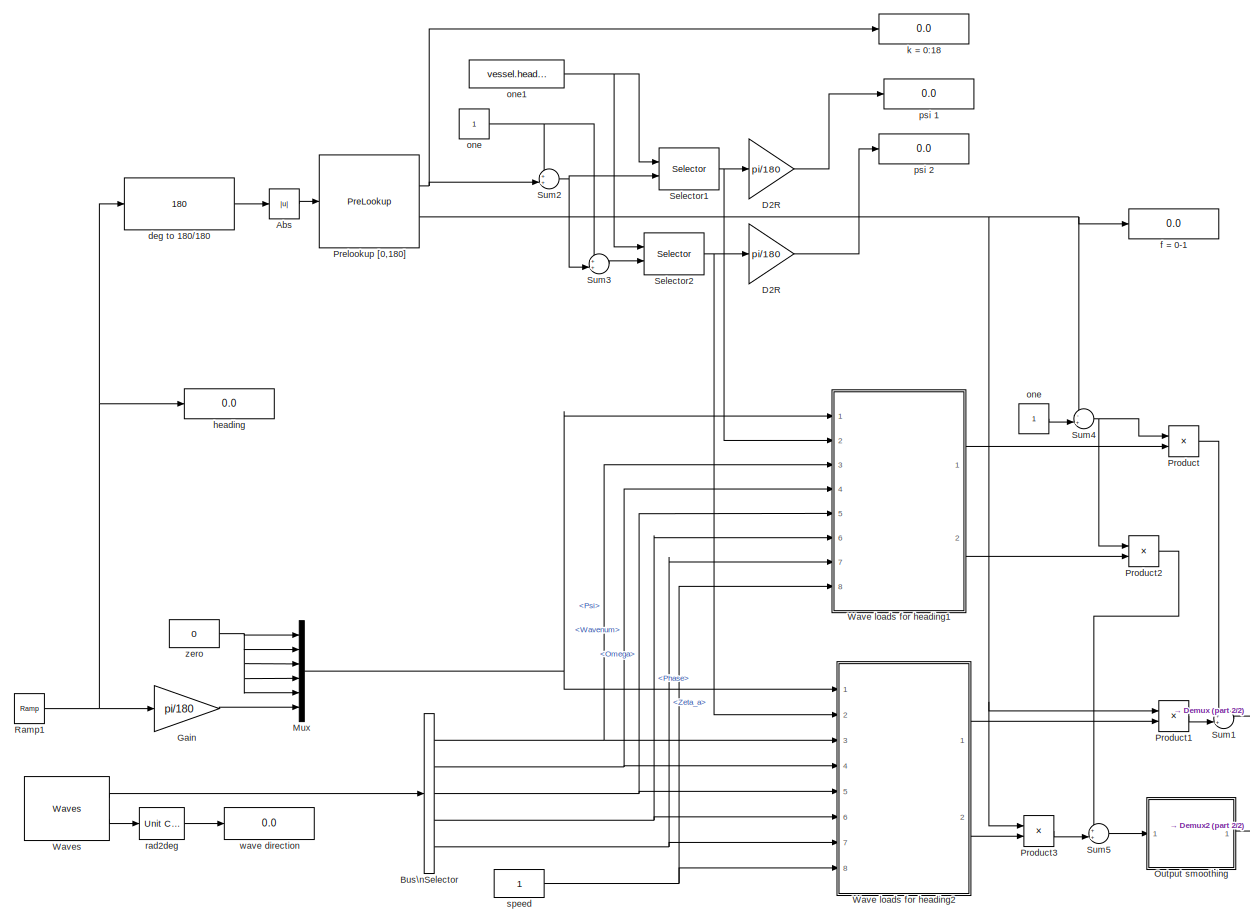
[diagram: root canvas - part 1/2, most of the canvas]
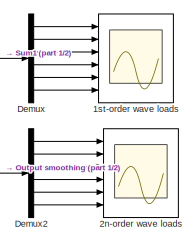
[diagram: root canvas - part 2/2, bottom right region]
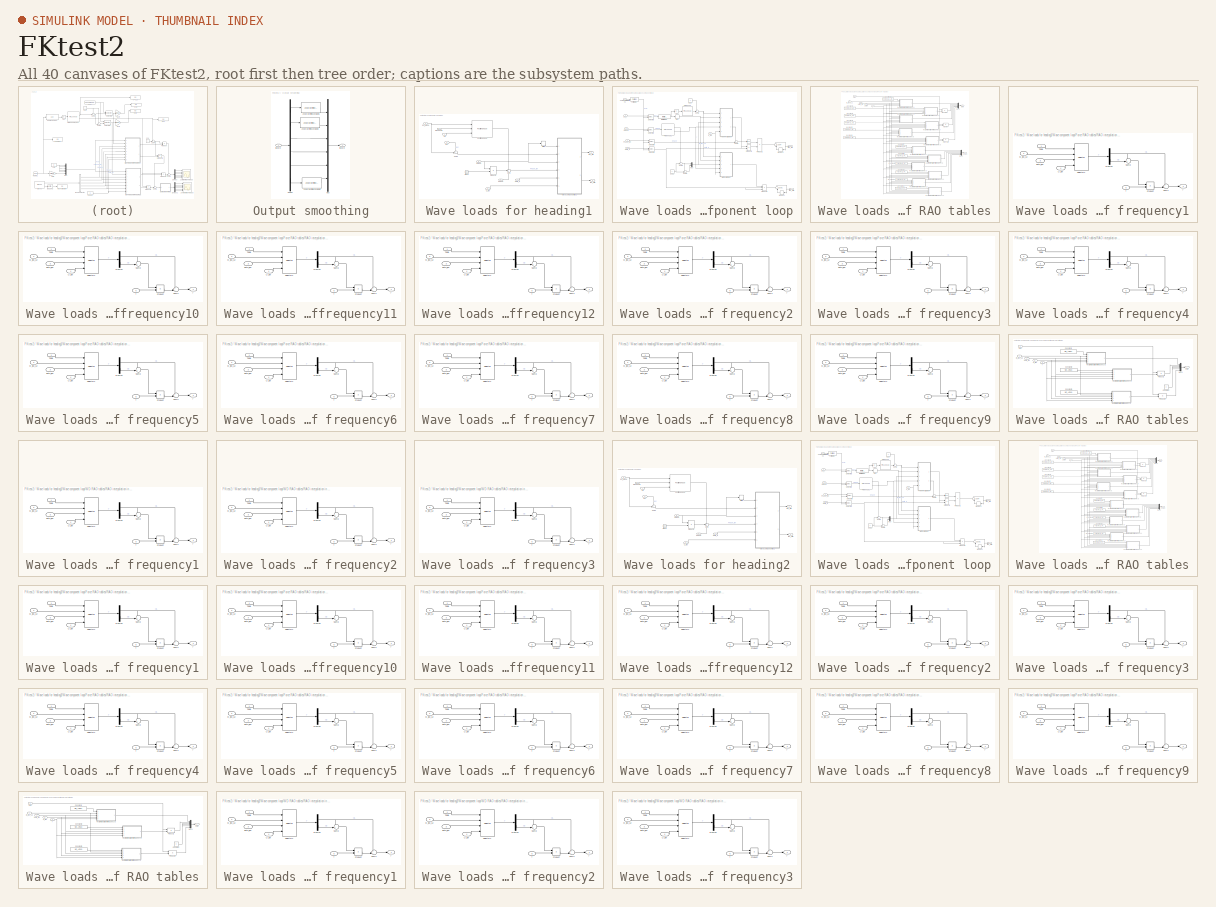
[diagram: thumbnail index - all 40 canvases of the model, root first then tree order]
MODEL FKtest2
KIND model
BLOCK [Scope] 1st-order wave loads 
  DataFormat = StructureWithTime
  Floating = off
  NumInputPorts = 6
  Ports = [6]
  SampleTime = 0
  TimeRange = 100
  YMax = 4e+006~1e+007~2e+007~1e+007~3e+008~7.5e+007
  YMin = -4e+006~-7.5e+006~-2e+007~-1e+007~-3.5e+008~-7.5e+007
BLOCK [Scope] 2n-order wave loads
  DataFormat = StructureWithTime
  Floating = off
  LimitDataPoints = off
  NumInputPorts = 6
  Ports = [6]
  SampleTime = 0
  SaveName = ScopeData1
  TimeRange = 400
  YMax = 20000~25000~1~1~1~100000
  YMin = -50000~-250000~-1~-1~-1~-900000
BLOCK [Abs] Abs
BLOCK [BusSelector] Bus\nSelector
  OutputSignals = Psi,Wavenum,Omega,Phase,Zeta_a
  Ports = [1, 5]
BLOCK [Gain] D2R
  Gain = pi/180
  OutDataTypeMode = Inherit via internal rule
  ParameterDataTypeMode = Inherit via internal rule
  SaturateOnIntegerOverflow = off
BLOCK [Gain] D2R 
  Gain = pi/180
  OutDataTypeMode = Inherit via internal rule
  ParameterDataTypeMode = Inherit via internal rule
  SaturateOnIntegerOverflow = off
BLOCK [Demux] Demux
  Outputs = 6
  Ports = [1, 6]
BLOCK [Demux] Demux2
  Outputs = 6
  Ports = [1, 6]
BLOCK [Gain] Gain
  Gain = pi/180
  OutDataTypeMode = Inherit via internal rule
  ParameterDataTypeMode = Inherit via internal rule
  SaturateOnIntegerOverflow = off
BLOCK [Mux] Mux
  DisplayOption = bar
  Inputs = 6
  Ports = [6, 1]
BLOCK [SubSystem] Output smoothing
  FunctionWithSeparateData = off
  MaskHideContents = off
  MinAlgLoopOccurrences = off
  Ports = [1, 1]
  RTWSystemCode = Auto
BLOCK [Reference] Output smoothing/2nd order time constant 1  REF=marine_gnc/Utilities/Dynamics/2nd order time constant  (lib defined in mdl_10d96c221ba8, mdl_45f1105420c6)
  FunctionWithSeparateData = off
  Ports = [1, 1]
  RTWMemSecDataConstants = Inherit from model
  RTWMemSecDataInternal = Inherit from model
  RTWMemSecDataParameters = Inherit from model
  RTWMemSecFuncExecute = Inherit from model
  RTWMemSecFuncInitTerm = Inherit from model
  ShowPortLabels = FromPortIcon
  SourceBlock = marine_gnc/Utilities/Dynamics/2nd order time constant
  SourceType = 2nd order time constant
  SystemSampleTime = -1
  T = 5
BLOCK [Reference] Output smoothing/2nd order time constant 2  REF=marine_gnc/Utilities/Dynamics/2nd order time constant  (lib defined in mdl_10d96c221ba8, mdl_45f1105420c6)
  FunctionWithSeparateData = off
  Ports = [1, 1]
  RTWMemSecDataConstants = Inherit from model
  RTWMemSecDataInternal = Inherit from model
  RTWMemSecDataParameters = Inherit from model
  RTWMemSecFuncExecute = Inherit from model
  RTWMemSecFuncInitTerm = Inherit from model
  ShowPortLabels = FromPortIcon
  SourceBlock = marine_gnc/Utilities/Dynamics/2nd order time constant
  SourceType = 2nd order time constant
  SystemSampleTime = -1
  T = 5
BLOCK [Reference] Output smoothing/2nd order time constant 6  REF=marine_gnc/Utilities/Dynamics/2nd order time constant  (lib defined in mdl_10d96c221ba8, mdl_45f1105420c6)
  FunctionWithSeparateData = off
  Ports = [1, 1]
  RTWMemSecDataConstants = Inherit from model
  RTWMemSecDataInternal = Inherit from model
  RTWMemSecDataParameters = Inherit from model
  RTWMemSecFuncExecute = Inherit from model
  RTWMemSecFuncInitTerm = Inherit from model
  ShowPortLabels = FromPortIcon
  SourceBlock = marine_gnc/Utilities/Dynamics/2nd order time constant
  SourceType = 2nd order time constant
  SystemSampleTime = -1
  T = 5
BLOCK [Demux] Output smoothing/Demux
  DisplayOption = bar
  Outputs = 6
  Ports = [1, 6]
BLOCK [Mux] Output smoothing/Mux
  DisplayOption = bar
  Inputs = 6
  Ports = [6, 1]
BLOCK [Inport] Output smoothing/tau WD
  IconDisplay = Port number
BLOCK [Outport] Output smoothing/tau WD 
  BusOutputAsStruct = off
  IconDisplay = Port number
BLOCK [PreLookup] Prelookup [0,180]
  BeginIndexSearchUsingPreviousIndexResult = on
  BreakpointsData = [0:10:180]
  IndexSearchMethod = Evenly spaced points
  Ports = [1, 2]
BLOCK [Product] Product
  CollapseMode = All dimensions
  InputSameDT = off
  OutDataTypeMode = Inherit via internal rule
  Ports = [2, 1]
  SaturateOnIntegerOverflow = off
BLOCK [Product] Product1
  CollapseMode = All dimensions
  InputSameDT = off
  OutDataTypeMode = Inherit via internal rule
  Ports = [2, 1]
  SaturateOnIntegerOverflow = off
BLOCK [Product] Product2
  CollapseMode = All dimensions
  InputSameDT = off
  OutDataTypeMode = Inherit via internal rule
  Ports = [2, 1]
  SaturateOnIntegerOverflow = off
BLOCK [Product] Product3
  CollapseMode = All dimensions
  InputSameDT = off
  OutDataTypeMode = Inherit via internal rule
  Ports = [2, 1]
  SaturateOnIntegerOverflow = off
BLOCK [Reference] Ramp1  REF=simulink/Sources/Ramp
  FunctionWithSeparateData = off
  Ports = [0, 1]
  RTWMemSecDataConstants = Inherit from model
  RTWMemSecDataInternal = Inherit from model
  RTWMemSecDataParameters = Inherit from model
  RTWMemSecFuncExecute = Inherit from model
  RTWMemSecFuncInitTerm = Inherit from model
  ShowPortLabels = FromPortIcon
  SourceBlock = simulink/Sources/Ramp
  SourceType = Ramp
  SystemSampleTime = -1
  VectorParams1D = on
  X0 = 0
  slope = 1
  start = 0
BLOCK [Selector] Selector1
  IndexOptions = Index vector (port)
  Indices = [1 3]
  OutputSizes = 1
  Ports = [2, 1]
BLOCK [Selector] Selector2
  IndexOptions = Index vector (port)
  Indices = [1 3]
  OutputSizes = 1
  Ports = [2, 1]
BLOCK [Sum] Sum1
  CollapseMode = All dimensions
  IconShape = round
  InputSameDT = off
  Inputs = ++|
  OutDataTypeMode = Inherit via internal rule
  Ports = [2, 1]
  SaturateOnIntegerOverflow = off
BLOCK [Sum] Sum2
  CollapseMode = All dimensions
  IconShape = round
  InputSameDT = off
  Inputs = ++|
  OutDataTypeMode = Inherit via internal rule
  Ports = [2, 1]
  SaturateOnIntegerOverflow = off
BLOCK [Sum] Sum3
  CollapseMode = All dimensions
  IconShape = round
  InputSameDT = off
  Inputs = ++|
  OutDataTypeMode = Inherit via internal rule
  Ports = [2, 1]
  SaturateOnIntegerOverflow = off
BLOCK [Sum] Sum4
  CollapseMode = All dimensions
  IconShape = round
  InputSameDT = off
  Inputs = -+|
  OutDataTypeMode = Inherit via internal rule
  Ports = [2, 1]
  SaturateOnIntegerOverflow = off
BLOCK [Sum] Sum5
  CollapseMode = All dimensions
  IconShape = round
  InputSameDT = off
  Inputs = ++|
  OutDataTypeMode = Inherit via internal rule
  Ports = [2, 1]
  SaturateOnIntegerOverflow = off
BLOCK [SubSystem] Wave loads for heading1
  AncestorBlock = marine_gnc/Models/Environmental\nLoads/Force RAO
  FunctionWithSeparateData = off
  MaskCallbackString = ||||||||||
  MaskDescription = Calculate the 6 degrees-of-freedom (DOF) wave-frequency excitation forces Tau_WF for a vessel from its Force Response Amplitude Operators (Force RAOs) and a sea state defined by a set of harmonic waves. The block takes the \"Waves\" bus from the MSS Waves block as input, as well as the vessel low-frequency (LF) motion in terms of the generalized position vector eta_LF and mean surge velocity U. Se...<+85ch>
  MaskEnableString = on,on,on,on,on,on,on,on,on,on,on
  MaskHelp = <b>Part of the Marine Systems Simulator: MSS</b><br>\n<br>\nCalculate the 6 degrees-of-freedom (DOF) wave-frequency excitation forces Tau_WF \nfor a vessel from its Force Response Amplitude Operators (Force RAOs) and a sea \nstate defined by a set of harmonic waves. The block takes the &quot;Waves&quot; bus from \nthe MSS Waves block as input, as well as the vessel low-frequency (LF) motion in \nt...<+6976ch>
  MaskHideContents = off
  MaskIconFrame = on
  MaskIconOpaque = on
  MaskIconRotate = none
  MaskIconUnits = autoscale
  MaskInitialization = % Add RAO values for zero frequency: use values for lowest given frequency\nif RAO_add_omega_0 > 0\n	\n	if min(ForceRAO_Freq) > 0\n				\n		ForceRAO_Freq = [0 ForceRAO_Freq];\n		for dofno = 1:6\n			ForceRAO_Amp{dofno}   = [ForceRAO_Amp{dofno}(1,:,:);   ForceRAO_Amp{dofno}];\n			ForceRAO_Phase{dofno} = [ForceRAO_Phase{dofno}(1,:,:); ForceRAO_Phase{dofno}];\n        end\n\n    end\n    \n	if min(WD_F...<+921ch>
  MaskPromptString = Vector of frequencies ForceRAO_Freq (rad/s)|Vector of frequencies WD_Freq (rad/s)|Vector of directions RAO_Dir (rad)|Vector of velocities RAO_Vel (m/s)|6DOF Cell array with tables of Amplitudes ForceRAO_Amp|6DOF Cell array with tables of Phases ForceRAO_Phase (rad)|6DOF Cell array with tables of Amplitudes WD_Amp|Add asymptotic RAO values for omega = 0|Add asymptotic RAO values for omega = inf|Spe...<+80ch>
  MaskStyleString = edit,edit,edit,edit,edit,edit,edit,checkbox,checkbox,checkbox,edit
  MaskTabNameString = ,,,,,,,,,,
  MaskToolTipString = on,on,on,on,on,on,on,on,on,on,on
  MaskTunableValueString = on,on,on,on,on,on,on,on,on,on,on
  MaskType = Force RAO
  MaskValueString = vessel.forceRAO.w|vessel.driftfrc.w|vessel.headings|vessel.velocities|vessel.forceRAO.amp|vessel.forceRAO.phase|vessel.driftfrc.amp|off|off|off|1
  MaskVarAliasString = ,,,,,,,,,,
  MaskVariables = ForceRAO_Freq=@1;WD_Freq=@2;RAO_Dir=@3;RAO_Vel=@4;ForceRAO_Amp=@5;ForceRAO_Phase=@6;WD_Amp=@7;RAO_add_omega_0=@8;RAO_add_omega_inf=@9;RAO_speed_backlash_flag=@10;RAO_speed_back=@11;
  MaskVisibilityString = on,on,on,on,on,on,on,on,on,on,on
  MinAlgLoopOccurrences = off
  Ports = [8, 2]
  RTWSystemCode = Auto
BLOCK [Clock] Wave loads for heading1/Clock
  Decimation = 10
BLOCK [Inport] Wave loads for heading1/Omega
  IconDisplay = Port number
  Port = 5
BLOCK [Inport] Wave loads for heading1/Phase
  IconDisplay = Port number
  Port = 6
BLOCK [Reference] Wave loads for heading1/Position phase  REF=marine_gnc/Models/Environmental\nLoads/Utilities/Position phase  (lib defined in mdl_10d96c221ba8, mdl_45f1105420c6)
  FunctionWithSeparateData = off
  Ports = [3, 1]
  RTWMemSecDataConstants = Inherit from model
  RTWMemSecDataInternal = Inherit from model
  RTWMemSecDataParameters = Inherit from model
  RTWMemSecFuncExecute = Inherit from model
  RTWMemSecFuncInitTerm = Inherit from model
  ShowPortLabels = FromPortIcon
  SourceBlock = marine_gnc/Models/Environmental\nLoads/Utilities/Position phase
  SourceType = Position Phase
  SystemSampleTime = -1
BLOCK [Product] Wave loads for heading1/Product1
  CollapseMode = All dimensions
  InputSameDT = off
  Inputs = **
  Ports = [2, 1]
  RndMeth = Floor
BLOCK [Sum] Wave loads for heading1/Sum
  CollapseMode = All dimensions
  IconShape = round
  InputSameDT = off
  Inputs = -++
  OutDataTypeMode = Inherit via internal rule
  Ports = [3, 1]
BLOCK [Sum] Wave loads for heading1/Sum1
  CollapseMode = All dimensions
  IconShape = round
  InputSameDT = off
  Inputs = -+|
  OutDataTypeMode = Inherit via internal rule
  Ports = [2, 1]
  SaturateOnIntegerOverflow = off
BLOCK [Inport] Wave loads for heading1/U_idx
  IconDisplay = Port number
  Port = 8
BLOCK [SubSystem] Wave loads for heading1/Wave component loop
  FunctionWithSeparateData = off
  MaskHideContents = off
  MinAlgLoopOccurrences = off
  Ports = [6, 2]
  RTWSystemCode = Auto
  TreatAsAtomicUnit = on
BLOCK [Trigonometry] Wave loads for heading1/Wave component loop/                
  Ports = [1, 1]
BLOCK [Abs] Wave loads for heading1/Wave component loop/Abs
BLOCK [ForIterator] Wave loads for heading1/Wave component loop/For Iterator
  IterationSource = external
  IterationVariableDataType = double
  Ports = [1, 1]
  ResetStates = reset
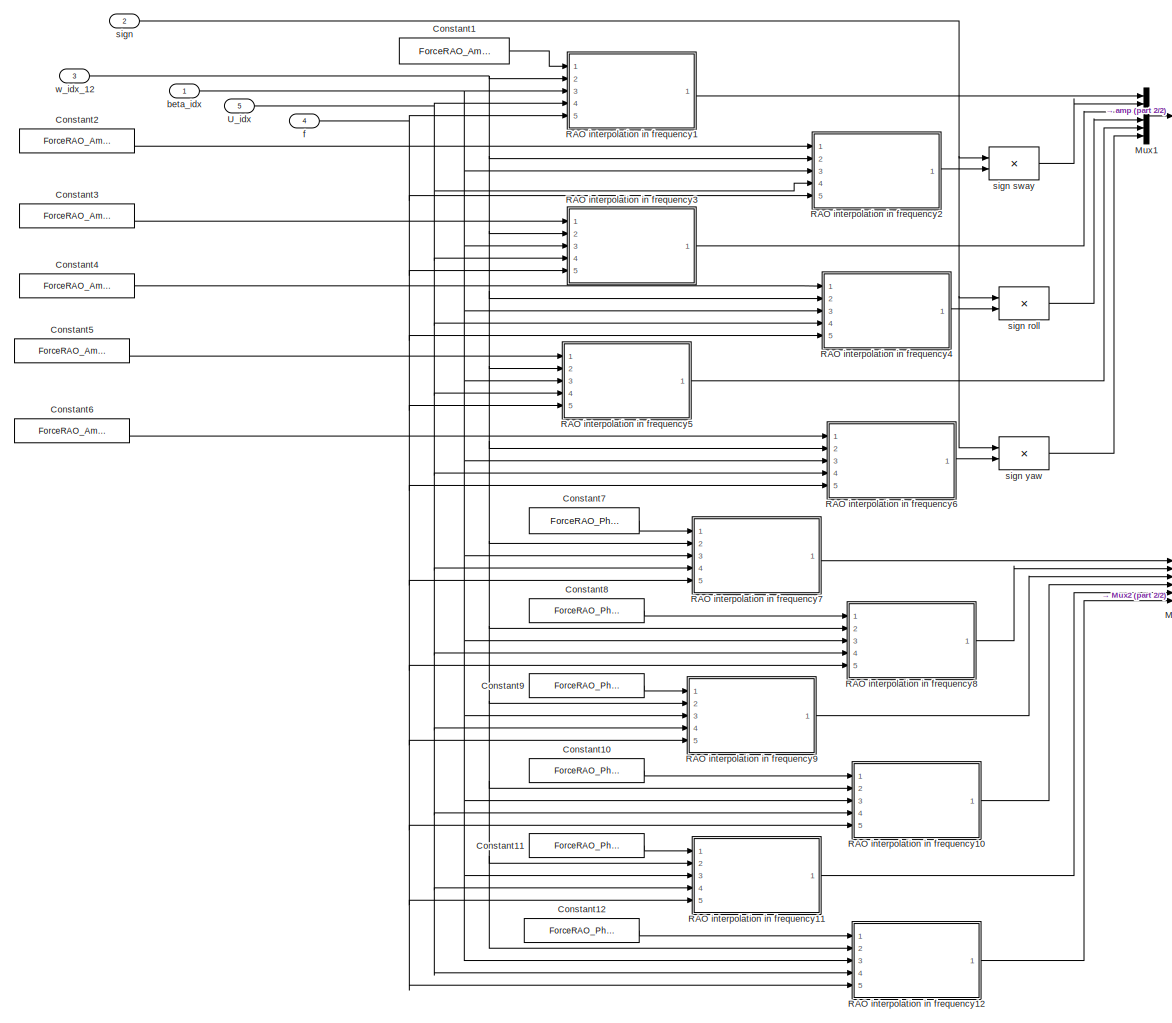
[diagram: Wave loads for heading1/Wave component loop/Force RAO tables - part 1/2, most of the canvas]
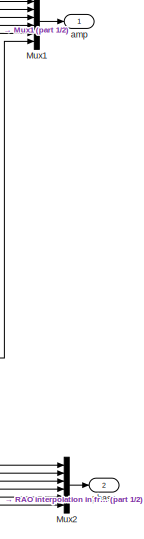
[diagram: Wave loads for heading1/Wave component loop/Force RAO tables - part 2/2, middle right region]
BLOCK [SubSystem] Wave loads for heading1/Wave component loop/Force RAO tables
  AncestorBlock = marine_gnc/Models/Environmental\nLoads/Utilities/RAO tables
  FunctionWithSeparateData = off
  MaskCallbackString = ||||
  MaskDescription = Perform 3D table lookup in 6DOF RAO amplitudes and phases, using the relative wave heading psi_r, wave frequency omega and vessel velocity vel as inputs. See documentation of the Motion RAO block or Force RAO block for details. A warning is issued if the input is outside the range spanned by the RAOs.\n\nCopyright (C) NTNU 2005\n\nAuthor: Oyvind N. Smogeli, 2005-05-03  <repeated x4 — deduplicated; at blocks: Force RAO tables, WD RAO tables>
  MaskEnableString = on,on,on,on,on
  MaskHideContents = off
  MaskIconFrame = on
  MaskIconOpaque = on
  MaskIconRotate = none
  MaskIconUnits = autoscale
  MaskPromptString = Vector of frequencies (rad/s)|Vector of directions (rad)|Vector of velocities (m/s)|6DOF Cell array with tables of Amplitudes|6DOF Cell array with tables of Phases (rad)
  MaskStyleString = edit,edit,edit,edit,edit
  MaskTabNameString = ,,,,
  MaskToolTipString = on,on,on,on,on
  MaskTunableValueString = on,on,on,on,on
  MaskType = RAO table lookup
  MaskValueString = ForceRAO_Freq|RAO_Dir|RAO_Vel|ForceRAO_Amp|ForceRAO_Phase
  MaskVarAliasString = ,,,,
  MaskVariables = RAO_Freq=@1;RAO_Dir=@2;RAO_Vel=@3;RAO_Amp=@4;RAO_Phase=@5;
  MaskVisibilityString = on,on,on,on,on
  MinAlgLoopOccurrences = off
  Ports = [5, 2]
  RTWSystemCode = Auto
BLOCK [Constant] Wave loads for heading1/Wave component loop/Force RAO tables/Constant1
  Value = ForceRAO_Amp{1}
BLOCK [Constant] Wave loads for heading1/Wave component loop/Force RAO tables/Constant10
  Value = ForceRAO_Phase{4}
BLOCK [Constant] Wave loads for heading1/Wave component loop/Force RAO tables/Constant11
  Value = ForceRAO_Phase{5}
BLOCK [Constant] Wave loads for heading1/Wave component loop/Force RAO tables/Constant12
  Value = ForceRAO_Phase{6}
BLOCK [Constant] Wave loads for heading1/Wave component loop/Force RAO tables/Constant2
  Value = ForceRAO_Amp{2}
BLOCK [Constant] Wave loads for heading1/Wave component loop/Force RAO tables/Constant3
  Value = ForceRAO_Amp{3}
BLOCK [Constant] Wave loads for heading1/Wave component loop/Force RAO tables/Constant4
  Value = ForceRAO_Amp{4}
BLOCK [Constant] Wave loads for heading1/Wave component loop/Force RAO tables/Constant5
  Value = ForceRAO_Amp{5}
BLOCK [Constant] Wave loads for heading1/Wave component loop/Force RAO tables/Constant6
  Value = ForceRAO_Amp{6}
BLOCK [Constant] Wave loads for heading1/Wave component loop/Force RAO tables/Constant7
  Value = ForceRAO_Phase{1}
BLOCK [Constant] Wave loads for heading1/Wave component loop/Force RAO tables/Constant8
  Value = ForceRAO_Phase{2}
BLOCK [Constant] Wave loads for heading1/Wave component loop/Force RAO tables/Constant9
  Value = ForceRAO_Phase{3}
BLOCK [Mux] Wave loads for heading1/Wave component loop/Force RAO tables/Mux1
  DisplayOption = bar
  Inputs = 6
  Ports = [6, 1]
BLOCK [Mux] Wave loads for heading1/Wave component loop/Force RAO tables/Mux2
  DisplayOption = bar
  Inputs = 6
  Ports = [6, 1]
BLOCK [SubSystem] Wave loads for heading1/Wave component loop/Force RAO tables/RAO interpolation in frequency1
  FunctionWithSeparateData = off
  MaskHideContents = off
  MinAlgLoopOccurrences = off
  Ports = [5, 1]
  RTWSystemCode = Auto
BLOCK [Demux] Wave loads for heading1/Wave component loop/Force RAO tables/RAO interpolation in frequency1/Demux
  DisplayOption = bar
  Outputs = 2
  Ports = [1, 2]
BLOCK [Product] Wave loads for heading1/Wave component loop/Force RAO tables/RAO interpolation in frequency1/Product
  CollapseMode = All dimensions
  InputSameDT = off
  OutDataTypeMode = Inherit via internal rule
  Ports = [2, 1]
  SaturateOnIntegerOverflow = off
BLOCK [Selector] Wave loads for heading1/Wave component loop/Force RAO tables/RAO interpolation in frequency1/Selector1
  IndexOptions = Index vector (port),Index vector (port),Index vector (port)
  Indices = [1 3],1,1
  NumberOfDimensions = 3
  OutputSizes = 1,1,1
  Ports = [4, 1]
BLOCK [Sum] Wave loads for heading1/Wave component loop/Force RAO tables/RAO interpolation in frequency1/Sum3
  CollapseMode = All dimensions
  IconShape = round
  InputSameDT = off
  Inputs = -+|
  OutDataTypeMode = Inherit via internal rule
  Ports = [2, 1]
  SaturateOnIntegerOverflow = off
BLOCK [Sum] Wave loads for heading1/Wave component loop/Force RAO tables/RAO interpolation in frequency1/Sum4
  CollapseMode = All dimensions
  IconShape = round
  InputSameDT = off
  Inputs = ++|
  OutDataTypeMode = Inherit via internal rule
  Ports = [2, 1]
  SaturateOnIntegerOverflow = off
BLOCK [Inport] Wave loads for heading1/Wave component loop/Force RAO tables/RAO interpolation in frequency1/Table
  IconDisplay = Port number
BLOCK [Inport] Wave loads for heading1/Wave component loop/Force RAO tables/RAO interpolation in frequency1/U_idx
  IconDisplay = Port number
  Port = 4
BLOCK [Inport] Wave loads for heading1/Wave component loop/Force RAO tables/RAO interpolation in frequency1/beta_idx
  IconDisplay = Port number
  Port = 3
BLOCK [Inport] Wave loads for heading1/Wave component loop/Force RAO tables/RAO interpolation in frequency1/f
  IconDisplay = Port number
  Port = 5
BLOCK [Inport] Wave loads for heading1/Wave component loop/Force RAO tables/RAO interpolation in frequency1/w_idx_12
  IconDisplay = Port number
  Port = 2
BLOCK [Outport] Wave loads for heading1/Wave component loop/Force RAO tables/RAO interpolation in frequency1/y
  BusOutputAsStruct = off
  IconDisplay = Port number
BLOCK [SubSystem] Wave loads for heading1/Wave component loop/Force RAO tables/RAO interpolation in frequency10
  FunctionWithSeparateData = off
  MaskHideContents = off
  MinAlgLoopOccurrences = off
  Ports = [5, 1]
  RTWSystemCode = Auto
BLOCK [Demux] Wave loads for heading1/Wave component loop/Force RAO tables/RAO interpolation in frequency10/Demux
  DisplayOption = bar
  Outputs = 2
  Ports = [1, 2]
BLOCK [Product] Wave loads for heading1/Wave component loop/Force RAO tables/RAO interpolation in frequency10/Product
  CollapseMode = All dimensions
  InputSameDT = off
  OutDataTypeMode = Inherit via internal rule
  Ports = [2, 1]
  SaturateOnIntegerOverflow = off
BLOCK [Selector] Wave loads for heading1/Wave component loop/Force RAO tables/RAO interpolation in frequency10/Selector1
  IndexOptions = Index vector (port),Index vector (port),Index vector (port)
  Indices = [1 3],1,1
  NumberOfDimensions = 3
  OutputSizes = 1,1,1
  Ports = [4, 1]
BLOCK [Sum] Wave loads for heading1/Wave component loop/Force RAO tables/RAO interpolation in frequency10/Sum3
  CollapseMode = All dimensions
  IconShape = round
  InputSameDT = off
  Inputs = -+|
  OutDataTypeMode = Inherit via internal rule
  Ports = [2, 1]
  SaturateOnIntegerOverflow = off
BLOCK [Sum] Wave loads for heading1/Wave component loop/Force RAO tables/RAO interpolation in frequency10/Sum4
  CollapseMode = All dimensions
  IconShape = round
  InputSameDT = off
  Inputs = ++|
  OutDataTypeMode = Inherit via internal rule
  Ports = [2, 1]
  SaturateOnIntegerOverflow = off
BLOCK [Inport] Wave loads for heading1/Wave component loop/Force RAO tables/RAO interpolation in frequency10/Table
  IconDisplay = Port number
BLOCK [Inport] Wave loads for heading1/Wave component loop/Force RAO tables/RAO interpolation in frequency10/U_idx
  IconDisplay = Port number
  Port = 4
BLOCK [Inport] Wave loads for heading1/Wave component loop/Force RAO tables/RAO interpolation in frequency10/beta_idx
  IconDisplay = Port number
  Port = 3
BLOCK [Inport] Wave loads for heading1/Wave component loop/Force RAO tables/RAO interpolation in frequency10/f
  IconDisplay = Port number
  Port = 5
BLOCK [Inport] Wave loads for heading1/Wave component loop/Force RAO tables/RAO interpolation in frequency10/w_idx_12
  IconDisplay = Port number
  Port = 2
BLOCK [Outport] Wave loads for heading1/Wave component loop/Force RAO tables/RAO interpolation in frequency10/y
  BusOutputAsStruct = off
  IconDisplay = Port number
BLOCK [SubSystem] Wave loads for heading1/Wave component loop/Force RAO tables/RAO interpolation in frequency11
  FunctionWithSeparateData = off
  MaskHideContents = off
  MinAlgLoopOccurrences = off
  Ports = [5, 1]
  RTWSystemCode = Auto
BLOCK [Demux] Wave loads for heading1/Wave component loop/Force RAO tables/RAO interpolation in frequency11/Demux
  DisplayOption = bar
  Outputs = 2
  Ports = [1, 2]
BLOCK [Product] Wave loads for heading1/Wave component loop/Force RAO tables/RAO interpolation in frequency11/Product
  CollapseMode = All dimensions
  InputSameDT = off
  OutDataTypeMode = Inherit via internal rule
  Ports = [2, 1]
  SaturateOnIntegerOverflow = off
BLOCK [Selector] Wave loads for heading1/Wave component loop/Force RAO tables/RAO interpolation in frequency11/Selector1
  IndexOptions = Index vector (port),Index vector (port),Index vector (port)
  Indices = [1 3],1,1
  NumberOfDimensions = 3
  OutputSizes = 1,1,1
  Ports = [4, 1]
BLOCK [Sum] Wave loads for heading1/Wave component loop/Force RAO tables/RAO interpolation in frequency11/Sum3
  CollapseMode = All dimensions
  IconShape = round
  InputSameDT = off
  Inputs = -+|
  OutDataTypeMode = Inherit via internal rule
  Ports = [2, 1]
  SaturateOnIntegerOverflow = off
BLOCK [Sum] Wave loads for heading1/Wave component loop/Force RAO tables/RAO interpolation in frequency11/Sum4
  CollapseMode = All dimensions
  IconShape = round
  InputSameDT = off
  Inputs = ++|
  OutDataTypeMode = Inherit via internal rule
  Ports = [2, 1]
  SaturateOnIntegerOverflow = off
BLOCK [Inport] Wave loads for heading1/Wave component loop/Force RAO tables/RAO interpolation in frequency11/Table
  IconDisplay = Port number
BLOCK [Inport] Wave loads for heading1/Wave component loop/Force RAO tables/RAO interpolation in frequency11/U_idx
  IconDisplay = Port number
  Port = 4
BLOCK [Inport] Wave loads for heading1/Wave component loop/Force RAO tables/RAO interpolation in frequency11/beta_idx
  IconDisplay = Port number
  Port = 3
BLOCK [Inport] Wave loads for heading1/Wave component loop/Force RAO tables/RAO interpolation in frequency11/f
  IconDisplay = Port number
  Port = 5
BLOCK [Inport] Wave loads for heading1/Wave component loop/Force RAO tables/RAO interpolation in frequency11/w_idx_12
  IconDisplay = Port number
  Port = 2
BLOCK [Outport] Wave loads for heading1/Wave component loop/Force RAO tables/RAO interpolation in frequency11/y
  BusOutputAsStruct = off
  IconDisplay = Port number
BLOCK [SubSystem] Wave loads for heading1/Wave component loop/Force RAO tables/RAO interpolation in frequency12
  FunctionWithSeparateData = off
  MaskHideContents = off
  MinAlgLoopOccurrences = off
  Ports = [5, 1]
  RTWSystemCode = Auto
BLOCK [Demux] Wave loads for heading1/Wave component loop/Force RAO tables/RAO interpolation in frequency12/Demux
  DisplayOption = bar
  Outputs = 2
  Ports = [1, 2]
BLOCK [Product] Wave loads for heading1/Wave component loop/Force RAO tables/RAO interpolation in frequency12/Product
  CollapseMode = All dimensions
  InputSameDT = off
  OutDataTypeMode = Inherit via internal rule
  Ports = [2, 1]
  SaturateOnIntegerOverflow = off
BLOCK [Selector] Wave loads for heading1/Wave component loop/Force RAO tables/RAO interpolation in frequency12/Selector1
  IndexOptions = Index vector (port),Index vector (port),Index vector (port)
  Indices = [1 3],1,1
  NumberOfDimensions = 3
  OutputSizes = 1,1,1
  Ports = [4, 1]
BLOCK [Sum] Wave loads for heading1/Wave component loop/Force RAO tables/RAO interpolation in frequency12/Sum3
  CollapseMode = All dimensions
  IconShape = round
  InputSameDT = off
  Inputs = -+|
  OutDataTypeMode = Inherit via internal rule
  Ports = [2, 1]
  SaturateOnIntegerOverflow = off
BLOCK [Sum] Wave loads for heading1/Wave component loop/Force RAO tables/RAO interpolation in frequency12/Sum4
  CollapseMode = All dimensions
  IconShape = round
  InputSameDT = off
  Inputs = ++|
  OutDataTypeMode = Inherit via internal rule
  Ports = [2, 1]
  SaturateOnIntegerOverflow = off
BLOCK [Inport] Wave loads for heading1/Wave component loop/Force RAO tables/RAO interpolation in frequency12/Table
  IconDisplay = Port number
BLOCK [Inport] Wave loads for heading1/Wave component loop/Force RAO tables/RAO interpolation in frequency12/U_idx
  IconDisplay = Port number
  Port = 4
BLOCK [Inport] Wave loads for heading1/Wave component loop/Force RAO tables/RAO interpolation in frequency12/beta_idx
  IconDisplay = Port number
  Port = 3
BLOCK [Inport] Wave loads for heading1/Wave component loop/Force RAO tables/RAO interpolation in frequency12/f
  IconDisplay = Port number
  Port = 5
BLOCK [Inport] Wave loads for heading1/Wave component loop/Force RAO tables/RAO interpolation in frequency12/w_idx_12
  IconDisplay = Port number
  Port = 2
BLOCK [Outport] Wave loads for heading1/Wave component loop/Force RAO tables/RAO interpolation in frequency12/y
  BusOutputAsStruct = off
  IconDisplay = Port number
BLOCK [SubSystem] Wave loads for heading1/Wave component loop/Force RAO tables/RAO interpolation in frequency2
  FunctionWithSeparateData = off
  MaskHideContents = off
  MinAlgLoopOccurrences = off
  Ports = [5, 1]
  RTWSystemCode = Auto
BLOCK [Demux] Wave loads for heading1/Wave component loop/Force RAO tables/RAO interpolation in frequency2/Demux
  DisplayOption = bar
  Outputs = 2
  Ports = [1, 2]
BLOCK [Product] Wave loads for heading1/Wave component loop/Force RAO tables/RAO interpolation in frequency2/Product
  CollapseMode = All dimensions
  InputSameDT = off
  OutDataTypeMode = Inherit via internal rule
  Ports = [2, 1]
  SaturateOnIntegerOverflow = off
BLOCK [Selector] Wave loads for heading1/Wave component loop/Force RAO tables/RAO interpolation in frequency2/Selector1
  IndexOptions = Index vector (port),Index vector (port),Index vector (port)
  Indices = [1 3],1,1
  NumberOfDimensions = 3
  OutputSizes = 1,1,1
  Ports = [4, 1]
BLOCK [Sum] Wave loads for heading1/Wave component loop/Force RAO tables/RAO interpolation in frequency2/Sum3
  CollapseMode = All dimensions
  IconShape = round
  InputSameDT = off
  Inputs = -+|
  OutDataTypeMode = Inherit via internal rule
  Ports = [2, 1]
  SaturateOnIntegerOverflow = off
BLOCK [Sum] Wave loads for heading1/Wave component loop/Force RAO tables/RAO interpolation in frequency2/Sum4
  CollapseMode = All dimensions
  IconShape = round
  InputSameDT = off
  Inputs = ++|
  OutDataTypeMode = Inherit via internal rule
  Ports = [2, 1]
  SaturateOnIntegerOverflow = off
BLOCK [Inport] Wave loads for heading1/Wave component loop/Force RAO tables/RAO interpolation in frequency2/Table
  IconDisplay = Port number
BLOCK [Inport] Wave loads for heading1/Wave component loop/Force RAO tables/RAO interpolation in frequency2/U_idx
  IconDisplay = Port number
  Port = 4
BLOCK [Inport] Wave loads for heading1/Wave component loop/Force RAO tables/RAO interpolation in frequency2/beta_idx
  IconDisplay = Port number
  Port = 3
BLOCK [Inport] Wave loads for heading1/Wave component loop/Force RAO tables/RAO interpolation in frequency2/f
  IconDisplay = Port number
  Port = 5
BLOCK [Inport] Wave loads for heading1/Wave component loop/Force RAO tables/RAO interpolation in frequency2/w_idx_12
  IconDisplay = Port number
  Port = 2
BLOCK [Outport] Wave loads for heading1/Wave component loop/Force RAO tables/RAO interpolation in frequency2/y
  BusOutputAsStruct = off
  IconDisplay = Port number
BLOCK [SubSystem] Wave loads for heading1/Wave component loop/Force RAO tables/RAO interpolation in frequency3
  FunctionWithSeparateData = off
  MaskHideContents = off
  MinAlgLoopOccurrences = off
  Ports = [5, 1]
  RTWSystemCode = Auto
BLOCK [Demux] Wave loads for heading1/Wave component loop/Force RAO tables/RAO interpolation in frequency3/Demux
  DisplayOption = bar
  Outputs = 2
  Ports = [1, 2]
BLOCK [Product] Wave loads for heading1/Wave component loop/Force RAO tables/RAO interpolation in frequency3/Product
  CollapseMode = All dimensions
  InputSameDT = off
  OutDataTypeMode = Inherit via internal rule
  Ports = [2, 1]
  SaturateOnIntegerOverflow = off
BLOCK [Selector] Wave loads for heading1/Wave component loop/Force RAO tables/RAO interpolation in frequency3/Selector1
  IndexOptions = Index vector (port),Index vector (port),Index vector (port)
  Indices = [1 3],1,1
  NumberOfDimensions = 3
  OutputSizes = 1,1,1
  Ports = [4, 1]
BLOCK [Sum] Wave loads for heading1/Wave component loop/Force RAO tables/RAO interpolation in frequency3/Sum3
  CollapseMode = All dimensions
  IconShape = round
  InputSameDT = off
  Inputs = -+|
  OutDataTypeMode = Inherit via internal rule
  Ports = [2, 1]
  SaturateOnIntegerOverflow = off
BLOCK [Sum] Wave loads for heading1/Wave component loop/Force RAO tables/RAO interpolation in frequency3/Sum4
  CollapseMode = All dimensions
  IconShape = round
  InputSameDT = off
  Inputs = ++|
  OutDataTypeMode = Inherit via internal rule
  Ports = [2, 1]
  SaturateOnIntegerOverflow = off
BLOCK [Inport] Wave loads for heading1/Wave component loop/Force RAO tables/RAO interpolation in frequency3/Table
  IconDisplay = Port number
BLOCK [Inport] Wave loads for heading1/Wave component loop/Force RAO tables/RAO interpolation in frequency3/U_idx
  IconDisplay = Port number
  Port = 4
BLOCK [Inport] Wave loads for heading1/Wave component loop/Force RAO tables/RAO interpolation in frequency3/beta_idx
  IconDisplay = Port number
  Port = 3
BLOCK [Inport] Wave loads for heading1/Wave component loop/Force RAO tables/RAO interpolation in frequency3/f
  IconDisplay = Port number
  Port = 5
BLOCK [Inport] Wave loads for heading1/Wave component loop/Force RAO tables/RAO interpolation in frequency3/w_idx_12
  IconDisplay = Port number
  Port = 2
BLOCK [Outport] Wave loads for heading1/Wave component loop/Force RAO tables/RAO interpolation in frequency3/y
  BusOutputAsStruct = off
  IconDisplay = Port number
BLOCK [SubSystem] Wave loads for heading1/Wave component loop/Force RAO tables/RAO interpolation in frequency4
  FunctionWithSeparateData = off
  MaskHideContents = off
  MinAlgLoopOccurrences = off
  Ports = [5, 1]
  RTWSystemCode = Auto
BLOCK [Demux] Wave loads for heading1/Wave component loop/Force RAO tables/RAO interpolation in frequency4/Demux
  DisplayOption = bar
  Outputs = 2
  Ports = [1, 2]
BLOCK [Product] Wave loads for heading1/Wave component loop/Force RAO tables/RAO interpolation in frequency4/Product
  CollapseMode = All dimensions
  InputSameDT = off
  OutDataTypeMode = Inherit via internal rule
  Ports = [2, 1]
  SaturateOnIntegerOverflow = off
BLOCK [Selector] Wave loads for heading1/Wave component loop/Force RAO tables/RAO interpolation in frequency4/Selector1
  IndexOptions = Index vector (port),Index vector (port),Index vector (port)
  Indices = [1 3],1,1
  NumberOfDimensions = 3
  OutputSizes = 1,1,1
  Ports = [4, 1]
BLOCK [Sum] Wave loads for heading1/Wave component loop/Force RAO tables/RAO interpolation in frequency4/Sum3
  CollapseMode = All dimensions
  IconShape = round
  InputSameDT = off
  Inputs = -+|
  OutDataTypeMode = Inherit via internal rule
  Ports = [2, 1]
  SaturateOnIntegerOverflow = off
BLOCK [Sum] Wave loads for heading1/Wave component loop/Force RAO tables/RAO interpolation in frequency4/Sum4
  CollapseMode = All dimensions
  IconShape = round
  InputSameDT = off
  Inputs = ++|
  OutDataTypeMode = Inherit via internal rule
  Ports = [2, 1]
  SaturateOnIntegerOverflow = off
BLOCK [Inport] Wave loads for heading1/Wave component loop/Force RAO tables/RAO interpolation in frequency4/Table
  IconDisplay = Port number
BLOCK [Inport] Wave loads for heading1/Wave component loop/Force RAO tables/RAO interpolation in frequency4/U_idx
  IconDisplay = Port number
  Port = 4
BLOCK [Inport] Wave loads for heading1/Wave component loop/Force RAO tables/RAO interpolation in frequency4/beta_idx
  IconDisplay = Port number
  Port = 3
BLOCK [Inport] Wave loads for heading1/Wave component loop/Force RAO tables/RAO interpolation in frequency4/f
  IconDisplay = Port number
  Port = 5
BLOCK [Inport] Wave loads for heading1/Wave component loop/Force RAO tables/RAO interpolation in frequency4/w_idx_12
  IconDisplay = Port number
  Port = 2
BLOCK [Outport] Wave loads for heading1/Wave component loop/Force RAO tables/RAO interpolation in frequency4/y
  BusOutputAsStruct = off
  IconDisplay = Port number
BLOCK [SubSystem] Wave loads for heading1/Wave component loop/Force RAO tables/RAO interpolation in frequency5
  FunctionWithSeparateData = off
  MaskHideContents = off
  MinAlgLoopOccurrences = off
  Ports = [5, 1]
  RTWSystemCode = Auto
BLOCK [Demux] Wave loads for heading1/Wave component loop/Force RAO tables/RAO interpolation in frequency5/Demux
  DisplayOption = bar
  Outputs = 2
  Ports = [1, 2]
BLOCK [Product] Wave loads for heading1/Wave component loop/Force RAO tables/RAO interpolation in frequency5/Product
  CollapseMode = All dimensions
  InputSameDT = off
  OutDataTypeMode = Inherit via internal rule
  Ports = [2, 1]
  SaturateOnIntegerOverflow = off
BLOCK [Selector] Wave loads for heading1/Wave component loop/Force RAO tables/RAO interpolation in frequency5/Selector1
  IndexOptions = Index vector (port),Index vector (port),Index vector (port)
  Indices = [1 3],1,1
  NumberOfDimensions = 3
  OutputSizes = 1,1,1
  Ports = [4, 1]
BLOCK [Sum] Wave loads for heading1/Wave component loop/Force RAO tables/RAO interpolation in frequency5/Sum3
  CollapseMode = All dimensions
  IconShape = round
  InputSameDT = off
  Inputs = -+|
  OutDataTypeMode = Inherit via internal rule
  Ports = [2, 1]
  SaturateOnIntegerOverflow = off
BLOCK [Sum] Wave loads for heading1/Wave component loop/Force RAO tables/RAO interpolation in frequency5/Sum4
  CollapseMode = All dimensions
  IconShape = round
  InputSameDT = off
  Inputs = ++|
  OutDataTypeMode = Inherit via internal rule
  Ports = [2, 1]
  SaturateOnIntegerOverflow = off
BLOCK [Inport] Wave loads for heading1/Wave component loop/Force RAO tables/RAO interpolation in frequency5/Table
  IconDisplay = Port number
BLOCK [Inport] Wave loads for heading1/Wave component loop/Force RAO tables/RAO interpolation in frequency5/U_idx
  IconDisplay = Port number
  Port = 4
BLOCK [Inport] Wave loads for heading1/Wave component loop/Force RAO tables/RAO interpolation in frequency5/beta_idx
  IconDisplay = Port number
  Port = 3
BLOCK [Inport] Wave loads for heading1/Wave component loop/Force RAO tables/RAO interpolation in frequency5/f
  IconDisplay = Port number
  Port = 5
BLOCK [Inport] Wave loads for heading1/Wave component loop/Force RAO tables/RAO interpolation in frequency5/w_idx_12
  IconDisplay = Port number
  Port = 2
BLOCK [Outport] Wave loads for heading1/Wave component loop/Force RAO tables/RAO interpolation in frequency5/y
  BusOutputAsStruct = off
  IconDisplay = Port number
BLOCK [SubSystem] Wave loads for heading1/Wave component loop/Force RAO tables/RAO interpolation in frequency6
  FunctionWithSeparateData = off
  MaskHideContents = off
  MinAlgLoopOccurrences = off
  Ports = [5, 1]
  RTWSystemCode = Auto
BLOCK [Demux] Wave loads for heading1/Wave component loop/Force RAO tables/RAO interpolation in frequency6/Demux
  DisplayOption = bar
  Outputs = 2
  Ports = [1, 2]
BLOCK [Product] Wave loads for heading1/Wave component loop/Force RAO tables/RAO interpolation in frequency6/Product
  CollapseMode = All dimensions
  InputSameDT = off
  OutDataTypeMode = Inherit via internal rule
  Ports = [2, 1]
  SaturateOnIntegerOverflow = off
BLOCK [Selector] Wave loads for heading1/Wave component loop/Force RAO tables/RAO interpolation in frequency6/Selector1
  IndexOptions = Index vector (port),Index vector (port),Index vector (port)
  Indices = [1 3],1,1
  NumberOfDimensions = 3
  OutputSizes = 1,1,1
  Ports = [4, 1]
BLOCK [Sum] Wave loads for heading1/Wave component loop/Force RAO tables/RAO interpolation in frequency6/Sum3
  CollapseMode = All dimensions
  IconShape = round
  InputSameDT = off
  Inputs = -+|
  OutDataTypeMode = Inherit via internal rule
  Ports = [2, 1]
  SaturateOnIntegerOverflow = off
BLOCK [Sum] Wave loads for heading1/Wave component loop/Force RAO tables/RAO interpolation in frequency6/Sum4
  CollapseMode = All dimensions
  IconShape = round
  InputSameDT = off
  Inputs = ++|
  OutDataTypeMode = Inherit via internal rule
  Ports = [2, 1]
  SaturateOnIntegerOverflow = off
BLOCK [Inport] Wave loads for heading1/Wave component loop/Force RAO tables/RAO interpolation in frequency6/Table
  IconDisplay = Port number
BLOCK [Inport] Wave loads for heading1/Wave component loop/Force RAO tables/RAO interpolation in frequency6/U_idx
  IconDisplay = Port number
  Port = 4
BLOCK [Inport] Wave loads for heading1/Wave component loop/Force RAO tables/RAO interpolation in frequency6/beta_idx
  IconDisplay = Port number
  Port = 3
BLOCK [Inport] Wave loads for heading1/Wave component loop/Force RAO tables/RAO interpolation in frequency6/f
  IconDisplay = Port number
  Port = 5
BLOCK [Inport] Wave loads for heading1/Wave component loop/Force RAO tables/RAO interpolation in frequency6/w_idx_12
  IconDisplay = Port number
  Port = 2
BLOCK [Outport] Wave loads for heading1/Wave component loop/Force RAO tables/RAO interpolation in frequency6/y
  BusOutputAsStruct = off
  IconDisplay = Port number
BLOCK [SubSystem] Wave loads for heading1/Wave component loop/Force RAO tables/RAO interpolation in frequency7
  FunctionWithSeparateData = off
  MaskHideContents = off
  MinAlgLoopOccurrences = off
  Ports = [5, 1]
  RTWSystemCode = Auto
BLOCK [Demux] Wave loads for heading1/Wave component loop/Force RAO tables/RAO interpolation in frequency7/Demux
  DisplayOption = bar
  Outputs = 2
  Ports = [1, 2]
BLOCK [Product] Wave loads for heading1/Wave component loop/Force RAO tables/RAO interpolation in frequency7/Product
  CollapseMode = All dimensions
  InputSameDT = off
  OutDataTypeMode = Inherit via internal rule
  Ports = [2, 1]
  SaturateOnIntegerOverflow = off
BLOCK [Selector] Wave loads for heading1/Wave component loop/Force RAO tables/RAO interpolation in frequency7/Selector1
  IndexOptions = Index vector (port),Index vector (port),Index vector (port)
  Indices = [1 3],1,1
  NumberOfDimensions = 3
  OutputSizes = 1,1,1
  Ports = [4, 1]
BLOCK [Sum] Wave loads for heading1/Wave component loop/Force RAO tables/RAO interpolation in frequency7/Sum3
  CollapseMode = All dimensions
  IconShape = round
  InputSameDT = off
  Inputs = -+|
  OutDataTypeMode = Inherit via internal rule
  Ports = [2, 1]
  SaturateOnIntegerOverflow = off
BLOCK [Sum] Wave loads for heading1/Wave component loop/Force RAO tables/RAO interpolation in frequency7/Sum4
  CollapseMode = All dimensions
  IconShape = round
  InputSameDT = off
  Inputs = ++|
  OutDataTypeMode = Inherit via internal rule
  Ports = [2, 1]
  SaturateOnIntegerOverflow = off
BLOCK [Inport] Wave loads for heading1/Wave component loop/Force RAO tables/RAO interpolation in frequency7/Table
  IconDisplay = Port number
BLOCK [Inport] Wave loads for heading1/Wave component loop/Force RAO tables/RAO interpolation in frequency7/U_idx
  IconDisplay = Port number
  Port = 4
BLOCK [Inport] Wave loads for heading1/Wave component loop/Force RAO tables/RAO interpolation in frequency7/beta_idx
  IconDisplay = Port number
  Port = 3
BLOCK [Inport] Wave loads for heading1/Wave component loop/Force RAO tables/RAO interpolation in frequency7/f
  IconDisplay = Port number
  Port = 5
BLOCK [Inport] Wave loads for heading1/Wave component loop/Force RAO tables/RAO interpolation in frequency7/w_idx_12
  IconDisplay = Port number
  Port = 2
BLOCK [Outport] Wave loads for heading1/Wave component loop/Force RAO tables/RAO interpolation in frequency7/y
  BusOutputAsStruct = off
  IconDisplay = Port number
BLOCK [SubSystem] Wave loads for heading1/Wave component loop/Force RAO tables/RAO interpolation in frequency8
  FunctionWithSeparateData = off
  MaskHideContents = off
  MinAlgLoopOccurrences = off
  Ports = [5, 1]
  RTWSystemCode = Auto
BLOCK [Demux] Wave loads for heading1/Wave component loop/Force RAO tables/RAO interpolation in frequency8/Demux
  DisplayOption = bar
  Outputs = 2
  Ports = [1, 2]
BLOCK [Product] Wave loads for heading1/Wave component loop/Force RAO tables/RAO interpolation in frequency8/Product
  CollapseMode = All dimensions
  InputSameDT = off
  OutDataTypeMode = Inherit via internal rule
  Ports = [2, 1]
  SaturateOnIntegerOverflow = off
BLOCK [Selector] Wave loads for heading1/Wave component loop/Force RAO tables/RAO interpolation in frequency8/Selector1
  IndexOptions = Index vector (port),Index vector (port),Index vector (port)
  Indices = [1 3],1,1
  NumberOfDimensions = 3
  OutputSizes = 1,1,1
  Ports = [4, 1]
BLOCK [Sum] Wave loads for heading1/Wave component loop/Force RAO tables/RAO interpolation in frequency8/Sum3
  CollapseMode = All dimensions
  IconShape = round
  InputSameDT = off
  Inputs = -+|
  OutDataTypeMode = Inherit via internal rule
  Ports = [2, 1]
  SaturateOnIntegerOverflow = off
BLOCK [Sum] Wave loads for heading1/Wave component loop/Force RAO tables/RAO interpolation in frequency8/Sum4
  CollapseMode = All dimensions
  IconShape = round
  InputSameDT = off
  Inputs = ++|
  OutDataTypeMode = Inherit via internal rule
  Ports = [2, 1]
  SaturateOnIntegerOverflow = off
BLOCK [Inport] Wave loads for heading1/Wave component loop/Force RAO tables/RAO interpolation in frequency8/Table
  IconDisplay = Port number
BLOCK [Inport] Wave loads for heading1/Wave component loop/Force RAO tables/RAO interpolation in frequency8/U_idx
  IconDisplay = Port number
  Port = 4
BLOCK [Inport] Wave loads for heading1/Wave component loop/Force RAO tables/RAO interpolation in frequency8/beta_idx
  IconDisplay = Port number
  Port = 3
BLOCK [Inport] Wave loads for heading1/Wave component loop/Force RAO tables/RAO interpolation in frequency8/f
  IconDisplay = Port number
  Port = 5
BLOCK [Inport] Wave loads for heading1/Wave component loop/Force RAO tables/RAO interpolation in frequency8/w_idx_12
  IconDisplay = Port number
  Port = 2
BLOCK [Outport] Wave loads for heading1/Wave component loop/Force RAO tables/RAO interpolation in frequency8/y
  BusOutputAsStruct = off
  IconDisplay = Port number
BLOCK [SubSystem] Wave loads for heading1/Wave component loop/Force RAO tables/RAO interpolation in frequency9
  FunctionWithSeparateData = off
  MaskHideContents = off
  MinAlgLoopOccurrences = off
  Ports = [5, 1]
  RTWSystemCode = Auto
BLOCK [Demux] Wave loads for heading1/Wave component loop/Force RAO tables/RAO interpolation in frequency9/Demux
  DisplayOption = bar
  Outputs = 2
  Ports = [1, 2]
BLOCK [Product] Wave loads for heading1/Wave component loop/Force RAO tables/RAO interpolation in frequency9/Product
  CollapseMode = All dimensions
  InputSameDT = off
  OutDataTypeMode = Inherit via internal rule
  Ports = [2, 1]
  SaturateOnIntegerOverflow = off
BLOCK [Selector] Wave loads for heading1/Wave component loop/Force RAO tables/RAO interpolation in frequency9/Selector1
  IndexOptions = Index vector (port),Index vector (port),Index vector (port)
  Indices = [1 3],1,1
  NumberOfDimensions = 3
  OutputSizes = 1,1,1
  Ports = [4, 1]
BLOCK [Sum] Wave loads for heading1/Wave component loop/Force RAO tables/RAO interpolation in frequency9/Sum3
  CollapseMode = All dimensions
  IconShape = round
  InputSameDT = off
  Inputs = -+|
  OutDataTypeMode = Inherit via internal rule
  Ports = [2, 1]
  SaturateOnIntegerOverflow = off
BLOCK [Sum] Wave loads for heading1/Wave component loop/Force RAO tables/RAO interpolation in frequency9/Sum4
  CollapseMode = All dimensions
  IconShape = round
  InputSameDT = off
  Inputs = ++|
  OutDataTypeMode = Inherit via internal rule
  Ports = [2, 1]
  SaturateOnIntegerOverflow = off
BLOCK [Inport] Wave loads for heading1/Wave component loop/Force RAO tables/RAO interpolation in frequency9/Table
  IconDisplay = Port number
BLOCK [Inport] Wave loads for heading1/Wave component loop/Force RAO tables/RAO interpolation in frequency9/U_idx
  IconDisplay = Port number
  Port = 4
BLOCK [Inport] Wave loads for heading1/Wave component loop/Force RAO tables/RAO interpolation in frequency9/beta_idx
  IconDisplay = Port number
  Port = 3
BLOCK [Inport] Wave loads for heading1/Wave component loop/Force RAO tables/RAO interpolation in frequency9/f
  IconDisplay = Port number
  Port = 5
BLOCK [Inport] Wave loads for heading1/Wave component loop/Force RAO tables/RAO interpolation in frequency9/w_idx_12
  IconDisplay = Port number
  Port = 2
BLOCK [Outport] Wave loads for heading1/Wave component loop/Force RAO tables/RAO interpolation in frequency9/y
  BusOutputAsStruct = off
  IconDisplay = Port number
BLOCK [Inport] Wave loads for heading1/Wave component loop/Force RAO tables/U_idx
  IconDisplay = Port number
  Port = 5
BLOCK [Outport] Wave loads for heading1/Wave component loop/Force RAO tables/amp
  BusOutputAsStruct = off
  IconDisplay = Port number
BLOCK [Inport] Wave loads for heading1/Wave component loop/Force RAO tables/beta_idx
  IconDisplay = Port number
BLOCK [Inport] Wave loads for heading1/Wave component loop/Force RAO tables/f
  IconDisplay = Port number
  Port = 4
BLOCK [Outport] Wave loads for heading1/Wave component loop/Force RAO tables/phase
  BusOutputAsStruct = off
  IconDisplay = Port number
  Port = 2
BLOCK [Inport] Wave loads for heading1/Wave component loop/Force RAO tables/sign
  IconDisplay = Port number
  Port = 2
BLOCK [Product] Wave loads for heading1/Wave component loop/Force RAO tables/sign roll
  CollapseMode = All dimensions
  InputSameDT = off
  Inputs = **
  Ports = [2, 1]
  RndMeth = Floor
BLOCK [Product] Wave loads for heading1/Wave component loop/Force RAO tables/sign sway
  CollapseMode = All dimensions
  InputSameDT = off
  Inputs = **
  Ports = [2, 1]
  RndMeth = Floor
BLOCK [Product] Wave loads for heading1/Wave component loop/Force RAO tables/sign yaw
  CollapseMode = All dimensions
  InputSameDT = off
  Inputs = **
  Ports = [2, 1]
  RndMeth = Floor
BLOCK [Inport] Wave loads for heading1/Wave component loop/Force RAO tables/w_idx_12
  IconDisplay = Port number
  Port = 3
BLOCK [Memory] Wave loads for heading1/Wave component loop/Memory1
  InheritSampleTime = on
  X0 = [0 0 0 0 0 0]'
BLOCK [Memory] Wave loads for heading1/Wave component loop/Memory2
  InheritSampleTime = on
  X0 = [0 0 0 0 0 0]'
BLOCK [Mux] Wave loads for heading1/Wave component loop/Mux
  DisplayOption = bar
  Inputs = 2
  Ports = [2, 1]
BLOCK [Inport] Wave loads for heading1/Wave component loop/Omega
  IconDisplay = Port number
  Port = 3
BLOCK [Inport] Wave loads for heading1/Wave component loop/Phase_tot
  IconDisplay = Port number
  Port = 4
BLOCK [PreLookup] Wave loads for heading1/Wave component loop/Prelookup
  BeginIndexSearchUsingPreviousIndexResult = on
  BreakpointsData = vessel.headings
  OutputOnlyTheIndex = on
  Ports = [1, 1]
BLOCK [PreLookup] Wave loads for heading1/Wave component loop/Prelookup1
  BeginIndexSearchUsingPreviousIndexResult = on
  BreakpointsData = vessel.forceRAO.w
  Ports = [1, 2]
  ProcessOutOfRangeInput = Linear extrapolation
BLOCK [Product] Wave loads for heading1/Wave component loop/Product1
  CollapseMode = All dimensions
  InputSameDT = off
  Ports = [2, 1]
  RndMeth = Floor
BLOCK [Product] Wave loads for heading1/Wave component loop/Product3
  CollapseMode = All dimensions
  InputSameDT = off
  Inputs = 3
  Ports = [3, 1]
  RndMeth = Floor
BLOCK [Product] Wave loads for heading1/Wave component loop/Product4
  CollapseMode = All dimensions
  InputSameDT = off
  Ports = [2, 1]
  RndMeth = Floor
BLOCK [Inport] Wave loads for heading1/Wave component loop/Psi_r
  IconDisplay = Port number
  Port = 2
BLOCK [Selector] Wave loads for heading1/Wave component loop/Selector2
  IndexOptions = Index vector (port)
  Indices = [1 3]
  OutputSizes = 1
  Ports = [2, 1]
BLOCK [Selector] Wave loads for heading1/Wave component loop/Selector3
  IndexOptions = Index vector (port)
  Indices = [1 3]
  OutputSizes = 1
  Ports = [2, 1]
BLOCK [Selector] Wave loads for heading1/Wave component loop/Selector4
  IndexOptions = Index vector (port)
  Indices = [1 3]
  OutputSizes = 1
  Ports = [2, 1]
BLOCK [Selector] Wave loads for heading1/Wave component loop/Selector5
  IndexOptions = Index vector (port)
  Indices = [1 3]
  OutputSizes = 1
  Ports = [2, 1]
BLOCK [Signum] Wave loads for heading1/Wave component loop/Sign
BLOCK [Sum] Wave loads for heading1/Wave component loop/Sum1
  CollapseMode = All dimensions
  IconShape = round
  InputSameDT = off
  Inputs = ++|
  OutDataTypeMode = Inherit via internal rule
  Ports = [2, 1]
BLOCK [Sum] Wave loads for heading1/Wave component loop/Sum2
  CollapseMode = All dimensions
  IconShape = round
  InputSameDT = off
  Inputs = ++|
  OutDataTypeMode = Inherit via internal rule
  Ports = [2, 1]
  SaturateOnIntegerOverflow = off
BLOCK [Sum] Wave loads for heading1/Wave component loop/Sum3
  CollapseMode = All dimensions
  IconShape = round
  InputSameDT = off
  Inputs = ++|
  OutDataTypeMode = Inherit via internal rule
  Ports = [2, 1]
  SaturateOnIntegerOverflow = off
BLOCK [Sum] Wave loads for heading1/Wave component loop/Sum4
  CollapseMode = All dimensions
  IconShape = round
  InputSameDT = off
  Inputs = ++|
  OutDataTypeMode = Inherit via internal rule
  Ports = [2, 1]
BLOCK [Sum] Wave loads for heading1/Wave component loop/Sum5
  CollapseMode = All dimensions
  IconShape = round
  InputSameDT = off
  Inputs = ++|
  OutDataTypeMode = Inherit via internal rule
  Ports = [2, 1]
BLOCK [Sum] Wave loads for heading1/Wave component loop/Sum6
  CollapseMode = All dimensions
  IconShape = round
  InputSameDT = off
  Inputs = ++|
  OutDataTypeMode = Inherit via internal rule
  Ports = [2, 1]
  SaturateOnIntegerOverflow = off
BLOCK [Inport] Wave loads for heading1/Wave component loop/U_idx
  IconDisplay = Port number
  Port = 6
BLOCK [SubSystem] Wave loads for heading1/Wave component loop/WD RAO tables
  AncestorBlock = marine_gnc/Models/Environmental\nLoads/Utilities/RAO tables
  FunctionWithSeparateData = off
  MaskCallbackString = ||||
  MaskEnableString = on,on,on,on,on
  MaskHideContents = off
  MaskIconFrame = on
  MaskIconOpaque = on
  MaskIconRotate = none
  MaskIconUnits = autoscale
  MaskPromptString = Vector of frequencies (rad/s)|Vector of directions (rad)|Vector of velocities (m/s)|6DOF Cell array with tables of Amplitudes|6DOF Cell array with tables of Phases (rad)
  MaskStyleString = edit,edit,edit,edit,edit
  MaskTabNameString = ,,,,
  MaskToolTipString = on,on,on,on,on
  MaskTunableValueString = on,on,on,on,on
  MaskType = RAO table lookup
  MaskValueString = ForceRAO_Freq|RAO_Dir|RAO_Vel|ForceRAO_Amp|ForceRAO_Phase
  MaskVarAliasString = ,,,,
  MaskVariables = RAO_Freq=@1;RAO_Dir=@2;RAO_Vel=@3;RAO_Amp=@4;RAO_Phase=@5;
  MaskVisibilityString = on,on,on,on,on
  MinAlgLoopOccurrences = off
  Ports = [5, 1]
  RTWSystemCode = Auto
BLOCK [Constant] Wave loads for heading1/Wave component loop/WD RAO tables/Constant
  Value = 0
BLOCK [Constant] Wave loads for heading1/Wave component loop/WD RAO tables/Constant1
  Value = WD_Amp{1}
BLOCK [Constant] Wave loads for heading1/Wave component loop/WD RAO tables/Constant2
  Value = WD_Amp{2}
BLOCK [Constant] Wave loads for heading1/Wave component loop/WD RAO tables/Constant3
  Value = WD_Amp{3}
BLOCK [Mux] Wave loads for heading1/Wave component loop/WD RAO tables/Mux1
  DisplayOption = bar
  Inputs = 6
  Ports = [6, 1]
BLOCK [Product] Wave loads for heading1/Wave component loop/WD RAO tables/Product1
  CollapseMode = All dimensions
  InputSameDT = off
  Inputs = **
  Ports = [2, 1]
  RndMeth = Floor
BLOCK [Product] Wave loads for heading1/Wave component loop/WD RAO tables/Product3
  CollapseMode = All dimensions
  InputSameDT = off
  Inputs = **
  Ports = [2, 1]
  RndMeth = Floor
BLOCK [SubSystem] Wave loads for heading1/Wave component loop/WD RAO tables/RAO interpolation in frequency1
  FunctionWithSeparateData = off
  MaskHideContents = off
  MinAlgLoopOccurrences = off
  Ports = [5, 1]
  RTWSystemCode = Auto
BLOCK [Demux] Wave loads for heading1/Wave component loop/WD RAO tables/RAO interpolation in frequency1/Demux
  DisplayOption = bar
  Outputs = 2
  Ports = [1, 2]
BLOCK [Product] Wave loads for heading1/Wave component loop/WD RAO tables/RAO interpolation in frequency1/Product
  CollapseMode = All dimensions
  InputSameDT = off
  OutDataTypeMode = Inherit via internal rule
  Ports = [2, 1]
  SaturateOnIntegerOverflow = off
BLOCK [Selector] Wave loads for heading1/Wave component loop/WD RAO tables/RAO interpolation in frequency1/Selector1
  IndexOptions = Index vector (port),Index vector (port),Index vector (port)
  Indices = [1 3],1,1
  NumberOfDimensions = 3
  OutputSizes = 1,1,1
  Ports = [4, 1]
BLOCK [Sum] Wave loads for heading1/Wave component loop/WD RAO tables/RAO interpolation in frequency1/Sum3
  CollapseMode = All dimensions
  IconShape = round
  InputSameDT = off
  Inputs = -+|
  OutDataTypeMode = Inherit via internal rule
  Ports = [2, 1]
  SaturateOnIntegerOverflow = off
BLOCK [Sum] Wave loads for heading1/Wave component loop/WD RAO tables/RAO interpolation in frequency1/Sum4
  CollapseMode = All dimensions
  IconShape = round
  InputSameDT = off
  Inputs = ++|
  OutDataTypeMode = Inherit via internal rule
  Ports = [2, 1]
  SaturateOnIntegerOverflow = off
BLOCK [Inport] Wave loads for heading1/Wave component loop/WD RAO tables/RAO interpolation in frequency1/Table
  IconDisplay = Port number
BLOCK [Inport] Wave loads for heading1/Wave component loop/WD RAO tables/RAO interpolation in frequency1/U_idx
  IconDisplay = Port number
  Port = 4
BLOCK [Inport] Wave loads for heading1/Wave component loop/WD RAO tables/RAO interpolation in frequency1/beta_idx
  IconDisplay = Port number
  Port = 3
BLOCK [Inport] Wave loads for heading1/Wave component loop/WD RAO tables/RAO interpolation in frequency1/f
  IconDisplay = Port number
  Port = 5
BLOCK [Inport] Wave loads for heading1/Wave component loop/WD RAO tables/RAO interpolation in frequency1/w_idx_12
  IconDisplay = Port number
  Port = 2
BLOCK [Outport] Wave loads for heading1/Wave component loop/WD RAO tables/RAO interpolation in frequency1/y
  BusOutputAsStruct = off
  IconDisplay = Port number
BLOCK [SubSystem] Wave loads for heading1/Wave component loop/WD RAO tables/RAO interpolation in frequency2
  FunctionWithSeparateData = off
  MaskHideContents = off
  MinAlgLoopOccurrences = off
  Ports = [5, 1]
  RTWSystemCode = Auto
BLOCK [Demux] Wave loads for heading1/Wave component loop/WD RAO tables/RAO interpolation in frequency2/Demux
  DisplayOption = bar
  Outputs = 2
  Ports = [1, 2]
BLOCK [Product] Wave loads for heading1/Wave component loop/WD RAO tables/RAO interpolation in frequency2/Product
  CollapseMode = All dimensions
  InputSameDT = off
  OutDataTypeMode = Inherit via internal rule
  Ports = [2, 1]
  SaturateOnIntegerOverflow = off
BLOCK [Selector] Wave loads for heading1/Wave component loop/WD RAO tables/RAO interpolation in frequency2/Selector1
  IndexOptions = Index vector (port),Index vector (port),Index vector (port)
  Indices = [1 3],1,1
  NumberOfDimensions = 3
  OutputSizes = 1,1,1
  Ports = [4, 1]
BLOCK [Sum] Wave loads for heading1/Wave component loop/WD RAO tables/RAO interpolation in frequency2/Sum3
  CollapseMode = All dimensions
  IconShape = round
  InputSameDT = off
  Inputs = -+|
  OutDataTypeMode = Inherit via internal rule
  Ports = [2, 1]
  SaturateOnIntegerOverflow = off
BLOCK [Sum] Wave loads for heading1/Wave component loop/WD RAO tables/RAO interpolation in frequency2/Sum4
  CollapseMode = All dimensions
  IconShape = round
  InputSameDT = off
  Inputs = ++|
  OutDataTypeMode = Inherit via internal rule
  Ports = [2, 1]
  SaturateOnIntegerOverflow = off
BLOCK [Inport] Wave loads for heading1/Wave component loop/WD RAO tables/RAO interpolation in frequency2/Table
  IconDisplay = Port number
BLOCK [Inport] Wave loads for heading1/Wave component loop/WD RAO tables/RAO interpolation in frequency2/U_idx
  IconDisplay = Port number
  Port = 4
BLOCK [Inport] Wave loads for heading1/Wave component loop/WD RAO tables/RAO interpolation in frequency2/beta_idx
  IconDisplay = Port number
  Port = 3
BLOCK [Inport] Wave loads for heading1/Wave component loop/WD RAO tables/RAO interpolation in frequency2/f
  IconDisplay = Port number
  Port = 5
BLOCK [Inport] Wave loads for heading1/Wave component loop/WD RAO tables/RAO interpolation in frequency2/w_idx_12
  IconDisplay = Port number
  Port = 2
BLOCK [Outport] Wave loads for heading1/Wave component loop/WD RAO tables/RAO interpolation in frequency2/y
  BusOutputAsStruct = off
  IconDisplay = Port number
BLOCK [SubSystem] Wave loads for heading1/Wave component loop/WD RAO tables/RAO interpolation in frequency3
  FunctionWithSeparateData = off
  MaskHideContents = off
  MinAlgLoopOccurrences = off
  Ports = [5, 1]
  RTWSystemCode = Auto
BLOCK [Demux] Wave loads for heading1/Wave component loop/WD RAO tables/RAO interpolation in frequency3/Demux
  DisplayOption = bar
  Outputs = 2
  Ports = [1, 2]
BLOCK [Product] Wave loads for heading1/Wave component loop/WD RAO tables/RAO interpolation in frequency3/Product
  CollapseMode = All dimensions
  InputSameDT = off
  OutDataTypeMode = Inherit via internal rule
  Ports = [2, 1]
  SaturateOnIntegerOverflow = off
BLOCK [Selector] Wave loads for heading1/Wave component loop/WD RAO tables/RAO interpolation in frequency3/Selector1
  IndexOptions = Index vector (port),Index vector (port),Index vector (port)
  Indices = [1 3],1,1
  NumberOfDimensions = 3
  OutputSizes = 1,1,1
  Ports = [4, 1]
BLOCK [Sum] Wave loads for heading1/Wave component loop/WD RAO tables/RAO interpolation in frequency3/Sum3
  CollapseMode = All dimensions
  IconShape = round
  InputSameDT = off
  Inputs = -+|
  OutDataTypeMode = Inherit via internal rule
  Ports = [2, 1]
  SaturateOnIntegerOverflow = off
BLOCK [Sum] Wave loads for heading1/Wave component loop/WD RAO tables/RAO interpolation in frequency3/Sum4
  CollapseMode = All dimensions
  IconShape = round
  InputSameDT = off
  Inputs = ++|
  OutDataTypeMode = Inherit via internal rule
  Ports = [2, 1]
  SaturateOnIntegerOverflow = off
BLOCK [Inport] Wave loads for heading1/Wave component loop/WD RAO tables/RAO interpolation in frequency3/Table
  IconDisplay = Port number
BLOCK [Inport] Wave loads for heading1/Wave component loop/WD RAO tables/RAO interpolation in frequency3/U_idx
  IconDisplay = Port number
  Port = 4
BLOCK [Inport] Wave loads for heading1/Wave component loop/WD RAO tables/RAO interpolation in frequency3/beta_idx
  IconDisplay = Port number
  Port = 3
BLOCK [Inport] Wave loads for heading1/Wave component loop/WD RAO tables/RAO interpolation in frequency3/f
  IconDisplay = Port number
  Port = 5
BLOCK [Inport] Wave loads for heading1/Wave component loop/WD RAO tables/RAO interpolation in frequency3/w_idx_12
  IconDisplay = Port number
  Port = 2
BLOCK [Outport] Wave loads for heading1/Wave component loop/WD RAO tables/RAO interpolation in frequency3/y
  BusOutputAsStruct = off
  IconDisplay = Port number
BLOCK [Inport] Wave loads for heading1/Wave component loop/WD RAO tables/U_idx
  IconDisplay = Port number
  Port = 5
BLOCK [Outport] Wave loads for heading1/Wave component loop/WD RAO tables/amp
  BusOutputAsStruct = off
  IconDisplay = Port number
BLOCK [Inport] Wave loads for heading1/Wave component loop/WD RAO tables/beta_idx
  IconDisplay = Port number
BLOCK [Inport] Wave loads for heading1/Wave component loop/WD RAO tables/f
  IconDisplay = Port number
  Port = 4
BLOCK [Inport] Wave loads for heading1/Wave component loop/WD RAO tables/sign
  IconDisplay = Port number
  Port = 2
BLOCK [Inport] Wave loads for heading1/Wave component loop/WD RAO tables/w_idx_12
  IconDisplay = Port number
  Port = 3
BLOCK [Inport] Wave loads for heading1/Wave component loop/Zeta_a
  IconDisplay = Port number
  Port = 5
BLOCK [Reference] Wave loads for heading1/Wave component loop/[-inf inf] to [-pi pi]  REF=marine_gnc/Utilities/Math Operations/[-inf inf] to [-pi pi]  (lib defined in mdl_10d96c221ba8, mdl_45f1105420c6)
  FunctionWithSeparateData = off
  Ports = [1, 1]
  RTWMemSecDataConstants = Inherit from model
  RTWMemSecDataInternal = Inherit from model
  RTWMemSecDataParameters = Inherit from model
  RTWMemSecFuncExecute = Inherit from model
  RTWMemSecFuncInitTerm = Inherit from model
  ShowPortLabels = FromPortIcon
  SourceBlock = marine_gnc/Utilities/Math Operations/[-inf inf] to [-pi pi]
  SourceType = [-inf inf] to [-pi pi]
  SystemSampleTime = -1
BLOCK [Inport] Wave loads for heading1/Wave component loop/number of \niterations
  IconDisplay = Port number
BLOCK [Constant] Wave loads for heading1/Wave component loop/one
BLOCK [Constant] Wave loads for heading1/Wave component loop/one1
BLOCK [Outport] Wave loads for heading1/Wave component loop/tau_WD
  BusOutputAsStruct = off
  IconDisplay = Port number
  Port = 2
BLOCK [Outport] Wave loads for heading1/Wave component loop/tau_WF
  BusOutputAsStruct = off
  IconDisplay = Port number
BLOCK [Width] Wave loads for heading1/Width
  DataType = int32
BLOCK [Inport] Wave loads for heading1/Zeta_a
  IconDisplay = Port number
  Port = 7
BLOCK [Inport] Wave loads for heading1/eta
  IconDisplay = Port number
BLOCK [Inport] Wave loads for heading1/psi
  IconDisplay = Port number
  Port = 2
BLOCK [Inport] Wave loads for heading1/psi_wave
  IconDisplay = Port number
  Port = 3
BLOCK [Outport] Wave loads for heading1/tau_WD
  BusOutputAsStruct = off
  IconDisplay = Port number
  Port = 2
BLOCK [Outport] Wave loads for heading1/tau_WF
  BusOutputAsStruct = off
  IconDisplay = Port number
BLOCK [Inport] Wave loads for heading1/wavenum
  IconDisplay = Port number
  Port = 4
BLOCK [SubSystem] Wave loads for heading2
  AncestorBlock = marine_gnc/Models/Environmental\nLoads/Force RAO
  FunctionWithSeparateData = off
  MaskCallbackString = ||||||||||
  MaskDescription = Calculate the 6 degrees-of-freedom (DOF) wave-frequency excitation forces Tau_WF for a vessel from its Force Response Amplitude Operators (Force RAOs) and a sea state defined by a set of harmonic waves. The block takes the \"Waves\" bus from the MSS Waves block as input, as well as the vessel low-frequency (LF) motion in terms of the generalized position vector eta_LF and mean surge velocity U. Se...<+85ch>
  MaskEnableString = on,on,on,on,on,on,on,on,on,on,on
  MaskHelp = <b>Part of the Marine Systems Simulator: MSS</b><br>\n<br>\nCalculate the 6 degrees-of-freedom (DOF) wave-frequency excitation forces Tau_WF \nfor a vessel from its Force Response Amplitude Operators (Force RAOs) and a sea \nstate defined by a set of harmonic waves. The block takes the &quot;Waves&quot; bus from \nthe MSS Waves block as input, as well as the vessel low-frequency (LF) motion in \nt...<+6976ch>
  MaskHideContents = off
  MaskIconFrame = on
  MaskIconOpaque = on
  MaskIconRotate = none
  MaskIconUnits = autoscale
  MaskInitialization = % Add RAO values for zero frequency: use values for lowest given frequency\nif RAO_add_omega_0 > 0\n	\n	if min(ForceRAO_Freq) > 0\n				\n		ForceRAO_Freq = [0 ForceRAO_Freq];\n		for dofno = 1:6\n			ForceRAO_Amp{dofno}   = [ForceRAO_Amp{dofno}(1,:,:);   ForceRAO_Amp{dofno}];\n			ForceRAO_Phase{dofno} = [ForceRAO_Phase{dofno}(1,:,:); ForceRAO_Phase{dofno}];\n        end\n\n    end\n    \n	if min(WD_F...<+921ch>
  MaskPromptString = Vector of frequencies ForceRAO_Freq (rad/s)|Vector of frequencies WD_Freq (rad/s)|Vector of directions RAO_Dir (rad)|Vector of velocities RAO_Vel (m/s)|6DOF Cell array with tables of Amplitudes ForceRAO_Amp|6DOF Cell array with tables of Phases ForceRAO_Phase (rad)|6DOF Cell array with tables of Amplitudes WD_Amp|Add asymptotic RAO values for omega = 0|Add asymptotic RAO values for omega = inf|Spe...<+80ch>
  MaskStyleString = edit,edit,edit,edit,edit,edit,edit,checkbox,checkbox,checkbox,edit
  MaskTabNameString = ,,,,,,,,,,
  MaskToolTipString = on,on,on,on,on,on,on,on,on,on,on
  MaskTunableValueString = on,on,on,on,on,on,on,on,on,on,on
  MaskType = Force RAO
  MaskValueString = vessel.forceRAO.w|vessel.driftfrc.w|vessel.headings|vessel.velocities|vessel.forceRAO.amp|vessel.forceRAO.phase|vessel.driftfrc.amp|on|on|off|1
  MaskVarAliasString = ,,,,,,,,,,
  MaskVariables = ForceRAO_Freq=@1;WD_Freq=@2;RAO_Dir=@3;RAO_Vel=@4;ForceRAO_Amp=@5;ForceRAO_Phase=@6;WD_Amp=@7;RAO_add_omega_0=@8;RAO_add_omega_inf=@9;RAO_speed_backlash_flag=@10;RAO_speed_back=@11;
  MaskVisibilityString = on,on,on,on,on,on,on,on,on,on,on
  MinAlgLoopOccurrences = off
  Ports = [8, 2]
  RTWSystemCode = Auto
BLOCK [Clock] Wave loads for heading2/Clock
  Decimation = 10
BLOCK [Inport] Wave loads for heading2/Omega
  IconDisplay = Port number
  Port = 5
BLOCK [Inport] Wave loads for heading2/Phase
  IconDisplay = Port number
  Port = 6
BLOCK [Reference] Wave loads for heading2/Position phase  REF=marine_gnc/Models/Environmental\nLoads/Utilities/Position phase  (lib defined in mdl_10d96c221ba8, mdl_45f1105420c6)
  FunctionWithSeparateData = off
  Ports = [3, 1]
  RTWMemSecDataConstants = Inherit from model
  RTWMemSecDataInternal = Inherit from model
  RTWMemSecDataParameters = Inherit from model
  RTWMemSecFuncExecute = Inherit from model
  RTWMemSecFuncInitTerm = Inherit from model
  ShowPortLabels = FromPortIcon
  SourceBlock = marine_gnc/Models/Environmental\nLoads/Utilities/Position phase
  SourceType = Position Phase
  SystemSampleTime = -1
BLOCK [Product] Wave loads for heading2/Product1
  CollapseMode = All dimensions
  InputSameDT = off
  Inputs = **
  Ports = [2, 1]
  RndMeth = Floor
BLOCK [Sum] Wave loads for heading2/Sum
  CollapseMode = All dimensions
  IconShape = round
  InputSameDT = off
  Inputs = -++
  OutDataTypeMode = Inherit via internal rule
  Ports = [3, 1]
BLOCK [Sum] Wave loads for heading2/Sum1
  CollapseMode = All dimensions
  IconShape = round
  InputSameDT = off
  Inputs = -+|
  OutDataTypeMode = Inherit via internal rule
  Ports = [2, 1]
  SaturateOnIntegerOverflow = off
BLOCK [Inport] Wave loads for heading2/U_idx
  IconDisplay = Port number
  Port = 8
BLOCK [SubSystem] Wave loads for heading2/Wave component loop
  FunctionWithSeparateData = off
  MaskHideContents = off
  MinAlgLoopOccurrences = off
  Ports = [6, 2]
  RTWSystemCode = Auto
  TreatAsAtomicUnit = on
BLOCK [Trigonometry] Wave loads for heading2/Wave component loop/                
  Ports = [1, 1]
BLOCK [Abs] Wave loads for heading2/Wave component loop/Abs
BLOCK [ForIterator] Wave loads for heading2/Wave component loop/For Iterator
  IterationSource = external
  IterationVariableDataType = double
  Ports = [1, 1]
  ResetStates = reset
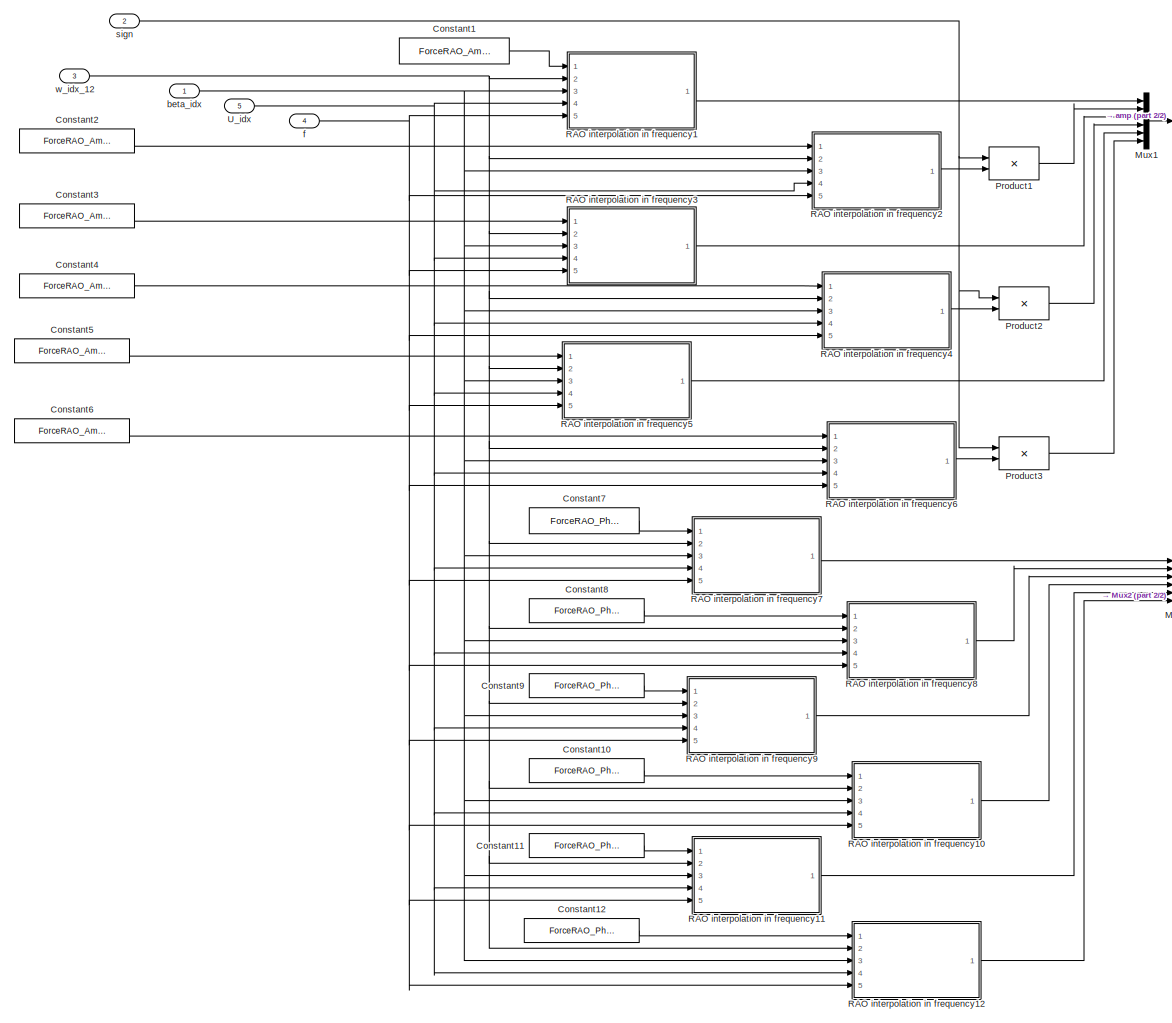
[diagram: Wave loads for heading2/Wave component loop/Force RAO tables - part 1/2, most of the canvas]
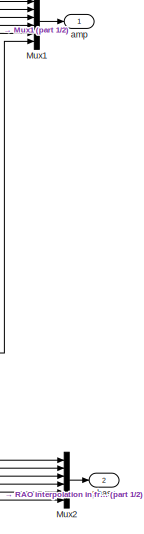
[diagram: Wave loads for heading2/Wave component loop/Force RAO tables - part 2/2, middle right region]
BLOCK [SubSystem] Wave loads for heading2/Wave component loop/Force RAO tables
  AncestorBlock = marine_gnc/Models/Environmental\nLoads/Utilities/RAO tables
  FunctionWithSeparateData = off
  MaskCallbackString = ||||
  MaskEnableString = on,on,on,on,on
  MaskHideContents = off
  MaskIconFrame = on
  MaskIconOpaque = on
  MaskIconRotate = none
  MaskIconUnits = autoscale
  MaskPromptString = Vector of frequencies (rad/s)|Vector of directions (rad)|Vector of velocities (m/s)|6DOF Cell array with tables of Amplitudes|6DOF Cell array with tables of Phases (rad)
  MaskStyleString = edit,edit,edit,edit,edit
  MaskTabNameString = ,,,,
  MaskToolTipString = on,on,on,on,on
  MaskTunableValueString = on,on,on,on,on
  MaskType = RAO table lookup
  MaskValueString = ForceRAO_Freq|RAO_Dir|RAO_Vel|ForceRAO_Amp|ForceRAO_Phase
  MaskVarAliasString = ,,,,
  MaskVariables = RAO_Freq=@1;RAO_Dir=@2;RAO_Vel=@3;RAO_Amp=@4;RAO_Phase=@5;
  MaskVisibilityString = on,on,on,on,on
  MinAlgLoopOccurrences = off
  Ports = [5, 2]
  RTWSystemCode = Auto
BLOCK [Constant] Wave loads for heading2/Wave component loop/Force RAO tables/Constant1
  Value = ForceRAO_Amp{1}
BLOCK [Constant] Wave loads for heading2/Wave component loop/Force RAO tables/Constant10
  Value = ForceRAO_Phase{4}
BLOCK [Constant] Wave loads for heading2/Wave component loop/Force RAO tables/Constant11
  Value = ForceRAO_Phase{5}
BLOCK [Constant] Wave loads for heading2/Wave component loop/Force RAO tables/Constant12
  Value = ForceRAO_Phase{6}
BLOCK [Constant] Wave loads for heading2/Wave component loop/Force RAO tables/Constant2
  Value = ForceRAO_Amp{2}
BLOCK [Constant] Wave loads for heading2/Wave component loop/Force RAO tables/Constant3
  Value = ForceRAO_Amp{3}
BLOCK [Constant] Wave loads for heading2/Wave component loop/Force RAO tables/Constant4
  Value = ForceRAO_Amp{4}
BLOCK [Constant] Wave loads for heading2/Wave component loop/Force RAO tables/Constant5
  Value = ForceRAO_Amp{5}
BLOCK [Constant] Wave loads for heading2/Wave component loop/Force RAO tables/Constant6
  Value = ForceRAO_Amp{6}
BLOCK [Constant] Wave loads for heading2/Wave component loop/Force RAO tables/Constant7
  Value = ForceRAO_Phase{1}
BLOCK [Constant] Wave loads for heading2/Wave component loop/Force RAO tables/Constant8
  Value = ForceRAO_Phase{2}
BLOCK [Constant] Wave loads for heading2/Wave component loop/Force RAO tables/Constant9
  Value = ForceRAO_Phase{3}
BLOCK [Mux] Wave loads for heading2/Wave component loop/Force RAO tables/Mux1
  DisplayOption = bar
  Inputs = 6
  Ports = [6, 1]
BLOCK [Mux] Wave loads for heading2/Wave component loop/Force RAO tables/Mux2
  DisplayOption = bar
  Inputs = 6
  Ports = [6, 1]
BLOCK [Product] Wave loads for heading2/Wave component loop/Force RAO tables/Product1
  CollapseMode = All dimensions
  InputSameDT = off
  Inputs = **
  Ports = [2, 1]
  RndMeth = Floor
BLOCK [Product] Wave loads for heading2/Wave component loop/Force RAO tables/Product2
  CollapseMode = All dimensions
  InputSameDT = off
  Inputs = **
  Ports = [2, 1]
  RndMeth = Floor
BLOCK [Product] Wave loads for heading2/Wave component loop/Force RAO tables/Product3
  CollapseMode = All dimensions
  InputSameDT = off
  Inputs = **
  Ports = [2, 1]
  RndMeth = Floor
BLOCK [SubSystem] Wave loads for heading2/Wave component loop/Force RAO tables/RAO interpolation in frequency1
  FunctionWithSeparateData = off
  MaskHideContents = off
  MinAlgLoopOccurrences = off
  Ports = [5, 1]
  RTWSystemCode = Auto
BLOCK [Demux] Wave loads for heading2/Wave component loop/Force RAO tables/RAO interpolation in frequency1/Demux
  DisplayOption = bar
  Outputs = 2
  Ports = [1, 2]
BLOCK [Product] Wave loads for heading2/Wave component loop/Force RAO tables/RAO interpolation in frequency1/Product
  CollapseMode = All dimensions
  InputSameDT = off
  OutDataTypeMode = Inherit via internal rule
  Ports = [2, 1]
  SaturateOnIntegerOverflow = off
BLOCK [Selector] Wave loads for heading2/Wave component loop/Force RAO tables/RAO interpolation in frequency1/Selector1
  IndexOptions = Index vector (port),Index vector (port),Index vector (port)
  Indices = [1 3],1,1
  NumberOfDimensions = 3
  OutputSizes = 1,1,1
  Ports = [4, 1]
BLOCK [Sum] Wave loads for heading2/Wave component loop/Force RAO tables/RAO interpolation in frequency1/Sum3
  CollapseMode = All dimensions
  IconShape = round
  InputSameDT = off
  Inputs = -+|
  OutDataTypeMode = Inherit via internal rule
  Ports = [2, 1]
  SaturateOnIntegerOverflow = off
BLOCK [Sum] Wave loads for heading2/Wave component loop/Force RAO tables/RAO interpolation in frequency1/Sum4
  CollapseMode = All dimensions
  IconShape = round
  InputSameDT = off
  Inputs = ++|
  OutDataTypeMode = Inherit via internal rule
  Ports = [2, 1]
  SaturateOnIntegerOverflow = off
BLOCK [Inport] Wave loads for heading2/Wave component loop/Force RAO tables/RAO interpolation in frequency1/Table
  IconDisplay = Port number
BLOCK [Inport] Wave loads for heading2/Wave component loop/Force RAO tables/RAO interpolation in frequency1/U_idx
  IconDisplay = Port number
  Port = 4
BLOCK [Inport] Wave loads for heading2/Wave component loop/Force RAO tables/RAO interpolation in frequency1/beta_idx
  IconDisplay = Port number
  Port = 3
BLOCK [Inport] Wave loads for heading2/Wave component loop/Force RAO tables/RAO interpolation in frequency1/f
  IconDisplay = Port number
  Port = 5
BLOCK [Inport] Wave loads for heading2/Wave component loop/Force RAO tables/RAO interpolation in frequency1/w_idx_12
  IconDisplay = Port number
  Port = 2
BLOCK [Outport] Wave loads for heading2/Wave component loop/Force RAO tables/RAO interpolation in frequency1/y
  BusOutputAsStruct = off
  IconDisplay = Port number
BLOCK [SubSystem] Wave loads for heading2/Wave component loop/Force RAO tables/RAO interpolation in frequency10
  FunctionWithSeparateData = off
  MaskHideContents = off
  MinAlgLoopOccurrences = off
  Ports = [5, 1]
  RTWSystemCode = Auto
BLOCK [Demux] Wave loads for heading2/Wave component loop/Force RAO tables/RAO interpolation in frequency10/Demux
  DisplayOption = bar
  Outputs = 2
  Ports = [1, 2]
BLOCK [Product] Wave loads for heading2/Wave component loop/Force RAO tables/RAO interpolation in frequency10/Product
  CollapseMode = All dimensions
  InputSameDT = off
  OutDataTypeMode = Inherit via internal rule
  Ports = [2, 1]
  SaturateOnIntegerOverflow = off
BLOCK [Selector] Wave loads for heading2/Wave component loop/Force RAO tables/RAO interpolation in frequency10/Selector1
  IndexOptions = Index vector (port),Index vector (port),Index vector (port)
  Indices = [1 3],1,1
  NumberOfDimensions = 3
  OutputSizes = 1,1,1
  Ports = [4, 1]
BLOCK [Sum] Wave loads for heading2/Wave component loop/Force RAO tables/RAO interpolation in frequency10/Sum3
  CollapseMode = All dimensions
  IconShape = round
  InputSameDT = off
  Inputs = -+|
  OutDataTypeMode = Inherit via internal rule
  Ports = [2, 1]
  SaturateOnIntegerOverflow = off
BLOCK [Sum] Wave loads for heading2/Wave component loop/Force RAO tables/RAO interpolation in frequency10/Sum4
  CollapseMode = All dimensions
  IconShape = round
  InputSameDT = off
  Inputs = ++|
  OutDataTypeMode = Inherit via internal rule
  Ports = [2, 1]
  SaturateOnIntegerOverflow = off
BLOCK [Inport] Wave loads for heading2/Wave component loop/Force RAO tables/RAO interpolation in frequency10/Table
  IconDisplay = Port number
BLOCK [Inport] Wave loads for heading2/Wave component loop/Force RAO tables/RAO interpolation in frequency10/U_idx
  IconDisplay = Port number
  Port = 4
BLOCK [Inport] Wave loads for heading2/Wave component loop/Force RAO tables/RAO interpolation in frequency10/beta_idx
  IconDisplay = Port number
  Port = 3
BLOCK [Inport] Wave loads for heading2/Wave component loop/Force RAO tables/RAO interpolation in frequency10/f
  IconDisplay = Port number
  Port = 5
BLOCK [Inport] Wave loads for heading2/Wave component loop/Force RAO tables/RAO interpolation in frequency10/w_idx_12
  IconDisplay = Port number
  Port = 2
BLOCK [Outport] Wave loads for heading2/Wave component loop/Force RAO tables/RAO interpolation in frequency10/y
  BusOutputAsStruct = off
  IconDisplay = Port number
BLOCK [SubSystem] Wave loads for heading2/Wave component loop/Force RAO tables/RAO interpolation in frequency11
  FunctionWithSeparateData = off
  MaskHideContents = off
  MinAlgLoopOccurrences = off
  Ports = [5, 1]
  RTWSystemCode = Auto
BLOCK [Demux] Wave loads for heading2/Wave component loop/Force RAO tables/RAO interpolation in frequency11/Demux
  DisplayOption = bar
  Outputs = 2
  Ports = [1, 2]
BLOCK [Product] Wave loads for heading2/Wave component loop/Force RAO tables/RAO interpolation in frequency11/Product
  CollapseMode = All dimensions
  InputSameDT = off
  OutDataTypeMode = Inherit via internal rule
  Ports = [2, 1]
  SaturateOnIntegerOverflow = off
BLOCK [Selector] Wave loads for heading2/Wave component loop/Force RAO tables/RAO interpolation in frequency11/Selector1
  IndexOptions = Index vector (port),Index vector (port),Index vector (port)
  Indices = [1 3],1,1
  NumberOfDimensions = 3
  OutputSizes = 1,1,1
  Ports = [4, 1]
BLOCK [Sum] Wave loads for heading2/Wave component loop/Force RAO tables/RAO interpolation in frequency11/Sum3
  CollapseMode = All dimensions
  IconShape = round
  InputSameDT = off
  Inputs = -+|
  OutDataTypeMode = Inherit via internal rule
  Ports = [2, 1]
  SaturateOnIntegerOverflow = off
BLOCK [Sum] Wave loads for heading2/Wave component loop/Force RAO tables/RAO interpolation in frequency11/Sum4
  CollapseMode = All dimensions
  IconShape = round
  InputSameDT = off
  Inputs = ++|
  OutDataTypeMode = Inherit via internal rule
  Ports = [2, 1]
  SaturateOnIntegerOverflow = off
BLOCK [Inport] Wave loads for heading2/Wave component loop/Force RAO tables/RAO interpolation in frequency11/Table
  IconDisplay = Port number
BLOCK [Inport] Wave loads for heading2/Wave component loop/Force RAO tables/RAO interpolation in frequency11/U_idx
  IconDisplay = Port number
  Port = 4
BLOCK [Inport] Wave loads for heading2/Wave component loop/Force RAO tables/RAO interpolation in frequency11/beta_idx
  IconDisplay = Port number
  Port = 3
BLOCK [Inport] Wave loads for heading2/Wave component loop/Force RAO tables/RAO interpolation in frequency11/f
  IconDisplay = Port number
  Port = 5
BLOCK [Inport] Wave loads for heading2/Wave component loop/Force RAO tables/RAO interpolation in frequency11/w_idx_12
  IconDisplay = Port number
  Port = 2
BLOCK [Outport] Wave loads for heading2/Wave component loop/Force RAO tables/RAO interpolation in frequency11/y
  BusOutputAsStruct = off
  IconDisplay = Port number
BLOCK [SubSystem] Wave loads for heading2/Wave component loop/Force RAO tables/RAO interpolation in frequency12
  FunctionWithSeparateData = off
  MaskHideContents = off
  MinAlgLoopOccurrences = off
  Ports = [5, 1]
  RTWSystemCode = Auto
BLOCK [Demux] Wave loads for heading2/Wave component loop/Force RAO tables/RAO interpolation in frequency12/Demux
  DisplayOption = bar
  Outputs = 2
  Ports = [1, 2]
BLOCK [Product] Wave loads for heading2/Wave component loop/Force RAO tables/RAO interpolation in frequency12/Product
  CollapseMode = All dimensions
  InputSameDT = off
  OutDataTypeMode = Inherit via internal rule
  Ports = [2, 1]
  SaturateOnIntegerOverflow = off
BLOCK [Selector] Wave loads for heading2/Wave component loop/Force RAO tables/RAO interpolation in frequency12/Selector1
  IndexOptions = Index vector (port),Index vector (port),Index vector (port)
  Indices = [1 3],1,1
  NumberOfDimensions = 3
  OutputSizes = 1,1,1
  Ports = [4, 1]
BLOCK [Sum] Wave loads for heading2/Wave component loop/Force RAO tables/RAO interpolation in frequency12/Sum3
  CollapseMode = All dimensions
  IconShape = round
  InputSameDT = off
  Inputs = -+|
  OutDataTypeMode = Inherit via internal rule
  Ports = [2, 1]
  SaturateOnIntegerOverflow = off
BLOCK [Sum] Wave loads for heading2/Wave component loop/Force RAO tables/RAO interpolation in frequency12/Sum4
  CollapseMode = All dimensions
  IconShape = round
  InputSameDT = off
  Inputs = ++|
  OutDataTypeMode = Inherit via internal rule
  Ports = [2, 1]
  SaturateOnIntegerOverflow = off
BLOCK [Inport] Wave loads for heading2/Wave component loop/Force RAO tables/RAO interpolation in frequency12/Table
  IconDisplay = Port number
BLOCK [Inport] Wave loads for heading2/Wave component loop/Force RAO tables/RAO interpolation in frequency12/U_idx
  IconDisplay = Port number
  Port = 4
BLOCK [Inport] Wave loads for heading2/Wave component loop/Force RAO tables/RAO interpolation in frequency12/beta_idx
  IconDisplay = Port number
  Port = 3
BLOCK [Inport] Wave loads for heading2/Wave component loop/Force RAO tables/RAO interpolation in frequency12/f
  IconDisplay = Port number
  Port = 5
BLOCK [Inport] Wave loads for heading2/Wave component loop/Force RAO tables/RAO interpolation in frequency12/w_idx_12
  IconDisplay = Port number
  Port = 2
BLOCK [Outport] Wave loads for heading2/Wave component loop/Force RAO tables/RAO interpolation in frequency12/y
  BusOutputAsStruct = off
  IconDisplay = Port number
BLOCK [SubSystem] Wave loads for heading2/Wave component loop/Force RAO tables/RAO interpolation in frequency2
  FunctionWithSeparateData = off
  MaskHideContents = off
  MinAlgLoopOccurrences = off
  Ports = [5, 1]
  RTWSystemCode = Auto
BLOCK [Demux] Wave loads for heading2/Wave component loop/Force RAO tables/RAO interpolation in frequency2/Demux
  DisplayOption = bar
  Outputs = 2
  Ports = [1, 2]
BLOCK [Product] Wave loads for heading2/Wave component loop/Force RAO tables/RAO interpolation in frequency2/Product
  CollapseMode = All dimensions
  InputSameDT = off
  OutDataTypeMode = Inherit via internal rule
  Ports = [2, 1]
  SaturateOnIntegerOverflow = off
BLOCK [Selector] Wave loads for heading2/Wave component loop/Force RAO tables/RAO interpolation in frequency2/Selector1
  IndexOptions = Index vector (port),Index vector (port),Index vector (port)
  Indices = [1 3],1,1
  NumberOfDimensions = 3
  OutputSizes = 1,1,1
  Ports = [4, 1]
BLOCK [Sum] Wave loads for heading2/Wave component loop/Force RAO tables/RAO interpolation in frequency2/Sum3
  CollapseMode = All dimensions
  IconShape = round
  InputSameDT = off
  Inputs = -+|
  OutDataTypeMode = Inherit via internal rule
  Ports = [2, 1]
  SaturateOnIntegerOverflow = off
BLOCK [Sum] Wave loads for heading2/Wave component loop/Force RAO tables/RAO interpolation in frequency2/Sum4
  CollapseMode = All dimensions
  IconShape = round
  InputSameDT = off
  Inputs = ++|
  OutDataTypeMode = Inherit via internal rule
  Ports = [2, 1]
  SaturateOnIntegerOverflow = off
BLOCK [Inport] Wave loads for heading2/Wave component loop/Force RAO tables/RAO interpolation in frequency2/Table
  IconDisplay = Port number
BLOCK [Inport] Wave loads for heading2/Wave component loop/Force RAO tables/RAO interpolation in frequency2/U_idx
  IconDisplay = Port number
  Port = 4
BLOCK [Inport] Wave loads for heading2/Wave component loop/Force RAO tables/RAO interpolation in frequency2/beta_idx
  IconDisplay = Port number
  Port = 3
BLOCK [Inport] Wave loads for heading2/Wave component loop/Force RAO tables/RAO interpolation in frequency2/f
  IconDisplay = Port number
  Port = 5
BLOCK [Inport] Wave loads for heading2/Wave component loop/Force RAO tables/RAO interpolation in frequency2/w_idx_12
  IconDisplay = Port number
  Port = 2
BLOCK [Outport] Wave loads for heading2/Wave component loop/Force RAO tables/RAO interpolation in frequency2/y
  BusOutputAsStruct = off
  IconDisplay = Port number
BLOCK [SubSystem] Wave loads for heading2/Wave component loop/Force RAO tables/RAO interpolation in frequency3
  FunctionWithSeparateData = off
  MaskHideContents = off
  MinAlgLoopOccurrences = off
  Ports = [5, 1]
  RTWSystemCode = Auto
BLOCK [Demux] Wave loads for heading2/Wave component loop/Force RAO tables/RAO interpolation in frequency3/Demux
  DisplayOption = bar
  Outputs = 2
  Ports = [1, 2]
BLOCK [Product] Wave loads for heading2/Wave component loop/Force RAO tables/RAO interpolation in frequency3/Product
  CollapseMode = All dimensions
  InputSameDT = off
  OutDataTypeMode = Inherit via internal rule
  Ports = [2, 1]
  SaturateOnIntegerOverflow = off
BLOCK [Selector] Wave loads for heading2/Wave component loop/Force RAO tables/RAO interpolation in frequency3/Selector1
  IndexOptions = Index vector (port),Index vector (port),Index vector (port)
  Indices = [1 3],1,1
  NumberOfDimensions = 3
  OutputSizes = 1,1,1
  Ports = [4, 1]
BLOCK [Sum] Wave loads for heading2/Wave component loop/Force RAO tables/RAO interpolation in frequency3/Sum3
  CollapseMode = All dimensions
  IconShape = round
  InputSameDT = off
  Inputs = -+|
  OutDataTypeMode = Inherit via internal rule
  Ports = [2, 1]
  SaturateOnIntegerOverflow = off
BLOCK [Sum] Wave loads for heading2/Wave component loop/Force RAO tables/RAO interpolation in frequency3/Sum4
  CollapseMode = All dimensions
  IconShape = round
  InputSameDT = off
  Inputs = ++|
  OutDataTypeMode = Inherit via internal rule
  Ports = [2, 1]
  SaturateOnIntegerOverflow = off
BLOCK [Inport] Wave loads for heading2/Wave component loop/Force RAO tables/RAO interpolation in frequency3/Table
  IconDisplay = Port number
BLOCK [Inport] Wave loads for heading2/Wave component loop/Force RAO tables/RAO interpolation in frequency3/U_idx
  IconDisplay = Port number
  Port = 4
BLOCK [Inport] Wave loads for heading2/Wave component loop/Force RAO tables/RAO interpolation in frequency3/beta_idx
  IconDisplay = Port number
  Port = 3
BLOCK [Inport] Wave loads for heading2/Wave component loop/Force RAO tables/RAO interpolation in frequency3/f
  IconDisplay = Port number
  Port = 5
BLOCK [Inport] Wave loads for heading2/Wave component loop/Force RAO tables/RAO interpolation in frequency3/w_idx_12
  IconDisplay = Port number
  Port = 2
BLOCK [Outport] Wave loads for heading2/Wave component loop/Force RAO tables/RAO interpolation in frequency3/y
  BusOutputAsStruct = off
  IconDisplay = Port number
BLOCK [SubSystem] Wave loads for heading2/Wave component loop/Force RAO tables/RAO interpolation in frequency4
  FunctionWithSeparateData = off
  MaskHideContents = off
  MinAlgLoopOccurrences = off
  Ports = [5, 1]
  RTWSystemCode = Auto
BLOCK [Demux] Wave loads for heading2/Wave component loop/Force RAO tables/RAO interpolation in frequency4/Demux
  DisplayOption = bar
  Outputs = 2
  Ports = [1, 2]
BLOCK [Product] Wave loads for heading2/Wave component loop/Force RAO tables/RAO interpolation in frequency4/Product
  CollapseMode = All dimensions
  InputSameDT = off
  OutDataTypeMode = Inherit via internal rule
  Ports = [2, 1]
  SaturateOnIntegerOverflow = off
BLOCK [Selector] Wave loads for heading2/Wave component loop/Force RAO tables/RAO interpolation in frequency4/Selector1
  IndexOptions = Index vector (port),Index vector (port),Index vector (port)
  Indices = [1 3],1,1
  NumberOfDimensions = 3
  OutputSizes = 1,1,1
  Ports = [4, 1]
BLOCK [Sum] Wave loads for heading2/Wave component loop/Force RAO tables/RAO interpolation in frequency4/Sum3
  CollapseMode = All dimensions
  IconShape = round
  InputSameDT = off
  Inputs = -+|
  OutDataTypeMode = Inherit via internal rule
  Ports = [2, 1]
  SaturateOnIntegerOverflow = off
BLOCK [Sum] Wave loads for heading2/Wave component loop/Force RAO tables/RAO interpolation in frequency4/Sum4
  CollapseMode = All dimensions
  IconShape = round
  InputSameDT = off
  Inputs = ++|
  OutDataTypeMode = Inherit via internal rule
  Ports = [2, 1]
  SaturateOnIntegerOverflow = off
BLOCK [Inport] Wave loads for heading2/Wave component loop/Force RAO tables/RAO interpolation in frequency4/Table
  IconDisplay = Port number
BLOCK [Inport] Wave loads for heading2/Wave component loop/Force RAO tables/RAO interpolation in frequency4/U_idx
  IconDisplay = Port number
  Port = 4
BLOCK [Inport] Wave loads for heading2/Wave component loop/Force RAO tables/RAO interpolation in frequency4/beta_idx
  IconDisplay = Port number
  Port = 3
BLOCK [Inport] Wave loads for heading2/Wave component loop/Force RAO tables/RAO interpolation in frequency4/f
  IconDisplay = Port number
  Port = 5
BLOCK [Inport] Wave loads for heading2/Wave component loop/Force RAO tables/RAO interpolation in frequency4/w_idx_12
  IconDisplay = Port number
  Port = 2
BLOCK [Outport] Wave loads for heading2/Wave component loop/Force RAO tables/RAO interpolation in frequency4/y
  BusOutputAsStruct = off
  IconDisplay = Port number
BLOCK [SubSystem] Wave loads for heading2/Wave component loop/Force RAO tables/RAO interpolation in frequency5
  FunctionWithSeparateData = off
  MaskHideContents = off
  MinAlgLoopOccurrences = off
  Ports = [5, 1]
  RTWSystemCode = Auto
BLOCK [Demux] Wave loads for heading2/Wave component loop/Force RAO tables/RAO interpolation in frequency5/Demux
  DisplayOption = bar
  Outputs = 2
  Ports = [1, 2]
BLOCK [Product] Wave loads for heading2/Wave component loop/Force RAO tables/RAO interpolation in frequency5/Product
  CollapseMode = All dimensions
  InputSameDT = off
  OutDataTypeMode = Inherit via internal rule
  Ports = [2, 1]
  SaturateOnIntegerOverflow = off
BLOCK [Selector] Wave loads for heading2/Wave component loop/Force RAO tables/RAO interpolation in frequency5/Selector1
  IndexOptions = Index vector (port),Index vector (port),Index vector (port)
  Indices = [1 3],1,1
  NumberOfDimensions = 3
  OutputSizes = 1,1,1
  Ports = [4, 1]
BLOCK [Sum] Wave loads for heading2/Wave component loop/Force RAO tables/RAO interpolation in frequency5/Sum3
  CollapseMode = All dimensions
  IconShape = round
  InputSameDT = off
  Inputs = -+|
  OutDataTypeMode = Inherit via internal rule
  Ports = [2, 1]
  SaturateOnIntegerOverflow = off
BLOCK [Sum] Wave loads for heading2/Wave component loop/Force RAO tables/RAO interpolation in frequency5/Sum4
  CollapseMode = All dimensions
  IconShape = round
  InputSameDT = off
  Inputs = ++|
  OutDataTypeMode = Inherit via internal rule
  Ports = [2, 1]
  SaturateOnIntegerOverflow = off
BLOCK [Inport] Wave loads for heading2/Wave component loop/Force RAO tables/RAO interpolation in frequency5/Table
  IconDisplay = Port number
BLOCK [Inport] Wave loads for heading2/Wave component loop/Force RAO tables/RAO interpolation in frequency5/U_idx
  IconDisplay = Port number
  Port = 4
BLOCK [Inport] Wave loads for heading2/Wave component loop/Force RAO tables/RAO interpolation in frequency5/beta_idx
  IconDisplay = Port number
  Port = 3
BLOCK [Inport] Wave loads for heading2/Wave component loop/Force RAO tables/RAO interpolation in frequency5/f
  IconDisplay = Port number
  Port = 5
BLOCK [Inport] Wave loads for heading2/Wave component loop/Force RAO tables/RAO interpolation in frequency5/w_idx_12
  IconDisplay = Port number
  Port = 2
BLOCK [Outport] Wave loads for heading2/Wave component loop/Force RAO tables/RAO interpolation in frequency5/y
  BusOutputAsStruct = off
  IconDisplay = Port number
BLOCK [SubSystem] Wave loads for heading2/Wave component loop/Force RAO tables/RAO interpolation in frequency6
  FunctionWithSeparateData = off
  MaskHideContents = off
  MinAlgLoopOccurrences = off
  Ports = [5, 1]
  RTWSystemCode = Auto
BLOCK [Demux] Wave loads for heading2/Wave component loop/Force RAO tables/RAO interpolation in frequency6/Demux
  DisplayOption = bar
  Outputs = 2
  Ports = [1, 2]
BLOCK [Product] Wave loads for heading2/Wave component loop/Force RAO tables/RAO interpolation in frequency6/Product
  CollapseMode = All dimensions
  InputSameDT = off
  OutDataTypeMode = Inherit via internal rule
  Ports = [2, 1]
  SaturateOnIntegerOverflow = off
BLOCK [Selector] Wave loads for heading2/Wave component loop/Force RAO tables/RAO interpolation in frequency6/Selector1
  IndexOptions = Index vector (port),Index vector (port),Index vector (port)
  Indices = [1 3],1,1
  NumberOfDimensions = 3
  OutputSizes = 1,1,1
  Ports = [4, 1]
BLOCK [Sum] Wave loads for heading2/Wave component loop/Force RAO tables/RAO interpolation in frequency6/Sum3
  CollapseMode = All dimensions
  IconShape = round
  InputSameDT = off
  Inputs = -+|
  OutDataTypeMode = Inherit via internal rule
  Ports = [2, 1]
  SaturateOnIntegerOverflow = off
BLOCK [Sum] Wave loads for heading2/Wave component loop/Force RAO tables/RAO interpolation in frequency6/Sum4
  CollapseMode = All dimensions
  IconShape = round
  InputSameDT = off
  Inputs = ++|
  OutDataTypeMode = Inherit via internal rule
  Ports = [2, 1]
  SaturateOnIntegerOverflow = off
BLOCK [Inport] Wave loads for heading2/Wave component loop/Force RAO tables/RAO interpolation in frequency6/Table
  IconDisplay = Port number
BLOCK [Inport] Wave loads for heading2/Wave component loop/Force RAO tables/RAO interpolation in frequency6/U_idx
  IconDisplay = Port number
  Port = 4
BLOCK [Inport] Wave loads for heading2/Wave component loop/Force RAO tables/RAO interpolation in frequency6/beta_idx
  IconDisplay = Port number
  Port = 3
BLOCK [Inport] Wave loads for heading2/Wave component loop/Force RAO tables/RAO interpolation in frequency6/f
  IconDisplay = Port number
  Port = 5
BLOCK [Inport] Wave loads for heading2/Wave component loop/Force RAO tables/RAO interpolation in frequency6/w_idx_12
  IconDisplay = Port number
  Port = 2
BLOCK [Outport] Wave loads for heading2/Wave component loop/Force RAO tables/RAO interpolation in frequency6/y
  BusOutputAsStruct = off
  IconDisplay = Port number
BLOCK [SubSystem] Wave loads for heading2/Wave component loop/Force RAO tables/RAO interpolation in frequency7
  FunctionWithSeparateData = off
  MaskHideContents = off
  MinAlgLoopOccurrences = off
  Ports = [5, 1]
  RTWSystemCode = Auto
BLOCK [Demux] Wave loads for heading2/Wave component loop/Force RAO tables/RAO interpolation in frequency7/Demux
  DisplayOption = bar
  Outputs = 2
  Ports = [1, 2]
BLOCK [Product] Wave loads for heading2/Wave component loop/Force RAO tables/RAO interpolation in frequency7/Product
  CollapseMode = All dimensions
  InputSameDT = off
  OutDataTypeMode = Inherit via internal rule
  Ports = [2, 1]
  SaturateOnIntegerOverflow = off
BLOCK [Selector] Wave loads for heading2/Wave component loop/Force RAO tables/RAO interpolation in frequency7/Selector1
  IndexOptions = Index vector (port),Index vector (port),Index vector (port)
  Indices = [1 3],1,1
  NumberOfDimensions = 3
  OutputSizes = 1,1,1
  Ports = [4, 1]
BLOCK [Sum] Wave loads for heading2/Wave component loop/Force RAO tables/RAO interpolation in frequency7/Sum3
  CollapseMode = All dimensions
  IconShape = round
  InputSameDT = off
  Inputs = -+|
  OutDataTypeMode = Inherit via internal rule
  Ports = [2, 1]
  SaturateOnIntegerOverflow = off
BLOCK [Sum] Wave loads for heading2/Wave component loop/Force RAO tables/RAO interpolation in frequency7/Sum4
  CollapseMode = All dimensions
  IconShape = round
  InputSameDT = off
  Inputs = ++|
  OutDataTypeMode = Inherit via internal rule
  Ports = [2, 1]
  SaturateOnIntegerOverflow = off
BLOCK [Inport] Wave loads for heading2/Wave component loop/Force RAO tables/RAO interpolation in frequency7/Table
  IconDisplay = Port number
BLOCK [Inport] Wave loads for heading2/Wave component loop/Force RAO tables/RAO interpolation in frequency7/U_idx
  IconDisplay = Port number
  Port = 4
BLOCK [Inport] Wave loads for heading2/Wave component loop/Force RAO tables/RAO interpolation in frequency7/beta_idx
  IconDisplay = Port number
  Port = 3
BLOCK [Inport] Wave loads for heading2/Wave component loop/Force RAO tables/RAO interpolation in frequency7/f
  IconDisplay = Port number
  Port = 5
BLOCK [Inport] Wave loads for heading2/Wave component loop/Force RAO tables/RAO interpolation in frequency7/w_idx_12
  IconDisplay = Port number
  Port = 2
BLOCK [Outport] Wave loads for heading2/Wave component loop/Force RAO tables/RAO interpolation in frequency7/y
  BusOutputAsStruct = off
  IconDisplay = Port number
BLOCK [SubSystem] Wave loads for heading2/Wave component loop/Force RAO tables/RAO interpolation in frequency8
  FunctionWithSeparateData = off
  MaskHideContents = off
  MinAlgLoopOccurrences = off
  Ports = [5, 1]
  RTWSystemCode = Auto
BLOCK [Demux] Wave loads for heading2/Wave component loop/Force RAO tables/RAO interpolation in frequency8/Demux
  DisplayOption = bar
  Outputs = 2
  Ports = [1, 2]
BLOCK [Product] Wave loads for heading2/Wave component loop/Force RAO tables/RAO interpolation in frequency8/Product
  CollapseMode = All dimensions
  InputSameDT = off
  OutDataTypeMode = Inherit via internal rule
  Ports = [2, 1]
  SaturateOnIntegerOverflow = off
BLOCK [Selector] Wave loads for heading2/Wave component loop/Force RAO tables/RAO interpolation in frequency8/Selector1
  IndexOptions = Index vector (port),Index vector (port),Index vector (port)
  Indices = [1 3],1,1
  NumberOfDimensions = 3
  OutputSizes = 1,1,1
  Ports = [4, 1]
BLOCK [Sum] Wave loads for heading2/Wave component loop/Force RAO tables/RAO interpolation in frequency8/Sum3
  CollapseMode = All dimensions
  IconShape = round
  InputSameDT = off
  Inputs = -+|
  OutDataTypeMode = Inherit via internal rule
  Ports = [2, 1]
  SaturateOnIntegerOverflow = off
BLOCK [Sum] Wave loads for heading2/Wave component loop/Force RAO tables/RAO interpolation in frequency8/Sum4
  CollapseMode = All dimensions
  IconShape = round
  InputSameDT = off
  Inputs = ++|
  OutDataTypeMode = Inherit via internal rule
  Ports = [2, 1]
  SaturateOnIntegerOverflow = off
BLOCK [Inport] Wave loads for heading2/Wave component loop/Force RAO tables/RAO interpolation in frequency8/Table
  IconDisplay = Port number
BLOCK [Inport] Wave loads for heading2/Wave component loop/Force RAO tables/RAO interpolation in frequency8/U_idx
  IconDisplay = Port number
  Port = 4
BLOCK [Inport] Wave loads for heading2/Wave component loop/Force RAO tables/RAO interpolation in frequency8/beta_idx
  IconDisplay = Port number
  Port = 3
BLOCK [Inport] Wave loads for heading2/Wave component loop/Force RAO tables/RAO interpolation in frequency8/f
  IconDisplay = Port number
  Port = 5
BLOCK [Inport] Wave loads for heading2/Wave component loop/Force RAO tables/RAO interpolation in frequency8/w_idx_12
  IconDisplay = Port number
  Port = 2
BLOCK [Outport] Wave loads for heading2/Wave component loop/Force RAO tables/RAO interpolation in frequency8/y
  BusOutputAsStruct = off
  IconDisplay = Port number
BLOCK [SubSystem] Wave loads for heading2/Wave component loop/Force RAO tables/RAO interpolation in frequency9
  FunctionWithSeparateData = off
  MaskHideContents = off
  MinAlgLoopOccurrences = off
  Ports = [5, 1]
  RTWSystemCode = Auto
BLOCK [Demux] Wave loads for heading2/Wave component loop/Force RAO tables/RAO interpolation in frequency9/Demux
  DisplayOption = bar
  Outputs = 2
  Ports = [1, 2]
BLOCK [Product] Wave loads for heading2/Wave component loop/Force RAO tables/RAO interpolation in frequency9/Product
  CollapseMode = All dimensions
  InputSameDT = off
  OutDataTypeMode = Inherit via internal rule
  Ports = [2, 1]
  SaturateOnIntegerOverflow = off
BLOCK [Selector] Wave loads for heading2/Wave component loop/Force RAO tables/RAO interpolation in frequency9/Selector1
  IndexOptions = Index vector (port),Index vector (port),Index vector (port)
  Indices = [1 3],1,1
  NumberOfDimensions = 3
  OutputSizes = 1,1,1
  Ports = [4, 1]
BLOCK [Sum] Wave loads for heading2/Wave component loop/Force RAO tables/RAO interpolation in frequency9/Sum3
  CollapseMode = All dimensions
  IconShape = round
  InputSameDT = off
  Inputs = -+|
  OutDataTypeMode = Inherit via internal rule
  Ports = [2, 1]
  SaturateOnIntegerOverflow = off
BLOCK [Sum] Wave loads for heading2/Wave component loop/Force RAO tables/RAO interpolation in frequency9/Sum4
  CollapseMode = All dimensions
  IconShape = round
  InputSameDT = off
  Inputs = ++|
  OutDataTypeMode = Inherit via internal rule
  Ports = [2, 1]
  SaturateOnIntegerOverflow = off
BLOCK [Inport] Wave loads for heading2/Wave component loop/Force RAO tables/RAO interpolation in frequency9/Table
  IconDisplay = Port number
BLOCK [Inport] Wave loads for heading2/Wave component loop/Force RAO tables/RAO interpolation in frequency9/U_idx
  IconDisplay = Port number
  Port = 4
BLOCK [Inport] Wave loads for heading2/Wave component loop/Force RAO tables/RAO interpolation in frequency9/beta_idx
  IconDisplay = Port number
  Port = 3
BLOCK [Inport] Wave loads for heading2/Wave component loop/Force RAO tables/RAO interpolation in frequency9/f
  IconDisplay = Port number
  Port = 5
BLOCK [Inport] Wave loads for heading2/Wave component loop/Force RAO tables/RAO interpolation in frequency9/w_idx_12
  IconDisplay = Port number
  Port = 2
BLOCK [Outport] Wave loads for heading2/Wave component loop/Force RAO tables/RAO interpolation in frequency9/y
  BusOutputAsStruct = off
  IconDisplay = Port number
BLOCK [Inport] Wave loads for heading2/Wave component loop/Force RAO tables/U_idx
  IconDisplay = Port number
  Port = 5
BLOCK [Outport] Wave loads for heading2/Wave component loop/Force RAO tables/amp
  BusOutputAsStruct = off
  IconDisplay = Port number
BLOCK [Inport] Wave loads for heading2/Wave component loop/Force RAO tables/beta_idx
  IconDisplay = Port number
BLOCK [Inport] Wave loads for heading2/Wave component loop/Force RAO tables/f
  IconDisplay = Port number
  Port = 4
BLOCK [Outport] Wave loads for heading2/Wave component loop/Force RAO tables/phase
  BusOutputAsStruct = off
  IconDisplay = Port number
  Port = 2
BLOCK [Inport] Wave loads for heading2/Wave component loop/Force RAO tables/sign
  IconDisplay = Port number
  Port = 2
BLOCK [Inport] Wave loads for heading2/Wave component loop/Force RAO tables/w_idx_12
  IconDisplay = Port number
  Port = 3
BLOCK [Memory] Wave loads for heading2/Wave component loop/Memory1
  InheritSampleTime = on
  X0 = [0 0 0 0 0 0]'
BLOCK [Memory] Wave loads for heading2/Wave component loop/Memory2
  InheritSampleTime = on
  X0 = [0 0 0 0 0 0]'
BLOCK [Mux] Wave loads for heading2/Wave component loop/Mux
  DisplayOption = bar
  Inputs = 2
  Ports = [2, 1]
BLOCK [Inport] Wave loads for heading2/Wave component loop/Omega
  IconDisplay = Port number
  Port = 3
BLOCK [Inport] Wave loads for heading2/Wave component loop/Phase_tot
  IconDisplay = Port number
  Port = 4
BLOCK [PreLookup] Wave loads for heading2/Wave component loop/Prelookup
  BeginIndexSearchUsingPreviousIndexResult = on
  BreakpointsData = vessel.headings
  OutputOnlyTheIndex = on
  Ports = [1, 1]
BLOCK [PreLookup] Wave loads for heading2/Wave component loop/Prelookup1
  BeginIndexSearchUsingPreviousIndexResult = on
  BreakpointsData = vessel.forceRAO.w
  Ports = [1, 2]
  ProcessOutOfRangeInput = Linear extrapolation
BLOCK [Product] Wave loads for heading2/Wave component loop/Product1
  CollapseMode = All dimensions
  InputSameDT = off
  Ports = [2, 1]
  RndMeth = Floor
BLOCK [Product] Wave loads for heading2/Wave component loop/Product3
  CollapseMode = All dimensions
  InputSameDT = off
  Inputs = 3
  Ports = [3, 1]
  RndMeth = Floor
BLOCK [Product] Wave loads for heading2/Wave component loop/Product4
  CollapseMode = All dimensions
  InputSameDT = off
  Ports = [2, 1]
  RndMeth = Floor
BLOCK [Inport] Wave loads for heading2/Wave component loop/Psi_r
  IconDisplay = Port number
  Port = 2
BLOCK [Selector] Wave loads for heading2/Wave component loop/Selector2
  IndexOptions = Index vector (port)
  Indices = [1 3]
  OutputSizes = 1
  Ports = [2, 1]
BLOCK [Selector] Wave loads for heading2/Wave component loop/Selector3
  IndexOptions = Index vector (port)
  Indices = [1 3]
  OutputSizes = 1
  Ports = [2, 1]
BLOCK [Selector] Wave loads for heading2/Wave component loop/Selector4
  IndexOptions = Index vector (port)
  Indices = [1 3]
  OutputSizes = 1
  Ports = [2, 1]
BLOCK [Selector] Wave loads for heading2/Wave component loop/Selector5
  IndexOptions = Index vector (port)
  Indices = [1 3]
  OutputSizes = 1
  Ports = [2, 1]
BLOCK [Signum] Wave loads for heading2/Wave component loop/Sign
BLOCK [Sum] Wave loads for heading2/Wave component loop/Sum1
  CollapseMode = All dimensions
  IconShape = round
  InputSameDT = off
  Inputs = ++|
  OutDataTypeMode = Inherit via internal rule
  Ports = [2, 1]
BLOCK [Sum] Wave loads for heading2/Wave component loop/Sum2
  CollapseMode = All dimensions
  IconShape = round
  InputSameDT = off
  Inputs = ++|
  OutDataTypeMode = Inherit via internal rule
  Ports = [2, 1]
  SaturateOnIntegerOverflow = off
BLOCK [Sum] Wave loads for heading2/Wave component loop/Sum3
  CollapseMode = All dimensions
  IconShape = round
  InputSameDT = off
  Inputs = ++|
  OutDataTypeMode = Inherit via internal rule
  Ports = [2, 1]
  SaturateOnIntegerOverflow = off
BLOCK [Sum] Wave loads for heading2/Wave component loop/Sum4
  CollapseMode = All dimensions
  IconShape = round
  InputSameDT = off
  Inputs = ++|
  OutDataTypeMode = Inherit via internal rule
  Ports = [2, 1]
BLOCK [Sum] Wave loads for heading2/Wave component loop/Sum5
  CollapseMode = All dimensions
  IconShape = round
  InputSameDT = off
  Inputs = ++|
  OutDataTypeMode = Inherit via internal rule
  Ports = [2, 1]
BLOCK [Sum] Wave loads for heading2/Wave component loop/Sum6
  CollapseMode = All dimensions
  IconShape = round
  InputSameDT = off
  Inputs = ++|
  OutDataTypeMode = Inherit via internal rule
  Ports = [2, 1]
  SaturateOnIntegerOverflow = off
BLOCK [Inport] Wave loads for heading2/Wave component loop/U_idx
  IconDisplay = Port number
  Port = 6
BLOCK [SubSystem] Wave loads for heading2/Wave component loop/WD RAO tables
  AncestorBlock = marine_gnc/Models/Environmental\nLoads/Utilities/RAO tables
  FunctionWithSeparateData = off
  MaskCallbackString = ||||
  MaskEnableString = on,on,on,on,on
  MaskHideContents = off
  MaskIconFrame = on
  MaskIconOpaque = on
  MaskIconRotate = none
  MaskIconUnits = autoscale
  MaskPromptString = Vector of frequencies (rad/s)|Vector of directions (rad)|Vector of velocities (m/s)|6DOF Cell array with tables of Amplitudes|6DOF Cell array with tables of Phases (rad)
  MaskStyleString = edit,edit,edit,edit,edit
  MaskTabNameString = ,,,,
  MaskToolTipString = on,on,on,on,on
  MaskTunableValueString = on,on,on,on,on
  MaskType = RAO table lookup
  MaskValueString = ForceRAO_Freq|RAO_Dir|RAO_Vel|ForceRAO_Amp|ForceRAO_Phase
  MaskVarAliasString = ,,,,
  MaskVariables = RAO_Freq=@1;RAO_Dir=@2;RAO_Vel=@3;RAO_Amp=@4;RAO_Phase=@5;
  MaskVisibilityString = on,on,on,on,on
  MinAlgLoopOccurrences = off
  Ports = [5, 1]
  RTWSystemCode = Auto
BLOCK [Constant] Wave loads for heading2/Wave component loop/WD RAO tables/Constant
  Value = 0
BLOCK [Constant] Wave loads for heading2/Wave component loop/WD RAO tables/Constant1
  Value = WD_Amp{1}
BLOCK [Constant] Wave loads for heading2/Wave component loop/WD RAO tables/Constant2
  Value = WD_Amp{2}
BLOCK [Constant] Wave loads for heading2/Wave component loop/WD RAO tables/Constant3
  Value = WD_Amp{3}
BLOCK [Mux] Wave loads for heading2/Wave component loop/WD RAO tables/Mux1
  DisplayOption = bar
  Inputs = 6
  Ports = [6, 1]
BLOCK [Product] Wave loads for heading2/Wave component loop/WD RAO tables/Product1
  CollapseMode = All dimensions
  InputSameDT = off
  Inputs = **
  Ports = [2, 1]
  RndMeth = Floor
BLOCK [Product] Wave loads for heading2/Wave component loop/WD RAO tables/Product3
  CollapseMode = All dimensions
  InputSameDT = off
  Inputs = **
  Ports = [2, 1]
  RndMeth = Floor
BLOCK [SubSystem] Wave loads for heading2/Wave component loop/WD RAO tables/RAO interpolation in frequency1
  FunctionWithSeparateData = off
  MaskHideContents = off
  MinAlgLoopOccurrences = off
  Ports = [5, 1]
  RTWSystemCode = Auto
BLOCK [Demux] Wave loads for heading2/Wave component loop/WD RAO tables/RAO interpolation in frequency1/Demux
  DisplayOption = bar
  Outputs = 2
  Ports = [1, 2]
BLOCK [Product] Wave loads for heading2/Wave component loop/WD RAO tables/RAO interpolation in frequency1/Product
  CollapseMode = All dimensions
  InputSameDT = off
  OutDataTypeMode = Inherit via internal rule
  Ports = [2, 1]
  SaturateOnIntegerOverflow = off
BLOCK [Selector] Wave loads for heading2/Wave component loop/WD RAO tables/RAO interpolation in frequency1/Selector1
  IndexOptions = Index vector (port),Index vector (port),Index vector (port)
  Indices = [1 3],1,1
  NumberOfDimensions = 3
  OutputSizes = 1,1,1
  Ports = [4, 1]
BLOCK [Sum] Wave loads for heading2/Wave component loop/WD RAO tables/RAO interpolation in frequency1/Sum3
  CollapseMode = All dimensions
  IconShape = round
  InputSameDT = off
  Inputs = -+|
  OutDataTypeMode = Inherit via internal rule
  Ports = [2, 1]
  SaturateOnIntegerOverflow = off
BLOCK [Sum] Wave loads for heading2/Wave component loop/WD RAO tables/RAO interpolation in frequency1/Sum4
  CollapseMode = All dimensions
  IconShape = round
  InputSameDT = off
  Inputs = ++|
  OutDataTypeMode = Inherit via internal rule
  Ports = [2, 1]
  SaturateOnIntegerOverflow = off
BLOCK [Inport] Wave loads for heading2/Wave component loop/WD RAO tables/RAO interpolation in frequency1/Table
  IconDisplay = Port number
BLOCK [Inport] Wave loads for heading2/Wave component loop/WD RAO tables/RAO interpolation in frequency1/U_idx
  IconDisplay = Port number
  Port = 4
BLOCK [Inport] Wave loads for heading2/Wave component loop/WD RAO tables/RAO interpolation in frequency1/beta_idx
  IconDisplay = Port number
  Port = 3
BLOCK [Inport] Wave loads for heading2/Wave component loop/WD RAO tables/RAO interpolation in frequency1/f
  IconDisplay = Port number
  Port = 5
BLOCK [Inport] Wave loads for heading2/Wave component loop/WD RAO tables/RAO interpolation in frequency1/w_idx_12
  IconDisplay = Port number
  Port = 2
BLOCK [Outport] Wave loads for heading2/Wave component loop/WD RAO tables/RAO interpolation in frequency1/y
  BusOutputAsStruct = off
  IconDisplay = Port number
BLOCK [SubSystem] Wave loads for heading2/Wave component loop/WD RAO tables/RAO interpolation in frequency2
  FunctionWithSeparateData = off
  MaskHideContents = off
  MinAlgLoopOccurrences = off
  Ports = [5, 1]
  RTWSystemCode = Auto
BLOCK [Demux] Wave loads for heading2/Wave component loop/WD RAO tables/RAO interpolation in frequency2/Demux
  DisplayOption = bar
  Outputs = 2
  Ports = [1, 2]
BLOCK [Product] Wave loads for heading2/Wave component loop/WD RAO tables/RAO interpolation in frequency2/Product
  CollapseMode = All dimensions
  InputSameDT = off
  OutDataTypeMode = Inherit via internal rule
  Ports = [2, 1]
  SaturateOnIntegerOverflow = off
BLOCK [Selector] Wave loads for heading2/Wave component loop/WD RAO tables/RAO interpolation in frequency2/Selector1
  IndexOptions = Index vector (port),Index vector (port),Index vector (port)
  Indices = [1 3],1,1
  NumberOfDimensions = 3
  OutputSizes = 1,1,1
  Ports = [4, 1]
BLOCK [Sum] Wave loads for heading2/Wave component loop/WD RAO tables/RAO interpolation in frequency2/Sum3
  CollapseMode = All dimensions
  IconShape = round
  InputSameDT = off
  Inputs = -+|
  OutDataTypeMode = Inherit via internal rule
  Ports = [2, 1]
  SaturateOnIntegerOverflow = off
BLOCK [Sum] Wave loads for heading2/Wave component loop/WD RAO tables/RAO interpolation in frequency2/Sum4
  CollapseMode = All dimensions
  IconShape = round
  InputSameDT = off
  Inputs = ++|
  OutDataTypeMode = Inherit via internal rule
  Ports = [2, 1]
  SaturateOnIntegerOverflow = off
BLOCK [Inport] Wave loads for heading2/Wave component loop/WD RAO tables/RAO interpolation in frequency2/Table
  IconDisplay = Port number
BLOCK [Inport] Wave loads for heading2/Wave component loop/WD RAO tables/RAO interpolation in frequency2/U_idx
  IconDisplay = Port number
  Port = 4
BLOCK [Inport] Wave loads for heading2/Wave component loop/WD RAO tables/RAO interpolation in frequency2/beta_idx
  IconDisplay = Port number
  Port = 3
BLOCK [Inport] Wave loads for heading2/Wave component loop/WD RAO tables/RAO interpolation in frequency2/f
  IconDisplay = Port number
  Port = 5
BLOCK [Inport] Wave loads for heading2/Wave component loop/WD RAO tables/RAO interpolation in frequency2/w_idx_12
  IconDisplay = Port number
  Port = 2
BLOCK [Outport] Wave loads for heading2/Wave component loop/WD RAO tables/RAO interpolation in frequency2/y
  BusOutputAsStruct = off
  IconDisplay = Port number
BLOCK [SubSystem] Wave loads for heading2/Wave component loop/WD RAO tables/RAO interpolation in frequency3
  FunctionWithSeparateData = off
  MaskHideContents = off
  MinAlgLoopOccurrences = off
  Ports = [5, 1]
  RTWSystemCode = Auto
BLOCK [Demux] Wave loads for heading2/Wave component loop/WD RAO tables/RAO interpolation in frequency3/Demux
  DisplayOption = bar
  Outputs = 2
  Ports = [1, 2]
BLOCK [Product] Wave loads for heading2/Wave component loop/WD RAO tables/RAO interpolation in frequency3/Product
  CollapseMode = All dimensions
  InputSameDT = off
  OutDataTypeMode = Inherit via internal rule
  Ports = [2, 1]
  SaturateOnIntegerOverflow = off
BLOCK [Selector] Wave loads for heading2/Wave component loop/WD RAO tables/RAO interpolation in frequency3/Selector1
  IndexOptions = Index vector (port),Index vector (port),Index vector (port)
  Indices = [1 3],1,1
  NumberOfDimensions = 3
  OutputSizes = 1,1,1
  Ports = [4, 1]
BLOCK [Sum] Wave loads for heading2/Wave component loop/WD RAO tables/RAO interpolation in frequency3/Sum3
  CollapseMode = All dimensions
  IconShape = round
  InputSameDT = off
  Inputs = -+|
  OutDataTypeMode = Inherit via internal rule
  Ports = [2, 1]
  SaturateOnIntegerOverflow = off
BLOCK [Sum] Wave loads for heading2/Wave component loop/WD RAO tables/RAO interpolation in frequency3/Sum4
  CollapseMode = All dimensions
  IconShape = round
  InputSameDT = off
  Inputs = ++|
  OutDataTypeMode = Inherit via internal rule
  Ports = [2, 1]
  SaturateOnIntegerOverflow = off
BLOCK [Inport] Wave loads for heading2/Wave component loop/WD RAO tables/RAO interpolation in frequency3/Table
  IconDisplay = Port number
BLOCK [Inport] Wave loads for heading2/Wave component loop/WD RAO tables/RAO interpolation in frequency3/U_idx
  IconDisplay = Port number
  Port = 4
BLOCK [Inport] Wave loads for heading2/Wave component loop/WD RAO tables/RAO interpolation in frequency3/beta_idx
  IconDisplay = Port number
  Port = 3
BLOCK [Inport] Wave loads for heading2/Wave component loop/WD RAO tables/RAO interpolation in frequency3/f
  IconDisplay = Port number
  Port = 5
BLOCK [Inport] Wave loads for heading2/Wave component loop/WD RAO tables/RAO interpolation in frequency3/w_idx_12
  IconDisplay = Port number
  Port = 2
BLOCK [Outport] Wave loads for heading2/Wave component loop/WD RAO tables/RAO interpolation in frequency3/y
  BusOutputAsStruct = off
  IconDisplay = Port number
BLOCK [Inport] Wave loads for heading2/Wave component loop/WD RAO tables/U_idx
  IconDisplay = Port number
  Port = 5
BLOCK [Outport] Wave loads for heading2/Wave component loop/WD RAO tables/amp
  BusOutputAsStruct = off
  IconDisplay = Port number
BLOCK [Inport] Wave loads for heading2/Wave component loop/WD RAO tables/beta_idx
  IconDisplay = Port number
BLOCK [Inport] Wave loads for heading2/Wave component loop/WD RAO tables/f
  IconDisplay = Port number
  Port = 4
BLOCK [Inport] Wave loads for heading2/Wave component loop/WD RAO tables/sign
  IconDisplay = Port number
  Port = 2
BLOCK [Inport] Wave loads for heading2/Wave component loop/WD RAO tables/w_idx_12
  IconDisplay = Port number
  Port = 3
BLOCK [Inport] Wave loads for heading2/Wave component loop/Zeta_a
  IconDisplay = Port number
  Port = 5
BLOCK [Reference] Wave loads for heading2/Wave component loop/[-inf inf] to [-pi pi]  REF=marine_gnc/Utilities/Math Operations/[-inf inf] to [-pi pi]  (lib defined in mdl_10d96c221ba8, mdl_45f1105420c6)
  FunctionWithSeparateData = off
  Ports = [1, 1]
  RTWMemSecDataConstants = Inherit from model
  RTWMemSecDataInternal = Inherit from model
  RTWMemSecDataParameters = Inherit from model
  RTWMemSecFuncExecute = Inherit from model
  RTWMemSecFuncInitTerm = Inherit from model
  ShowPortLabels = FromPortIcon
  SourceBlock = marine_gnc/Utilities/Math Operations/[-inf inf] to [-pi pi]
  SourceType = [-inf inf] to [-pi pi]
  SystemSampleTime = -1
BLOCK [Inport] Wave loads for heading2/Wave component loop/number of \niterations
  IconDisplay = Port number
BLOCK [Constant] Wave loads for heading2/Wave component loop/one
BLOCK [Constant] Wave loads for heading2/Wave component loop/one1
BLOCK [Outport] Wave loads for heading2/Wave component loop/tau_WD
  BusOutputAsStruct = off
  IconDisplay = Port number
  Port = 2
BLOCK [Outport] Wave loads for heading2/Wave component loop/tau_WF
  BusOutputAsStruct = off
  IconDisplay = Port number
BLOCK [Width] Wave loads for heading2/Width
  DataType = int32
BLOCK [Inport] Wave loads for heading2/Zeta_a
  IconDisplay = Port number
  Port = 7
BLOCK [Inport] Wave loads for heading2/eta
  IconDisplay = Port number
BLOCK [Inport] Wave loads for heading2/psi
  IconDisplay = Port number
  Port = 2
BLOCK [Inport] Wave loads for heading2/psi_wave
  IconDisplay = Port number
  Port = 3
BLOCK [Outport] Wave loads for heading2/tau_WD
  BusOutputAsStruct = off
  IconDisplay = Port number
  Port = 2
BLOCK [Outport] Wave loads for heading2/tau_WF
  BusOutputAsStruct = off
  IconDisplay = Port number
BLOCK [Inport] Wave loads for heading2/wavenum
  IconDisplay = Port number
  Port = 4
BLOCK [Reference] Waves  REF=marine_gnc/Environment/Waves/Waves  (lib defined in mdl_10d96c221ba8, mdl_45f1105420c6)
  FunctionWithSeparateData = off
  Omega = 0
  Phase = 0
  Ports = [0, 2]
  Psi = 0
  RTWMemSecDataConstants = Inherit from model
  RTWMemSecDataInternal = Inherit from model
  RTWMemSecDataParameters = Inherit from model
  RTWMemSecFuncExecute = Inherit from model
  RTWMemSecFuncInitTerm = Inherit from model
  ShowPortLabels = FromPortIcon
  SourceBlock = marine_gnc/Environment/Waves/Waves
  SourceType = Waves
  SystemSampleTime = -1
  Wavenum = 0
  Zeta_a = 0
  depth = inf
  dir_cutoff = 0
  disp_flag = off
  energylim = 0.005
  freq_cutoff = 3
  gamma = -1
  hs = 5
  ndir = 10
  nfreq = 20
  omega_peak = -1
  plot_realization = off
  plot_spectrum = off
  psi_mean = 0/(180/pi)
  rand_dir = on
  rand_freq = on
  rand_seed = 0
  spectrum_type = ITTC
  spread = 2
BLOCK [Reference] deg to 180//180  REF=marine_gnc/Utilities/Math Operations/deg to 180//180  (lib defined in mdl_10d96c221ba8, mdl_45f1105420c6)
  FunctionWithSeparateData = off
  Ports = [1, 1]
  RTWMemSecDataConstants = Inherit from model
  RTWMemSecDataInternal = Inherit from model
  RTWMemSecDataParameters = Inherit from model
  RTWMemSecFuncExecute = Inherit from model
  RTWMemSecFuncInitTerm = Inherit from model
  ShowPortLabels = FromPortIcon
  SourceBlock = marine_gnc/Utilities/Math Operations/deg to 180//180
  SourceType = deg to 180/180
  SystemSampleTime = -1
BLOCK [Display] f = 0-1
  Decimation = 1
  Lockdown = off
  Ports = [1]
BLOCK [Display] heading
  Decimation = 1
  Lockdown = off
  Ports = [1]
BLOCK [Display] k = 0:18
  Decimation = 1
  Lockdown = off
  Ports = [1]
BLOCK [Constant] one
BLOCK [Constant] one 
BLOCK [Constant] one1
  Value = vessel.headings
BLOCK [Display] psi 1
  Decimation = 1
  Lockdown = off
  Ports = [1]
BLOCK [Display] psi 2
  Decimation = 1
  Lockdown = off
  Ports = [1]
BLOCK [Reference] rad2deg  REF=marine_gnc/Utilities/Math Operations/Unit Conversion  (lib defined in mdl_10d96c221ba8, mdl_45f1105420c6)
  FunctionWithSeparateData = off
  Ports = [1, 1]
  RTWMemSecDataConstants = Inherit from model
  RTWMemSecDataInternal = Inherit from model
  RTWMemSecDataParameters = Inherit from model
  RTWMemSecFuncExecute = Inherit from model
  RTWMemSecFuncInitTerm = Inherit from model
  ShowPortLabels = FromPortIcon
  SourceBlock = marine_gnc/Utilities/Math Operations/Unit Conversion
  SourceType = Unit Conversion
  SystemSampleTime = -1
  in = rad2deg
BLOCK [Constant] speed
BLOCK [Display] wave direction
  Decimation = 1
  Lockdown = off
  Ports = [1]
BLOCK [Constant] zero
  Value = 0
LINE Abs:1 -> Prelookup [0,180]:1
NET Bus\nSelector:1 -> Wave loads for heading1:3, Wave loads for heading2:3
NET Bus\nSelector:2 -> Wave loads for heading1:4, Wave loads for heading2:4
NET Bus\nSelector:3 -> Wave loads for heading1:5, Wave loads for heading2:5
NET Bus\nSelector:4 -> Wave loads for heading1:6, Wave loads for heading2:6
NET Bus\nSelector:5 -> Wave loads for heading1:7, Wave loads for heading2:7
LINE D2R :1 -> psi 2:1
LINE D2R:1 -> psi 1:1
LINE Demux2:1 -> 2n-order wave loads:1
LINE Demux2:2 -> 2n-order wave loads:2
LINE Demux2:3 -> 2n-order wave loads:3
LINE Demux2:4 -> 2n-order wave loads:4
LINE Demux2:5 -> 2n-order wave loads:5
LINE Demux2:6 -> 2n-order wave loads:6
LINE Demux:1 -> 1st-order wave loads :1
LINE Demux:2 -> 1st-order wave loads :2
LINE Demux:3 -> 1st-order wave loads :3
LINE Demux:4 -> 1st-order wave loads :4
LINE Demux:5 -> 1st-order wave loads :5
LINE Demux:6 -> 1st-order wave loads :6
LINE Gain:1 -> Mux:6
NET Mux:1 -> Wave loads for heading1:1, Wave loads for heading2:1
LINE Output smoothing/2nd order time constant 1:1 -> Output smoothing/Mux:1
LINE Output smoothing/2nd order time constant 2:1 -> Output smoothing/Mux:2
LINE Output smoothing/2nd order time constant 6:1 -> Output smoothing/Mux:6
LINE Output smoothing/Demux:1 -> Output smoothing/2nd order time constant 1:1
LINE Output smoothing/Demux:2 -> Output smoothing/2nd order time constant 2:1
LINE Output smoothing/Demux:3 -> Output smoothing/Mux:3
LINE Output smoothing/Demux:4 -> Output smoothing/Mux:4
LINE Output smoothing/Demux:5 -> Output smoothing/Mux:5
LINE Output smoothing/Demux:6 -> Output smoothing/2nd order time constant 6:1
LINE Output smoothing/Mux:1 -> Output smoothing/tau WD :1
LINE Output smoothing/tau WD:1 -> Output smoothing/Demux:1
LINE Output smoothing:1 -> Demux2:1
NET Prelookup [0,180]:1 -> Sum2:2, k = 0:18:1
NET Prelookup [0,180]:2 -> Product1:1, Product3:1, Sum4:1, f = 0-1:1
LINE Product1:1 -> Sum1:2
LINE Product2:1 -> Sum5:1
LINE Product3:1 -> Sum5:2
LINE Product:1 -> Sum1:1
NET Ramp1:1 -> Gain:1, deg to 180//180:1, heading:1
NET Selector1:1 -> D2R:1, Wave loads for heading1:2
NET Selector2:1 -> D2R :1, Wave loads for heading2:2
LINE Sum1:1 -> Demux:1
NET Sum2:1 -> Selector1:2, Sum3:2
LINE Sum3:1 -> Selector2:2
NET Sum4:1 -> Product2:1, Product:1
LINE Sum5:1 -> Output smoothing:1
LINE Wave loads for heading1/Clock:1 -> Wave loads for heading1/Product1:2
NET Wave loads for heading1/Omega:1 -> Wave loads for heading1/Product1:1, Wave loads for heading1/Wave component loop:3, Wave loads for heading1/Width:1
LINE Wave loads for heading1/Phase:1 -> Wave loads for heading1/Sum:3
LINE Wave loads for heading1/Position phase:1 -> Wave loads for heading1/Sum:1
LINE Wave loads for heading1/Product1:1 -> Wave loads for heading1/Sum:2
LINE Wave loads for heading1/Sum1:1 -> Wave loads for heading1/Wave component loop:2
LINE Wave loads for heading1/Sum:1 -> Wave loads for heading1/Wave component loop:4
LINE Wave loads for heading1/U_idx:1 -> Wave loads for heading1/Wave component loop:6
LINE Wave loads for heading1/Wave component loop/                :1 -> Wave loads for heading1/Wave component loop/Product1:1
LINE Wave loads for heading1/Wave component loop/Abs:1 -> Wave loads for heading1/Wave component loop/Prelookup:1
NET Wave loads for heading1/Wave component loop/For Iterator:1 -> Wave loads for heading1/Wave component loop/Selector2:2, Wave loads for heading1/Wave component loop/Selector3:2, Wave loads for heading1/Wave component loop/Selector4:2, Wave loads for heading1/Wave component loop/Selector5:2
LINE Wave loads for heading1/Wave component loop/Force RAO tables/Constant10:1 -> Wave loads for heading1/Wave component loop/Force RAO tables/RAO interpolation in frequency10:1
LINE Wave loads for heading1/Wave component loop/Force RAO tables/Constant11:1 -> Wave loads for heading1/Wave component loop/Force RAO tables/RAO interpolation in frequency11:1
LINE Wave loads for heading1/Wave component loop/Force RAO tables/Constant12:1 -> Wave loads for heading1/Wave component loop/Force RAO tables/RAO interpolation in frequency12:1
LINE Wave loads for heading1/Wave component loop/Force RAO tables/Constant1:1 -> Wave loads for heading1/Wave component loop/Force RAO tables/RAO interpolation in frequency1:1
LINE Wave loads for heading1/Wave component loop/Force RAO tables/Constant2:1 -> Wave loads for heading1/Wave component loop/Force RAO tables/RAO interpolation in frequency2:1
LINE Wave loads for heading1/Wave component loop/Force RAO tables/Constant3:1 -> Wave loads for heading1/Wave component loop/Force RAO tables/RAO interpolation in frequency3:1
LINE Wave loads for heading1/Wave component loop/Force RAO tables/Constant4:1 -> Wave loads for heading1/Wave component loop/Force RAO tables/RAO interpolation in frequency4:1
LINE Wave loads for heading1/Wave component loop/Force RAO tables/Constant5:1 -> Wave loads for heading1/Wave component loop/Force RAO tables/RAO interpolation in frequency5:1
LINE Wave loads for heading1/Wave component loop/Force RAO tables/Constant6:1 -> Wave loads for heading1/Wave component loop/Force RAO tables/RAO interpolation in frequency6:1
LINE Wave loads for heading1/Wave component loop/Force RAO tables/Constant7:1 -> Wave loads for heading1/Wave component loop/Force RAO tables/RAO interpolation in frequency7:1
LINE Wave loads for heading1/Wave component loop/Force RAO tables/Constant8:1 -> Wave loads for heading1/Wave component loop/Force RAO tables/RAO interpolation in frequency8:1
LINE Wave loads for heading1/Wave component loop/Force RAO tables/Constant9:1 -> Wave loads for heading1/Wave component loop/Force RAO tables/RAO interpolation in frequency9:1
LINE Wave loads for heading1/Wave component loop/Force RAO tables/Mux1:1 -> Wave loads for heading1/Wave component loop/Force RAO tables/amp:1
LINE Wave loads for heading1/Wave component loop/Force RAO tables/Mux2:1 -> Wave loads for heading1/Wave component loop/Force RAO tables/phase:1
NET Wave loads for heading1/Wave component loop/Force RAO tables/RAO interpolation in frequency1/Demux:1 -> Wave loads for heading1/Wave component loop/Force RAO tables/RAO interpolation in frequency1/Sum3:1, Wave loads for heading1/Wave component loop/Force RAO tables/RAO interpolation in frequency1/Sum4:1
LINE Wave loads for heading1/Wave component loop/Force RAO tables/RAO interpolation in frequency1/Demux:2 -> Wave loads for heading1/Wave component loop/Force RAO tables/RAO interpolation in frequency1/Sum3:2
LINE Wave loads for heading1/Wave component loop/Force RAO tables/RAO interpolation in frequency1/Product:1 -> Wave loads for heading1/Wave component loop/Force RAO tables/RAO interpolation in frequency1/Sum4:2
LINE Wave loads for heading1/Wave component loop/Force RAO tables/RAO interpolation in frequency1/Selector1:1 -> Wave loads for heading1/Wave component loop/Force RAO tables/RAO interpolation in frequency1/Demux:1
LINE Wave loads for heading1/Wave component loop/Force RAO tables/RAO interpolation in frequency1/Sum3:1 -> Wave loads for heading1/Wave component loop/Force RAO tables/RAO interpolation in frequency1/Product:1
LINE Wave loads for heading1/Wave component loop/Force RAO tables/RAO interpolation in frequency1/Sum4:1 -> Wave loads for heading1/Wave component loop/Force RAO tables/RAO interpolation in frequency1/y:1
LINE Wave loads for heading1/Wave component loop/Force RAO tables/RAO interpolation in frequency1/Table:1 -> Wave loads for heading1/Wave component loop/Force RAO tables/RAO interpolation in frequency1/Selector1:1
LINE Wave loads for heading1/Wave component loop/Force RAO tables/RAO interpolation in frequency1/U_idx:1 -> Wave loads for heading1/Wave component loop/Force RAO tables/RAO interpolation in frequency1/Selector1:4
LINE Wave loads for heading1/Wave component loop/Force RAO tables/RAO interpolation in frequency1/beta_idx:1 -> Wave loads for heading1/Wave component loop/Force RAO tables/RAO interpolation in frequency1/Selector1:3
LINE Wave loads for heading1/Wave component loop/Force RAO tables/RAO interpolation in frequency1/f:1 -> Wave loads for heading1/Wave component loop/Force RAO tables/RAO interpolation in frequency1/Product:2
LINE Wave loads for heading1/Wave component loop/Force RAO tables/RAO interpolation in frequency1/w_idx_12:1 -> Wave loads for heading1/Wave component loop/Force RAO tables/RAO interpolation in frequency1/Selector1:2
NET Wave loads for heading1/Wave component loop/Force RAO tables/RAO interpolation in frequency10/Demux:1 -> Wave loads for heading1/Wave component loop/Force RAO tables/RAO interpolation in frequency10/Sum3:1, Wave loads for heading1/Wave component loop/Force RAO tables/RAO interpolation in frequency10/Sum4:1
LINE Wave loads for heading1/Wave component loop/Force RAO tables/RAO interpolation in frequency10/Demux:2 -> Wave loads for heading1/Wave component loop/Force RAO tables/RAO interpolation in frequency10/Sum3:2
LINE Wave loads for heading1/Wave component loop/Force RAO tables/RAO interpolation in frequency10/Product:1 -> Wave loads for heading1/Wave component loop/Force RAO tables/RAO interpolation in frequency10/Sum4:2
LINE Wave loads for heading1/Wave component loop/Force RAO tables/RAO interpolation in frequency10/Selector1:1 -> Wave loads for heading1/Wave component loop/Force RAO tables/RAO interpolation in frequency10/Demux:1
LINE Wave loads for heading1/Wave component loop/Force RAO tables/RAO interpolation in frequency10/Sum3:1 -> Wave loads for heading1/Wave component loop/Force RAO tables/RAO interpolation in frequency10/Product:1
LINE Wave loads for heading1/Wave component loop/Force RAO tables/RAO interpolation in frequency10/Sum4:1 -> Wave loads for heading1/Wave component loop/Force RAO tables/RAO interpolation in frequency10/y:1
LINE Wave loads for heading1/Wave component loop/Force RAO tables/RAO interpolation in frequency10/Table:1 -> Wave loads for heading1/Wave component loop/Force RAO tables/RAO interpolation in frequency10/Selector1:1
LINE Wave loads for heading1/Wave component loop/Force RAO tables/RAO interpolation in frequency10/U_idx:1 -> Wave loads for heading1/Wave component loop/Force RAO tables/RAO interpolation in frequency10/Selector1:4
LINE Wave loads for heading1/Wave component loop/Force RAO tables/RAO interpolation in frequency10/beta_idx:1 -> Wave loads for heading1/Wave component loop/Force RAO tables/RAO interpolation in frequency10/Selector1:3
LINE Wave loads for heading1/Wave component loop/Force RAO tables/RAO interpolation in frequency10/f:1 -> Wave loads for heading1/Wave component loop/Force RAO tables/RAO interpolation in frequency10/Product:2
LINE Wave loads for heading1/Wave component loop/Force RAO tables/RAO interpolation in frequency10/w_idx_12:1 -> Wave loads for heading1/Wave component loop/Force RAO tables/RAO interpolation in frequency10/Selector1:2
LINE Wave loads for heading1/Wave component loop/Force RAO tables/RAO interpolation in frequency10:1 -> Wave loads for heading1/Wave component loop/Force RAO tables/Mux2:4
NET Wave loads for heading1/Wave component loop/Force RAO tables/RAO interpolation in frequency11/Demux:1 -> Wave loads for heading1/Wave component loop/Force RAO tables/RAO interpolation in frequency11/Sum3:1, Wave loads for heading1/Wave component loop/Force RAO tables/RAO interpolation in frequency11/Sum4:1
LINE Wave loads for heading1/Wave component loop/Force RAO tables/RAO interpolation in frequency11/Demux:2 -> Wave loads for heading1/Wave component loop/Force RAO tables/RAO interpolation in frequency11/Sum3:2
LINE Wave loads for heading1/Wave component loop/Force RAO tables/RAO interpolation in frequency11/Product:1 -> Wave loads for heading1/Wave component loop/Force RAO tables/RAO interpolation in frequency11/Sum4:2
LINE Wave loads for heading1/Wave component loop/Force RAO tables/RAO interpolation in frequency11/Selector1:1 -> Wave loads for heading1/Wave component loop/Force RAO tables/RAO interpolation in frequency11/Demux:1
LINE Wave loads for heading1/Wave component loop/Force RAO tables/RAO interpolation in frequency11/Sum3:1 -> Wave loads for heading1/Wave component loop/Force RAO tables/RAO interpolation in frequency11/Product:1
LINE Wave loads for heading1/Wave component loop/Force RAO tables/RAO interpolation in frequency11/Sum4:1 -> Wave loads for heading1/Wave component loop/Force RAO tables/RAO interpolation in frequency11/y:1
LINE Wave loads for heading1/Wave component loop/Force RAO tables/RAO interpolation in frequency11/Table:1 -> Wave loads for heading1/Wave component loop/Force RAO tables/RAO interpolation in frequency11/Selector1:1
LINE Wave loads for heading1/Wave component loop/Force RAO tables/RAO interpolation in frequency11/U_idx:1 -> Wave loads for heading1/Wave component loop/Force RAO tables/RAO interpolation in frequency11/Selector1:4
LINE Wave loads for heading1/Wave component loop/Force RAO tables/RAO interpolation in frequency11/beta_idx:1 -> Wave loads for heading1/Wave component loop/Force RAO tables/RAO interpolation in frequency11/Selector1:3
LINE Wave loads for heading1/Wave component loop/Force RAO tables/RAO interpolation in frequency11/f:1 -> Wave loads for heading1/Wave component loop/Force RAO tables/RAO interpolation in frequency11/Product:2
LINE Wave loads for heading1/Wave component loop/Force RAO tables/RAO interpolation in frequency11/w_idx_12:1 -> Wave loads for heading1/Wave component loop/Force RAO tables/RAO interpolation in frequency11/Selector1:2
LINE Wave loads for heading1/Wave component loop/Force RAO tables/RAO interpolation in frequency11:1 -> Wave loads for heading1/Wave component loop/Force RAO tables/Mux2:5
NET Wave loads for heading1/Wave component loop/Force RAO tables/RAO interpolation in frequency12/Demux:1 -> Wave loads for heading1/Wave component loop/Force RAO tables/RAO interpolation in frequency12/Sum3:1, Wave loads for heading1/Wave component loop/Force RAO tables/RAO interpolation in frequency12/Sum4:1
LINE Wave loads for heading1/Wave component loop/Force RAO tables/RAO interpolation in frequency12/Demux:2 -> Wave loads for heading1/Wave component loop/Force RAO tables/RAO interpolation in frequency12/Sum3:2
LINE Wave loads for heading1/Wave component loop/Force RAO tables/RAO interpolation in frequency12/Product:1 -> Wave loads for heading1/Wave component loop/Force RAO tables/RAO interpolation in frequency12/Sum4:2
LINE Wave loads for heading1/Wave component loop/Force RAO tables/RAO interpolation in frequency12/Selector1:1 -> Wave loads for heading1/Wave component loop/Force RAO tables/RAO interpolation in frequency12/Demux:1
LINE Wave loads for heading1/Wave component loop/Force RAO tables/RAO interpolation in frequency12/Sum3:1 -> Wave loads for heading1/Wave component loop/Force RAO tables/RAO interpolation in frequency12/Product:1
LINE Wave loads for heading1/Wave component loop/Force RAO tables/RAO interpolation in frequency12/Sum4:1 -> Wave loads for heading1/Wave component loop/Force RAO tables/RAO interpolation in frequency12/y:1
LINE Wave loads for heading1/Wave component loop/Force RAO tables/RAO interpolation in frequency12/Table:1 -> Wave loads for heading1/Wave component loop/Force RAO tables/RAO interpolation in frequency12/Selector1:1
LINE Wave loads for heading1/Wave component loop/Force RAO tables/RAO interpolation in frequency12/U_idx:1 -> Wave loads for heading1/Wave component loop/Force RAO tables/RAO interpolation in frequency12/Selector1:4
LINE Wave loads for heading1/Wave component loop/Force RAO tables/RAO interpolation in frequency12/beta_idx:1 -> Wave loads for heading1/Wave component loop/Force RAO tables/RAO interpolation in frequency12/Selector1:3
LINE Wave loads for heading1/Wave component loop/Force RAO tables/RAO interpolation in frequency12/f:1 -> Wave loads for heading1/Wave component loop/Force RAO tables/RAO interpolation in frequency12/Product:2
LINE Wave loads for heading1/Wave component loop/Force RAO tables/RAO interpolation in frequency12/w_idx_12:1 -> Wave loads for heading1/Wave component loop/Force RAO tables/RAO interpolation in frequency12/Selector1:2
LINE Wave loads for heading1/Wave component loop/Force RAO tables/RAO interpolation in frequency12:1 -> Wave loads for heading1/Wave component loop/Force RAO tables/Mux2:6
LINE Wave loads for heading1/Wave component loop/Force RAO tables/RAO interpolation in frequency1:1 -> Wave loads for heading1/Wave component loop/Force RAO tables/Mux1:1
NET Wave loads for heading1/Wave component loop/Force RAO tables/RAO interpolation in frequency2/Demux:1 -> Wave loads for heading1/Wave component loop/Force RAO tables/RAO interpolation in frequency2/Sum3:1, Wave loads for heading1/Wave component loop/Force RAO tables/RAO interpolation in frequency2/Sum4:1
LINE Wave loads for heading1/Wave component loop/Force RAO tables/RAO interpolation in frequency2/Demux:2 -> Wave loads for heading1/Wave component loop/Force RAO tables/RAO interpolation in frequency2/Sum3:2
LINE Wave loads for heading1/Wave component loop/Force RAO tables/RAO interpolation in frequency2/Product:1 -> Wave loads for heading1/Wave component loop/Force RAO tables/RAO interpolation in frequency2/Sum4:2
LINE Wave loads for heading1/Wave component loop/Force RAO tables/RAO interpolation in frequency2/Selector1:1 -> Wave loads for heading1/Wave component loop/Force RAO tables/RAO interpolation in frequency2/Demux:1
LINE Wave loads for heading1/Wave component loop/Force RAO tables/RAO interpolation in frequency2/Sum3:1 -> Wave loads for heading1/Wave component loop/Force RAO tables/RAO interpolation in frequency2/Product:1
LINE Wave loads for heading1/Wave component loop/Force RAO tables/RAO interpolation in frequency2/Sum4:1 -> Wave loads for heading1/Wave component loop/Force RAO tables/RAO interpolation in frequency2/y:1
LINE Wave loads for heading1/Wave component loop/Force RAO tables/RAO interpolation in frequency2/Table:1 -> Wave loads for heading1/Wave component loop/Force RAO tables/RAO interpolation in frequency2/Selector1:1
LINE Wave loads for heading1/Wave component loop/Force RAO tables/RAO interpolation in frequency2/U_idx:1 -> Wave loads for heading1/Wave component loop/Force RAO tables/RAO interpolation in frequency2/Selector1:4
LINE Wave loads for heading1/Wave component loop/Force RAO tables/RAO interpolation in frequency2/beta_idx:1 -> Wave loads for heading1/Wave component loop/Force RAO tables/RAO interpolation in frequency2/Selector1:3
LINE Wave loads for heading1/Wave component loop/Force RAO tables/RAO interpolation in frequency2/f:1 -> Wave loads for heading1/Wave component loop/Force RAO tables/RAO interpolation in frequency2/Product:2
LINE Wave loads for heading1/Wave component loop/Force RAO tables/RAO interpolation in frequency2/w_idx_12:1 -> Wave loads for heading1/Wave component loop/Force RAO tables/RAO interpolation in frequency2/Selector1:2
LINE Wave loads for heading1/Wave component loop/Force RAO tables/RAO interpolation in frequency2:1 -> Wave loads for heading1/Wave component loop/Force RAO tables/sign sway:2
NET Wave loads for heading1/Wave component loop/Force RAO tables/RAO interpolation in frequency3/Demux:1 -> Wave loads for heading1/Wave component loop/Force RAO tables/RAO interpolation in frequency3/Sum3:1, Wave loads for heading1/Wave component loop/Force RAO tables/RAO interpolation in frequency3/Sum4:1
LINE Wave loads for heading1/Wave component loop/Force RAO tables/RAO interpolation in frequency3/Demux:2 -> Wave loads for heading1/Wave component loop/Force RAO tables/RAO interpolation in frequency3/Sum3:2
LINE Wave loads for heading1/Wave component loop/Force RAO tables/RAO interpolation in frequency3/Product:1 -> Wave loads for heading1/Wave component loop/Force RAO tables/RAO interpolation in frequency3/Sum4:2
LINE Wave loads for heading1/Wave component loop/Force RAO tables/RAO interpolation in frequency3/Selector1:1 -> Wave loads for heading1/Wave component loop/Force RAO tables/RAO interpolation in frequency3/Demux:1
LINE Wave loads for heading1/Wave component loop/Force RAO tables/RAO interpolation in frequency3/Sum3:1 -> Wave loads for heading1/Wave component loop/Force RAO tables/RAO interpolation in frequency3/Product:1
LINE Wave loads for heading1/Wave component loop/Force RAO tables/RAO interpolation in frequency3/Sum4:1 -> Wave loads for heading1/Wave component loop/Force RAO tables/RAO interpolation in frequency3/y:1
LINE Wave loads for heading1/Wave component loop/Force RAO tables/RAO interpolation in frequency3/Table:1 -> Wave loads for heading1/Wave component loop/Force RAO tables/RAO interpolation in frequency3/Selector1:1
LINE Wave loads for heading1/Wave component loop/Force RAO tables/RAO interpolation in frequency3/U_idx:1 -> Wave loads for heading1/Wave component loop/Force RAO tables/RAO interpolation in frequency3/Selector1:4
LINE Wave loads for heading1/Wave component loop/Force RAO tables/RAO interpolation in frequency3/beta_idx:1 -> Wave loads for heading1/Wave component loop/Force RAO tables/RAO interpolation in frequency3/Selector1:3
LINE Wave loads for heading1/Wave component loop/Force RAO tables/RAO interpolation in frequency3/f:1 -> Wave loads for heading1/Wave component loop/Force RAO tables/RAO interpolation in frequency3/Product:2
LINE Wave loads for heading1/Wave component loop/Force RAO tables/RAO interpolation in frequency3/w_idx_12:1 -> Wave loads for heading1/Wave component loop/Force RAO tables/RAO interpolation in frequency3/Selector1:2
LINE Wave loads for heading1/Wave component loop/Force RAO tables/RAO interpolation in frequency3:1 -> Wave loads for heading1/Wave component loop/Force RAO tables/Mux1:3
NET Wave loads for heading1/Wave component loop/Force RAO tables/RAO interpolation in frequency4/Demux:1 -> Wave loads for heading1/Wave component loop/Force RAO tables/RAO interpolation in frequency4/Sum3:1, Wave loads for heading1/Wave component loop/Force RAO tables/RAO interpolation in frequency4/Sum4:1
LINE Wave loads for heading1/Wave component loop/Force RAO tables/RAO interpolation in frequency4/Demux:2 -> Wave loads for heading1/Wave component loop/Force RAO tables/RAO interpolation in frequency4/Sum3:2
LINE Wave loads for heading1/Wave component loop/Force RAO tables/RAO interpolation in frequency4/Product:1 -> Wave loads for heading1/Wave component loop/Force RAO tables/RAO interpolation in frequency4/Sum4:2
LINE Wave loads for heading1/Wave component loop/Force RAO tables/RAO interpolation in frequency4/Selector1:1 -> Wave loads for heading1/Wave component loop/Force RAO tables/RAO interpolation in frequency4/Demux:1
LINE Wave loads for heading1/Wave component loop/Force RAO tables/RAO interpolation in frequency4/Sum3:1 -> Wave loads for heading1/Wave component loop/Force RAO tables/RAO interpolation in frequency4/Product:1
LINE Wave loads for heading1/Wave component loop/Force RAO tables/RAO interpolation in frequency4/Sum4:1 -> Wave loads for heading1/Wave component loop/Force RAO tables/RAO interpolation in frequency4/y:1
LINE Wave loads for heading1/Wave component loop/Force RAO tables/RAO interpolation in frequency4/Table:1 -> Wave loads for heading1/Wave component loop/Force RAO tables/RAO interpolation in frequency4/Selector1:1
LINE Wave loads for heading1/Wave component loop/Force RAO tables/RAO interpolation in frequency4/U_idx:1 -> Wave loads for heading1/Wave component loop/Force RAO tables/RAO interpolation in frequency4/Selector1:4
LINE Wave loads for heading1/Wave component loop/Force RAO tables/RAO interpolation in frequency4/beta_idx:1 -> Wave loads for heading1/Wave component loop/Force RAO tables/RAO interpolation in frequency4/Selector1:3
LINE Wave loads for heading1/Wave component loop/Force RAO tables/RAO interpolation in frequency4/f:1 -> Wave loads for heading1/Wave component loop/Force RAO tables/RAO interpolation in frequency4/Product:2
LINE Wave loads for heading1/Wave component loop/Force RAO tables/RAO interpolation in frequency4/w_idx_12:1 -> Wave loads for heading1/Wave component loop/Force RAO tables/RAO interpolation in frequency4/Selector1:2
LINE Wave loads for heading1/Wave component loop/Force RAO tables/RAO interpolation in frequency4:1 -> Wave loads for heading1/Wave component loop/Force RAO tables/sign roll:2
NET Wave loads for heading1/Wave component loop/Force RAO tables/RAO interpolation in frequency5/Demux:1 -> Wave loads for heading1/Wave component loop/Force RAO tables/RAO interpolation in frequency5/Sum3:1, Wave loads for heading1/Wave component loop/Force RAO tables/RAO interpolation in frequency5/Sum4:1
LINE Wave loads for heading1/Wave component loop/Force RAO tables/RAO interpolation in frequency5/Demux:2 -> Wave loads for heading1/Wave component loop/Force RAO tables/RAO interpolation in frequency5/Sum3:2
LINE Wave loads for heading1/Wave component loop/Force RAO tables/RAO interpolation in frequency5/Product:1 -> Wave loads for heading1/Wave component loop/Force RAO tables/RAO interpolation in frequency5/Sum4:2
LINE Wave loads for heading1/Wave component loop/Force RAO tables/RAO interpolation in frequency5/Selector1:1 -> Wave loads for heading1/Wave component loop/Force RAO tables/RAO interpolation in frequency5/Demux:1
LINE Wave loads for heading1/Wave component loop/Force RAO tables/RAO interpolation in frequency5/Sum3:1 -> Wave loads for heading1/Wave component loop/Force RAO tables/RAO interpolation in frequency5/Product:1
LINE Wave loads for heading1/Wave component loop/Force RAO tables/RAO interpolation in frequency5/Sum4:1 -> Wave loads for heading1/Wave component loop/Force RAO tables/RAO interpolation in frequency5/y:1
LINE Wave loads for heading1/Wave component loop/Force RAO tables/RAO interpolation in frequency5/Table:1 -> Wave loads for heading1/Wave component loop/Force RAO tables/RAO interpolation in frequency5/Selector1:1
LINE Wave loads for heading1/Wave component loop/Force RAO tables/RAO interpolation in frequency5/U_idx:1 -> Wave loads for heading1/Wave component loop/Force RAO tables/RAO interpolation in frequency5/Selector1:4
LINE Wave loads for heading1/Wave component loop/Force RAO tables/RAO interpolation in frequency5/beta_idx:1 -> Wave loads for heading1/Wave component loop/Force RAO tables/RAO interpolation in frequency5/Selector1:3
LINE Wave loads for heading1/Wave component loop/Force RAO tables/RAO interpolation in frequency5/f:1 -> Wave loads for heading1/Wave component loop/Force RAO tables/RAO interpolation in frequency5/Product:2
LINE Wave loads for heading1/Wave component loop/Force RAO tables/RAO interpolation in frequency5/w_idx_12:1 -> Wave loads for heading1/Wave component loop/Force RAO tables/RAO interpolation in frequency5/Selector1:2
LINE Wave loads for heading1/Wave component loop/Force RAO tables/RAO interpolation in frequency5:1 -> Wave loads for heading1/Wave component loop/Force RAO tables/Mux1:5
NET Wave loads for heading1/Wave component loop/Force RAO tables/RAO interpolation in frequency6/Demux:1 -> Wave loads for heading1/Wave component loop/Force RAO tables/RAO interpolation in frequency6/Sum3:1, Wave loads for heading1/Wave component loop/Force RAO tables/RAO interpolation in frequency6/Sum4:1
LINE Wave loads for heading1/Wave component loop/Force RAO tables/RAO interpolation in frequency6/Demux:2 -> Wave loads for heading1/Wave component loop/Force RAO tables/RAO interpolation in frequency6/Sum3:2
LINE Wave loads for heading1/Wave component loop/Force RAO tables/RAO interpolation in frequency6/Product:1 -> Wave loads for heading1/Wave component loop/Force RAO tables/RAO interpolation in frequency6/Sum4:2
LINE Wave loads for heading1/Wave component loop/Force RAO tables/RAO interpolation in frequency6/Selector1:1 -> Wave loads for heading1/Wave component loop/Force RAO tables/RAO interpolation in frequency6/Demux:1
LINE Wave loads for heading1/Wave component loop/Force RAO tables/RAO interpolation in frequency6/Sum3:1 -> Wave loads for heading1/Wave component loop/Force RAO tables/RAO interpolation in frequency6/Product:1
LINE Wave loads for heading1/Wave component loop/Force RAO tables/RAO interpolation in frequency6/Sum4:1 -> Wave loads for heading1/Wave component loop/Force RAO tables/RAO interpolation in frequency6/y:1
LINE Wave loads for heading1/Wave component loop/Force RAO tables/RAO interpolation in frequency6/Table:1 -> Wave loads for heading1/Wave component loop/Force RAO tables/RAO interpolation in frequency6/Selector1:1
LINE Wave loads for heading1/Wave component loop/Force RAO tables/RAO interpolation in frequency6/U_idx:1 -> Wave loads for heading1/Wave component loop/Force RAO tables/RAO interpolation in frequency6/Selector1:4
LINE Wave loads for heading1/Wave component loop/Force RAO tables/RAO interpolation in frequency6/beta_idx:1 -> Wave loads for heading1/Wave component loop/Force RAO tables/RAO interpolation in frequency6/Selector1:3
LINE Wave loads for heading1/Wave component loop/Force RAO tables/RAO interpolation in frequency6/f:1 -> Wave loads for heading1/Wave component loop/Force RAO tables/RAO interpolation in frequency6/Product:2
LINE Wave loads for heading1/Wave component loop/Force RAO tables/RAO interpolation in frequency6/w_idx_12:1 -> Wave loads for heading1/Wave component loop/Force RAO tables/RAO interpolation in frequency6/Selector1:2
LINE Wave loads for heading1/Wave component loop/Force RAO tables/RAO interpolation in frequency6:1 -> Wave loads for heading1/Wave component loop/Force RAO tables/sign yaw:2
NET Wave loads for heading1/Wave component loop/Force RAO tables/RAO interpolation in frequency7/Demux:1 -> Wave loads for heading1/Wave component loop/Force RAO tables/RAO interpolation in frequency7/Sum3:1, Wave loads for heading1/Wave component loop/Force RAO tables/RAO interpolation in frequency7/Sum4:1
LINE Wave loads for heading1/Wave component loop/Force RAO tables/RAO interpolation in frequency7/Demux:2 -> Wave loads for heading1/Wave component loop/Force RAO tables/RAO interpolation in frequency7/Sum3:2
LINE Wave loads for heading1/Wave component loop/Force RAO tables/RAO interpolation in frequency7/Product:1 -> Wave loads for heading1/Wave component loop/Force RAO tables/RAO interpolation in frequency7/Sum4:2
LINE Wave loads for heading1/Wave component loop/Force RAO tables/RAO interpolation in frequency7/Selector1:1 -> Wave loads for heading1/Wave component loop/Force RAO tables/RAO interpolation in frequency7/Demux:1
LINE Wave loads for heading1/Wave component loop/Force RAO tables/RAO interpolation in frequency7/Sum3:1 -> Wave loads for heading1/Wave component loop/Force RAO tables/RAO interpolation in frequency7/Product:1
LINE Wave loads for heading1/Wave component loop/Force RAO tables/RAO interpolation in frequency7/Sum4:1 -> Wave loads for heading1/Wave component loop/Force RAO tables/RAO interpolation in frequency7/y:1
LINE Wave loads for heading1/Wave component loop/Force RAO tables/RAO interpolation in frequency7/Table:1 -> Wave loads for heading1/Wave component loop/Force RAO tables/RAO interpolation in frequency7/Selector1:1
LINE Wave loads for heading1/Wave component loop/Force RAO tables/RAO interpolation in frequency7/U_idx:1 -> Wave loads for heading1/Wave component loop/Force RAO tables/RAO interpolation in frequency7/Selector1:4
LINE Wave loads for heading1/Wave component loop/Force RAO tables/RAO interpolation in frequency7/beta_idx:1 -> Wave loads for heading1/Wave component loop/Force RAO tables/RAO interpolation in frequency7/Selector1:3
LINE Wave loads for heading1/Wave component loop/Force RAO tables/RAO interpolation in frequency7/f:1 -> Wave loads for heading1/Wave component loop/Force RAO tables/RAO interpolation in frequency7/Product:2
LINE Wave loads for heading1/Wave component loop/Force RAO tables/RAO interpolation in frequency7/w_idx_12:1 -> Wave loads for heading1/Wave component loop/Force RAO tables/RAO interpolation in frequency7/Selector1:2
LINE Wave loads for heading1/Wave component loop/Force RAO tables/RAO interpolation in frequency7:1 -> Wave loads for heading1/Wave component loop/Force RAO tables/Mux2:1
NET Wave loads for heading1/Wave component loop/Force RAO tables/RAO interpolation in frequency8/Demux:1 -> Wave loads for heading1/Wave component loop/Force RAO tables/RAO interpolation in frequency8/Sum3:1, Wave loads for heading1/Wave component loop/Force RAO tables/RAO interpolation in frequency8/Sum4:1
LINE Wave loads for heading1/Wave component loop/Force RAO tables/RAO interpolation in frequency8/Demux:2 -> Wave loads for heading1/Wave component loop/Force RAO tables/RAO interpolation in frequency8/Sum3:2
LINE Wave loads for heading1/Wave component loop/Force RAO tables/RAO interpolation in frequency8/Product:1 -> Wave loads for heading1/Wave component loop/Force RAO tables/RAO interpolation in frequency8/Sum4:2
LINE Wave loads for heading1/Wave component loop/Force RAO tables/RAO interpolation in frequency8/Selector1:1 -> Wave loads for heading1/Wave component loop/Force RAO tables/RAO interpolation in frequency8/Demux:1
LINE Wave loads for heading1/Wave component loop/Force RAO tables/RAO interpolation in frequency8/Sum3:1 -> Wave loads for heading1/Wave component loop/Force RAO tables/RAO interpolation in frequency8/Product:1
LINE Wave loads for heading1/Wave component loop/Force RAO tables/RAO interpolation in frequency8/Sum4:1 -> Wave loads for heading1/Wave component loop/Force RAO tables/RAO interpolation in frequency8/y:1
LINE Wave loads for heading1/Wave component loop/Force RAO tables/RAO interpolation in frequency8/Table:1 -> Wave loads for heading1/Wave component loop/Force RAO tables/RAO interpolation in frequency8/Selector1:1
LINE Wave loads for heading1/Wave component loop/Force RAO tables/RAO interpolation in frequency8/U_idx:1 -> Wave loads for heading1/Wave component loop/Force RAO tables/RAO interpolation in frequency8/Selector1:4
LINE Wave loads for heading1/Wave component loop/Force RAO tables/RAO interpolation in frequency8/beta_idx:1 -> Wave loads for heading1/Wave component loop/Force RAO tables/RAO interpolation in frequency8/Selector1:3
LINE Wave loads for heading1/Wave component loop/Force RAO tables/RAO interpolation in frequency8/f:1 -> Wave loads for heading1/Wave component loop/Force RAO tables/RAO interpolation in frequency8/Product:2
LINE Wave loads for heading1/Wave component loop/Force RAO tables/RAO interpolation in frequency8/w_idx_12:1 -> Wave loads for heading1/Wave component loop/Force RAO tables/RAO interpolation in frequency8/Selector1:2
LINE Wave loads for heading1/Wave component loop/Force RAO tables/RAO interpolation in frequency8:1 -> Wave loads for heading1/Wave component loop/Force RAO tables/Mux2:2
NET Wave loads for heading1/Wave component loop/Force RAO tables/RAO interpolation in frequency9/Demux:1 -> Wave loads for heading1/Wave component loop/Force RAO tables/RAO interpolation in frequency9/Sum3:1, Wave loads for heading1/Wave component loop/Force RAO tables/RAO interpolation in frequency9/Sum4:1
LINE Wave loads for heading1/Wave component loop/Force RAO tables/RAO interpolation in frequency9/Demux:2 -> Wave loads for heading1/Wave component loop/Force RAO tables/RAO interpolation in frequency9/Sum3:2
LINE Wave loads for heading1/Wave component loop/Force RAO tables/RAO interpolation in frequency9/Product:1 -> Wave loads for heading1/Wave component loop/Force RAO tables/RAO interpolation in frequency9/Sum4:2
LINE Wave loads for heading1/Wave component loop/Force RAO tables/RAO interpolation in frequency9/Selector1:1 -> Wave loads for heading1/Wave component loop/Force RAO tables/RAO interpolation in frequency9/Demux:1
LINE Wave loads for heading1/Wave component loop/Force RAO tables/RAO interpolation in frequency9/Sum3:1 -> Wave loads for heading1/Wave component loop/Force RAO tables/RAO interpolation in frequency9/Product:1
LINE Wave loads for heading1/Wave component loop/Force RAO tables/RAO interpolation in frequency9/Sum4:1 -> Wave loads for heading1/Wave component loop/Force RAO tables/RAO interpolation in frequency9/y:1
LINE Wave loads for heading1/Wave component loop/Force RAO tables/RAO interpolation in frequency9/Table:1 -> Wave loads for heading1/Wave component loop/Force RAO tables/RAO interpolation in frequency9/Selector1:1
LINE Wave loads for heading1/Wave component loop/Force RAO tables/RAO interpolation in frequency9/U_idx:1 -> Wave loads for heading1/Wave component loop/Force RAO tables/RAO interpolation in frequency9/Selector1:4
LINE Wave loads for heading1/Wave component loop/Force RAO tables/RAO interpolation in frequency9/beta_idx:1 -> Wave loads for heading1/Wave component loop/Force RAO tables/RAO interpolation in frequency9/Selector1:3
LINE Wave loads for heading1/Wave component loop/Force RAO tables/RAO interpolation in frequency9/f:1 -> Wave loads for heading1/Wave component loop/Force RAO tables/RAO interpolation in frequency9/Product:2
LINE Wave loads for heading1/Wave component loop/Force RAO tables/RAO interpolation in frequency9/w_idx_12:1 -> Wave loads for heading1/Wave component loop/Force RAO tables/RAO interpolation in frequency9/Selector1:2
LINE Wave loads for heading1/Wave component loop/Force RAO tables/RAO interpolation in frequency9:1 -> Wave loads for heading1/Wave component loop/Force RAO tables/Mux2:3
NET Wave loads for heading1/Wave component loop/Force RAO tables/U_idx:1 -> Wave loads for heading1/Wave component loop/Force RAO tables/RAO interpolation in frequency10:4, Wave loads for heading1/Wave component loop/Force RAO tables/RAO interpolation in frequency11:4, Wave loads for heading1/Wave component loop/Force RAO tables/RAO interpolation in frequency12:4, Wave loads for heading1/Wave component loop/Force RAO tables/RAO interpolation in frequency1:4, Wave loads for heading1/Wave component loop/Force RAO tables/RAO interpolation in frequency2:4, Wave loads for heading1/Wave component loop/Force RAO tables/RAO interpolation in frequency3:4, Wave loads for heading1/Wave component loop/Force RAO tables/RAO interpolation in frequency4:4, Wave loads for heading1/Wave component loop/Force RAO tables/RAO interpolation in frequency5:4, Wave loads for heading1/Wave component loop/Force RAO tables/RAO interpolation in frequency6:4, Wave loads for heading1/Wave component loop/Force RAO tables/RAO interpolation in frequency7:4, Wave loads for heading1/Wave component loop/Force RAO tables/RAO interpolation in frequency8:4, Wave loads for heading1/Wave component loop/Force RAO tables/RAO interpolation in frequency9:4
NET Wave loads for heading1/Wave component loop/Force RAO tables/beta_idx:1 -> Wave loads for heading1/Wave component loop/Force RAO tables/RAO interpolation in frequency10:3, Wave loads for heading1/Wave component loop/Force RAO tables/RAO interpolation in frequency11:3, Wave loads for heading1/Wave component loop/Force RAO tables/RAO interpolation in frequency12:3, Wave loads for heading1/Wave component loop/Force RAO tables/RAO interpolation in frequency1:3, Wave loads for heading1/Wave component loop/Force RAO tables/RAO interpolation in frequency2:3, Wave loads for heading1/Wave component loop/Force RAO tables/RAO interpolation in frequency3:3, Wave loads for heading1/Wave component loop/Force RAO tables/RAO interpolation in frequency4:3, Wave loads for heading1/Wave component loop/Force RAO tables/RAO interpolation in frequency5:3, Wave loads for heading1/Wave component loop/Force RAO tables/RAO interpolation in frequency6:3, Wave loads for heading1/Wave component loop/Force RAO tables/RAO interpolation in frequency7:3, Wave loads for heading1/Wave component loop/Force RAO tables/RAO interpolation in frequency8:3, Wave loads for heading1/Wave component loop/Force RAO tables/RAO interpolation in frequency9:3
NET Wave loads for heading1/Wave component loop/Force RAO tables/f:1 -> Wave loads for heading1/Wave component loop/Force RAO tables/RAO interpolation in frequency10:5, Wave loads for heading1/Wave component loop/Force RAO tables/RAO interpolation in frequency11:5, Wave loads for heading1/Wave component loop/Force RAO tables/RAO interpolation in frequency12:5, Wave loads for heading1/Wave component loop/Force RAO tables/RAO interpolation in frequency1:5, Wave loads for heading1/Wave component loop/Force RAO tables/RAO interpolation in frequency2:5, Wave loads for heading1/Wave component loop/Force RAO tables/RAO interpolation in frequency3:5, Wave loads for heading1/Wave component loop/Force RAO tables/RAO interpolation in frequency4:5, Wave loads for heading1/Wave component loop/Force RAO tables/RAO interpolation in frequency5:5, Wave loads for heading1/Wave component loop/Force RAO tables/RAO interpolation in frequency6:5, Wave loads for heading1/Wave component loop/Force RAO tables/RAO interpolation in frequency7:5, Wave loads for heading1/Wave component loop/Force RAO tables/RAO interpolation in frequency8:5, Wave loads for heading1/Wave component loop/Force RAO tables/RAO interpolation in frequency9:5
LINE Wave loads for heading1/Wave component loop/Force RAO tables/sign roll:1 -> Wave loads for heading1/Wave component loop/Force RAO tables/Mux1:4
LINE Wave loads for heading1/Wave component loop/Force RAO tables/sign sway:1 -> Wave loads for heading1/Wave component loop/Force RAO tables/Mux1:2
LINE Wave loads for heading1/Wave component loop/Force RAO tables/sign yaw:1 -> Wave loads for heading1/Wave component loop/Force RAO tables/Mux1:6
NET Wave loads for heading1/Wave component loop/Force RAO tables/sign:1 -> Wave loads for heading1/Wave component loop/Force RAO tables/sign roll:1, Wave loads for heading1/Wave component loop/Force RAO tables/sign sway:1, Wave loads for heading1/Wave component loop/Force RAO tables/sign yaw:1
NET Wave loads for heading1/Wave component loop/Force RAO tables/w_idx_12:1 -> Wave loads for heading1/Wave component loop/Force RAO tables/RAO interpolation in frequency10:2, Wave loads for heading1/Wave component loop/Force RAO tables/RAO interpolation in frequency11:2, Wave loads for heading1/Wave component loop/Force RAO tables/RAO interpolation in frequency12:2, Wave loads for heading1/Wave component loop/Force RAO tables/RAO interpolation in frequency1:2, Wave loads for heading1/Wave component loop/Force RAO tables/RAO interpolation in frequency2:2, Wave loads for heading1/Wave component loop/Force RAO tables/RAO interpolation in frequency3:2, Wave loads for heading1/Wave component loop/Force RAO tables/RAO interpolation in frequency4:2, Wave loads for heading1/Wave component loop/Force RAO tables/RAO interpolation in frequency5:2, Wave loads for heading1/Wave component loop/Force RAO tables/RAO interpolation in frequency6:2, Wave loads for heading1/Wave component loop/Force RAO tables/RAO interpolation in frequency7:2, Wave loads for heading1/Wave component loop/Force RAO tables/RAO interpolation in frequency8:2, Wave loads for heading1/Wave component loop/Force RAO tables/RAO interpolation in frequency9:2
LINE Wave loads for heading1/Wave component loop/Force RAO tables:1 -> Wave loads for heading1/Wave component loop/Product4:1
LINE Wave loads for heading1/Wave component loop/Force RAO tables:2 -> Wave loads for heading1/Wave component loop/Sum5:1
LINE Wave loads for heading1/Wave component loop/Memory1:1 -> Wave loads for heading1/Wave component loop/Sum1:2
LINE Wave loads for heading1/Wave component loop/Memory2:1 -> Wave loads for heading1/Wave component loop/Sum4:2
NET Wave loads for heading1/Wave component loop/Mux:1 -> Wave loads for heading1/Wave component loop/Force RAO tables:3, Wave loads for heading1/Wave component loop/WD RAO tables:3
LINE Wave loads for heading1/Wave component loop/Omega:1 -> Wave loads for heading1/Wave component loop/Selector2:1
LINE Wave loads for heading1/Wave component loop/Phase_tot:1 -> Wave loads for heading1/Wave component loop/Selector5:1
LINE Wave loads for heading1/Wave component loop/Prelookup1:1 -> Wave loads for heading1/Wave component loop/Sum6:1
NET Wave loads for heading1/Wave component loop/Prelookup1:2 -> Wave loads for heading1/Wave component loop/Force RAO tables:4, Wave loads for heading1/Wave component loop/WD RAO tables:4
LINE Wave loads for heading1/Wave component loop/Prelookup:1 -> Wave loads for heading1/Wave component loop/Sum2:2
LINE Wave loads for heading1/Wave component loop/Product1:1 -> Wave loads for heading1/Wave component loop/Sum4:1
LINE Wave loads for heading1/Wave component loop/Product3:1 -> Wave loads for heading1/Wave component loop/Sum1:1
LINE Wave loads for heading1/Wave component loop/Product4:1 -> Wave loads for heading1/Wave component loop/Product1:2
LINE Wave loads for heading1/Wave component loop/Psi_r:1 -> Wave loads for heading1/Wave component loop/Selector3:1
LINE Wave loads for heading1/Wave component loop/Selector2:1 -> Wave loads for heading1/Wave component loop/Prelookup1:1
LINE Wave loads for heading1/Wave component loop/Selector3:1 -> Wave loads for heading1/Wave component loop/[-inf inf] to [-pi pi]:1
NET Wave loads for heading1/Wave component loop/Selector4:1 -> Wave loads for heading1/Wave component loop/Product3:2, Wave loads for heading1/Wave component loop/Product3:3, Wave loads for heading1/Wave component loop/Product4:2
LINE Wave loads for heading1/Wave component loop/Selector5:1 -> Wave loads for heading1/Wave component loop/Sum5:2
NET Wave loads for heading1/Wave component loop/Sign:1 -> Wave loads for heading1/Wave component loop/Force RAO tables:2, Wave loads for heading1/Wave component loop/WD RAO tables:2
NET Wave loads for heading1/Wave component loop/Sum1:1 -> Wave loads for heading1/Wave component loop/Memory1:1, Wave loads for heading1/Wave component loop/tau_WD:1
NET Wave loads for heading1/Wave component loop/Sum2:1 -> Wave loads for heading1/Wave component loop/Force RAO tables:1, Wave loads for heading1/Wave component loop/WD RAO tables:1
LINE Wave loads for heading1/Wave component loop/Sum3:1 -> Wave loads for heading1/Wave component loop/Mux:2
NET Wave loads for heading1/Wave component loop/Sum4:1 -> Wave loads for heading1/Wave component loop/Memory2:1, Wave loads for heading1/Wave component loop/tau_WF:1
LINE Wave loads for heading1/Wave component loop/Sum5:1 -> Wave loads for heading1/Wave component loop/                :1
NET Wave loads for heading1/Wave component loop/Sum6:1 -> Wave loads for heading1/Wave component loop/Mux:1, Wave loads for heading1/Wave component loop/Sum3:1
NET Wave loads for heading1/Wave component loop/U_idx:1 -> Wave loads for heading1/Wave component loop/Force RAO tables:5, Wave loads for heading1/Wave component loop/WD RAO tables:5
LINE Wave loads for heading1/Wave component loop/WD RAO tables/Constant1:1 -> Wave loads for heading1/Wave component loop/WD RAO tables/RAO interpolation in frequency1:1
LINE Wave loads for heading1/Wave component loop/WD RAO tables/Constant2:1 -> Wave loads for heading1/Wave component loop/WD RAO tables/RAO interpolation in frequency2:1
LINE Wave loads for heading1/Wave component loop/WD RAO tables/Constant3:1 -> Wave loads for heading1/Wave component loop/WD RAO tables/RAO interpolation in frequency3:1
NET Wave loads for heading1/Wave component loop/WD RAO tables/Constant:1 -> Wave loads for heading1/Wave component loop/WD RAO tables/Mux1:3, Wave loads for heading1/Wave component loop/WD RAO tables/Mux1:4, Wave loads for heading1/Wave component loop/WD RAO tables/Mux1:5
LINE Wave loads for heading1/Wave component loop/WD RAO tables/Mux1:1 -> Wave loads for heading1/Wave component loop/WD RAO tables/amp:1
LINE Wave loads for heading1/Wave component loop/WD RAO tables/Product1:1 -> Wave loads for heading1/Wave component loop/WD RAO tables/Mux1:2
LINE Wave loads for heading1/Wave component loop/WD RAO tables/Product3:1 -> Wave loads for heading1/Wave component loop/WD RAO tables/Mux1:6
NET Wave loads for heading1/Wave component loop/WD RAO tables/RAO interpolation in frequency1/Demux:1 -> Wave loads for heading1/Wave component loop/WD RAO tables/RAO interpolation in frequency1/Sum3:1, Wave loads for heading1/Wave component loop/WD RAO tables/RAO interpolation in frequency1/Sum4:1
LINE Wave loads for heading1/Wave component loop/WD RAO tables/RAO interpolation in frequency1/Demux:2 -> Wave loads for heading1/Wave component loop/WD RAO tables/RAO interpolation in frequency1/Sum3:2
LINE Wave loads for heading1/Wave component loop/WD RAO tables/RAO interpolation in frequency1/Product:1 -> Wave loads for heading1/Wave component loop/WD RAO tables/RAO interpolation in frequency1/Sum4:2
LINE Wave loads for heading1/Wave component loop/WD RAO tables/RAO interpolation in frequency1/Selector1:1 -> Wave loads for heading1/Wave component loop/WD RAO tables/RAO interpolation in frequency1/Demux:1
LINE Wave loads for heading1/Wave component loop/WD RAO tables/RAO interpolation in frequency1/Sum3:1 -> Wave loads for heading1/Wave component loop/WD RAO tables/RAO interpolation in frequency1/Product:1
LINE Wave loads for heading1/Wave component loop/WD RAO tables/RAO interpolation in frequency1/Sum4:1 -> Wave loads for heading1/Wave component loop/WD RAO tables/RAO interpolation in frequency1/y:1
LINE Wave loads for heading1/Wave component loop/WD RAO tables/RAO interpolation in frequency1/Table:1 -> Wave loads for heading1/Wave component loop/WD RAO tables/RAO interpolation in frequency1/Selector1:1
LINE Wave loads for heading1/Wave component loop/WD RAO tables/RAO interpolation in frequency1/U_idx:1 -> Wave loads for heading1/Wave component loop/WD RAO tables/RAO interpolation in frequency1/Selector1:4
LINE Wave loads for heading1/Wave component loop/WD RAO tables/RAO interpolation in frequency1/beta_idx:1 -> Wave loads for heading1/Wave component loop/WD RAO tables/RAO interpolation in frequency1/Selector1:3
LINE Wave loads for heading1/Wave component loop/WD RAO tables/RAO interpolation in frequency1/f:1 -> Wave loads for heading1/Wave component loop/WD RAO tables/RAO interpolation in frequency1/Product:2
LINE Wave loads for heading1/Wave component loop/WD RAO tables/RAO interpolation in frequency1/w_idx_12:1 -> Wave loads for heading1/Wave component loop/WD RAO tables/RAO interpolation in frequency1/Selector1:2
LINE Wave loads for heading1/Wave component loop/WD RAO tables/RAO interpolation in frequency1:1 -> Wave loads for heading1/Wave component loop/WD RAO tables/Mux1:1
NET Wave loads for heading1/Wave component loop/WD RAO tables/RAO interpolation in frequency2/Demux:1 -> Wave loads for heading1/Wave component loop/WD RAO tables/RAO interpolation in frequency2/Sum3:1, Wave loads for heading1/Wave component loop/WD RAO tables/RAO interpolation in frequency2/Sum4:1
LINE Wave loads for heading1/Wave component loop/WD RAO tables/RAO interpolation in frequency2/Demux:2 -> Wave loads for heading1/Wave component loop/WD RAO tables/RAO interpolation in frequency2/Sum3:2
LINE Wave loads for heading1/Wave component loop/WD RAO tables/RAO interpolation in frequency2/Product:1 -> Wave loads for heading1/Wave component loop/WD RAO tables/RAO interpolation in frequency2/Sum4:2
LINE Wave loads for heading1/Wave component loop/WD RAO tables/RAO interpolation in frequency2/Selector1:1 -> Wave loads for heading1/Wave component loop/WD RAO tables/RAO interpolation in frequency2/Demux:1
LINE Wave loads for heading1/Wave component loop/WD RAO tables/RAO interpolation in frequency2/Sum3:1 -> Wave loads for heading1/Wave component loop/WD RAO tables/RAO interpolation in frequency2/Product:1
LINE Wave loads for heading1/Wave component loop/WD RAO tables/RAO interpolation in frequency2/Sum4:1 -> Wave loads for heading1/Wave component loop/WD RAO tables/RAO interpolation in frequency2/y:1
LINE Wave loads for heading1/Wave component loop/WD RAO tables/RAO interpolation in frequency2/Table:1 -> Wave loads for heading1/Wave component loop/WD RAO tables/RAO interpolation in frequency2/Selector1:1
LINE Wave loads for heading1/Wave component loop/WD RAO tables/RAO interpolation in frequency2/U_idx:1 -> Wave loads for heading1/Wave component loop/WD RAO tables/RAO interpolation in frequency2/Selector1:4
LINE Wave loads for heading1/Wave component loop/WD RAO tables/RAO interpolation in frequency2/beta_idx:1 -> Wave loads for heading1/Wave component loop/WD RAO tables/RAO interpolation in frequency2/Selector1:3
LINE Wave loads for heading1/Wave component loop/WD RAO tables/RAO interpolation in frequency2/f:1 -> Wave loads for heading1/Wave component loop/WD RAO tables/RAO interpolation in frequency2/Product:2
LINE Wave loads for heading1/Wave component loop/WD RAO tables/RAO interpolation in frequency2/w_idx_12:1 -> Wave loads for heading1/Wave component loop/WD RAO tables/RAO interpolation in frequency2/Selector1:2
LINE Wave loads for heading1/Wave component loop/WD RAO tables/RAO interpolation in frequency2:1 -> Wave loads for heading1/Wave component loop/WD RAO tables/Product1:2
NET Wave loads for heading1/Wave component loop/WD RAO tables/RAO interpolation in frequency3/Demux:1 -> Wave loads for heading1/Wave component loop/WD RAO tables/RAO interpolation in frequency3/Sum3:1, Wave loads for heading1/Wave component loop/WD RAO tables/RAO interpolation in frequency3/Sum4:1
LINE Wave loads for heading1/Wave component loop/WD RAO tables/RAO interpolation in frequency3/Demux:2 -> Wave loads for heading1/Wave component loop/WD RAO tables/RAO interpolation in frequency3/Sum3:2
LINE Wave loads for heading1/Wave component loop/WD RAO tables/RAO interpolation in frequency3/Product:1 -> Wave loads for heading1/Wave component loop/WD RAO tables/RAO interpolation in frequency3/Sum4:2
LINE Wave loads for heading1/Wave component loop/WD RAO tables/RAO interpolation in frequency3/Selector1:1 -> Wave loads for heading1/Wave component loop/WD RAO tables/RAO interpolation in frequency3/Demux:1
LINE Wave loads for heading1/Wave component loop/WD RAO tables/RAO interpolation in frequency3/Sum3:1 -> Wave loads for heading1/Wave component loop/WD RAO tables/RAO interpolation in frequency3/Product:1
LINE Wave loads for heading1/Wave component loop/WD RAO tables/RAO interpolation in frequency3/Sum4:1 -> Wave loads for heading1/Wave component loop/WD RAO tables/RAO interpolation in frequency3/y:1
LINE Wave loads for heading1/Wave component loop/WD RAO tables/RAO interpolation in frequency3/Table:1 -> Wave loads for heading1/Wave component loop/WD RAO tables/RAO interpolation in frequency3/Selector1:1
LINE Wave loads for heading1/Wave component loop/WD RAO tables/RAO interpolation in frequency3/U_idx:1 -> Wave loads for heading1/Wave component loop/WD RAO tables/RAO interpolation in frequency3/Selector1:4
LINE Wave loads for heading1/Wave component loop/WD RAO tables/RAO interpolation in frequency3/beta_idx:1 -> Wave loads for heading1/Wave component loop/WD RAO tables/RAO interpolation in frequency3/Selector1:3
LINE Wave loads for heading1/Wave component loop/WD RAO tables/RAO interpolation in frequency3/f:1 -> Wave loads for heading1/Wave component loop/WD RAO tables/RAO interpolation in frequency3/Product:2
LINE Wave loads for heading1/Wave component loop/WD RAO tables/RAO interpolation in frequency3/w_idx_12:1 -> Wave loads for heading1/Wave component loop/WD RAO tables/RAO interpolation in frequency3/Selector1:2
LINE Wave loads for heading1/Wave component loop/WD RAO tables/RAO interpolation in frequency3:1 -> Wave loads for heading1/Wave component loop/WD RAO tables/Product3:2
NET Wave loads for heading1/Wave component loop/WD RAO tables/U_idx:1 -> Wave loads for heading1/Wave component loop/WD RAO tables/RAO interpolation in frequency1:4, Wave loads for heading1/Wave component loop/WD RAO tables/RAO interpolation in frequency2:4, Wave loads for heading1/Wave component loop/WD RAO tables/RAO interpolation in frequency3:4
NET Wave loads for heading1/Wave component loop/WD RAO tables/beta_idx:1 -> Wave loads for heading1/Wave component loop/WD RAO tables/RAO interpolation in frequency1:3, Wave loads for heading1/Wave component loop/WD RAO tables/RAO interpolation in frequency2:3, Wave loads for heading1/Wave component loop/WD RAO tables/RAO interpolation in frequency3:3
NET Wave loads for heading1/Wave component loop/WD RAO tables/f:1 -> Wave loads for heading1/Wave component loop/WD RAO tables/RAO interpolation in frequency1:5, Wave loads for heading1/Wave component loop/WD RAO tables/RAO interpolation in frequency2:5, Wave loads for heading1/Wave component loop/WD RAO tables/RAO interpolation in frequency3:5
NET Wave loads for heading1/Wave component loop/WD RAO tables/sign:1 -> Wave loads for heading1/Wave component loop/WD RAO tables/Product1:1, Wave loads for heading1/Wave component loop/WD RAO tables/Product3:1
NET Wave loads for heading1/Wave component loop/WD RAO tables/w_idx_12:1 -> Wave loads for heading1/Wave component loop/WD RAO tables/RAO interpolation in frequency1:2, Wave loads for heading1/Wave component loop/WD RAO tables/RAO interpolation in frequency2:2, Wave loads for heading1/Wave component loop/WD RAO tables/RAO interpolation in frequency3:2
LINE Wave loads for heading1/Wave component loop/WD RAO tables:1 -> Wave loads for heading1/Wave component loop/Product3:1
LINE Wave loads for heading1/Wave component loop/Zeta_a:1 -> Wave loads for heading1/Wave component loop/Selector4:1
NET Wave loads for heading1/Wave component loop/[-inf inf] to [-pi pi]:1 -> Wave loads for heading1/Wave component loop/Abs:1, Wave loads for heading1/Wave component loop/Sign:1
LINE Wave loads for heading1/Wave component loop/number of \niterations:1 -> Wave loads for heading1/Wave component loop/For Iterator:1
NET Wave loads for heading1/Wave component loop/one1:1 -> Wave loads for heading1/Wave component loop/Sum3:2, Wave loads for heading1/Wave component loop/Sum6:2
LINE Wave loads for heading1/Wave component loop/one:1 -> Wave loads for heading1/Wave component loop/Sum2:1
LINE Wave loads for heading1/Wave component loop:1 -> Wave loads for heading1/tau_WF:1
LINE Wave loads for heading1/Wave component loop:2 -> Wave loads for heading1/tau_WD:1
LINE Wave loads for heading1/Width:1 -> Wave loads for heading1/Wave component loop:1
LINE Wave loads for heading1/Zeta_a:1 -> Wave loads for heading1/Wave component loop:5
LINE Wave loads for heading1/eta:1 -> Wave loads for heading1/Position phase:3
LINE Wave loads for heading1/psi:1 -> Wave loads for heading1/Sum1:1
NET Wave loads for heading1/psi_wave:1 -> Wave loads for heading1/Position phase:1, Wave loads for heading1/Sum1:2
LINE Wave loads for heading1/wavenum:1 -> Wave loads for heading1/Position phase:2
LINE Wave loads for heading1:1 -> Product:2
LINE Wave loads for heading1:2 -> Product2:2
LINE Wave loads for heading2/Clock:1 -> Wave loads for heading2/Product1:2
NET Wave loads for heading2/Omega:1 -> Wave loads for heading2/Product1:1, Wave loads for heading2/Wave component loop:3, Wave loads for heading2/Width:1
LINE Wave loads for heading2/Phase:1 -> Wave loads for heading2/Sum:3
LINE Wave loads for heading2/Position phase:1 -> Wave loads for heading2/Sum:1
LINE Wave loads for heading2/Product1:1 -> Wave loads for heading2/Sum:2
LINE Wave loads for heading2/Sum1:1 -> Wave loads for heading2/Wave component loop:2
LINE Wave loads for heading2/Sum:1 -> Wave loads for heading2/Wave component loop:4
LINE Wave loads for heading2/U_idx:1 -> Wave loads for heading2/Wave component loop:6
LINE Wave loads for heading2/Wave component loop/                :1 -> Wave loads for heading2/Wave component loop/Product1:1
LINE Wave loads for heading2/Wave component loop/Abs:1 -> Wave loads for heading2/Wave component loop/Prelookup:1
NET Wave loads for heading2/Wave component loop/For Iterator:1 -> Wave loads for heading2/Wave component loop/Selector2:2, Wave loads for heading2/Wave component loop/Selector3:2, Wave loads for heading2/Wave component loop/Selector4:2, Wave loads for heading2/Wave component loop/Selector5:2
LINE Wave loads for heading2/Wave component loop/Force RAO tables/Constant10:1 -> Wave loads for heading2/Wave component loop/Force RAO tables/RAO interpolation in frequency10:1
LINE Wave loads for heading2/Wave component loop/Force RAO tables/Constant11:1 -> Wave loads for heading2/Wave component loop/Force RAO tables/RAO interpolation in frequency11:1
LINE Wave loads for heading2/Wave component loop/Force RAO tables/Constant12:1 -> Wave loads for heading2/Wave component loop/Force RAO tables/RAO interpolation in frequency12:1
LINE Wave loads for heading2/Wave component loop/Force RAO tables/Constant1:1 -> Wave loads for heading2/Wave component loop/Force RAO tables/RAO interpolation in frequency1:1
LINE Wave loads for heading2/Wave component loop/Force RAO tables/Constant2:1 -> Wave loads for heading2/Wave component loop/Force RAO tables/RAO interpolation in frequency2:1
LINE Wave loads for heading2/Wave component loop/Force RAO tables/Constant3:1 -> Wave loads for heading2/Wave component loop/Force RAO tables/RAO interpolation in frequency3:1
LINE Wave loads for heading2/Wave component loop/Force RAO tables/Constant4:1 -> Wave loads for heading2/Wave component loop/Force RAO tables/RAO interpolation in frequency4:1
LINE Wave loads for heading2/Wave component loop/Force RAO tables/Constant5:1 -> Wave loads for heading2/Wave component loop/Force RAO tables/RAO interpolation in frequency5:1
LINE Wave loads for heading2/Wave component loop/Force RAO tables/Constant6:1 -> Wave loads for heading2/Wave component loop/Force RAO tables/RAO interpolation in frequency6:1
LINE Wave loads for heading2/Wave component loop/Force RAO tables/Constant7:1 -> Wave loads for heading2/Wave component loop/Force RAO tables/RAO interpolation in frequency7:1
LINE Wave loads for heading2/Wave component loop/Force RAO tables/Constant8:1 -> Wave loads for heading2/Wave component loop/Force RAO tables/RAO interpolation in frequency8:1
LINE Wave loads for heading2/Wave component loop/Force RAO tables/Constant9:1 -> Wave loads for heading2/Wave component loop/Force RAO tables/RAO interpolation in frequency9:1
LINE Wave loads for heading2/Wave component loop/Force RAO tables/Mux1:1 -> Wave loads for heading2/Wave component loop/Force RAO tables/amp:1
LINE Wave loads for heading2/Wave component loop/Force RAO tables/Mux2:1 -> Wave loads for heading2/Wave component loop/Force RAO tables/phase:1
LINE Wave loads for heading2/Wave component loop/Force RAO tables/Product1:1 -> Wave loads for heading2/Wave component loop/Force RAO tables/Mux1:2
LINE Wave loads for heading2/Wave component loop/Force RAO tables/Product2:1 -> Wave loads for heading2/Wave component loop/Force RAO tables/Mux1:4
LINE Wave loads for heading2/Wave component loop/Force RAO tables/Product3:1 -> Wave loads for heading2/Wave component loop/Force RAO tables/Mux1:6
NET Wave loads for heading2/Wave component loop/Force RAO tables/RAO interpolation in frequency1/Demux:1 -> Wave loads for heading2/Wave component loop/Force RAO tables/RAO interpolation in frequency1/Sum3:1, Wave loads for heading2/Wave component loop/Force RAO tables/RAO interpolation in frequency1/Sum4:1
LINE Wave loads for heading2/Wave component loop/Force RAO tables/RAO interpolation in frequency1/Demux:2 -> Wave loads for heading2/Wave component loop/Force RAO tables/RAO interpolation in frequency1/Sum3:2
LINE Wave loads for heading2/Wave component loop/Force RAO tables/RAO interpolation in frequency1/Product:1 -> Wave loads for heading2/Wave component loop/Force RAO tables/RAO interpolation in frequency1/Sum4:2
LINE Wave loads for heading2/Wave component loop/Force RAO tables/RAO interpolation in frequency1/Selector1:1 -> Wave loads for heading2/Wave component loop/Force RAO tables/RAO interpolation in frequency1/Demux:1
LINE Wave loads for heading2/Wave component loop/Force RAO tables/RAO interpolation in frequency1/Sum3:1 -> Wave loads for heading2/Wave component loop/Force RAO tables/RAO interpolation in frequency1/Product:1
LINE Wave loads for heading2/Wave component loop/Force RAO tables/RAO interpolation in frequency1/Sum4:1 -> Wave loads for heading2/Wave component loop/Force RAO tables/RAO interpolation in frequency1/y:1
LINE Wave loads for heading2/Wave component loop/Force RAO tables/RAO interpolation in frequency1/Table:1 -> Wave loads for heading2/Wave component loop/Force RAO tables/RAO interpolation in frequency1/Selector1:1
LINE Wave loads for heading2/Wave component loop/Force RAO tables/RAO interpolation in frequency1/U_idx:1 -> Wave loads for heading2/Wave component loop/Force RAO tables/RAO interpolation in frequency1/Selector1:4
LINE Wave loads for heading2/Wave component loop/Force RAO tables/RAO interpolation in frequency1/beta_idx:1 -> Wave loads for heading2/Wave component loop/Force RAO tables/RAO interpolation in frequency1/Selector1:3
LINE Wave loads for heading2/Wave component loop/Force RAO tables/RAO interpolation in frequency1/f:1 -> Wave loads for heading2/Wave component loop/Force RAO tables/RAO interpolation in frequency1/Product:2
LINE Wave loads for heading2/Wave component loop/Force RAO tables/RAO interpolation in frequency1/w_idx_12:1 -> Wave loads for heading2/Wave component loop/Force RAO tables/RAO interpolation in frequency1/Selector1:2
NET Wave loads for heading2/Wave component loop/Force RAO tables/RAO interpolation in frequency10/Demux:1 -> Wave loads for heading2/Wave component loop/Force RAO tables/RAO interpolation in frequency10/Sum3:1, Wave loads for heading2/Wave component loop/Force RAO tables/RAO interpolation in frequency10/Sum4:1
LINE Wave loads for heading2/Wave component loop/Force RAO tables/RAO interpolation in frequency10/Demux:2 -> Wave loads for heading2/Wave component loop/Force RAO tables/RAO interpolation in frequency10/Sum3:2
LINE Wave loads for heading2/Wave component loop/Force RAO tables/RAO interpolation in frequency10/Product:1 -> Wave loads for heading2/Wave component loop/Force RAO tables/RAO interpolation in frequency10/Sum4:2
LINE Wave loads for heading2/Wave component loop/Force RAO tables/RAO interpolation in frequency10/Selector1:1 -> Wave loads for heading2/Wave component loop/Force RAO tables/RAO interpolation in frequency10/Demux:1
LINE Wave loads for heading2/Wave component loop/Force RAO tables/RAO interpolation in frequency10/Sum3:1 -> Wave loads for heading2/Wave component loop/Force RAO tables/RAO interpolation in frequency10/Product:1
LINE Wave loads for heading2/Wave component loop/Force RAO tables/RAO interpolation in frequency10/Sum4:1 -> Wave loads for heading2/Wave component loop/Force RAO tables/RAO interpolation in frequency10/y:1
LINE Wave loads for heading2/Wave component loop/Force RAO tables/RAO interpolation in frequency10/Table:1 -> Wave loads for heading2/Wave component loop/Force RAO tables/RAO interpolation in frequency10/Selector1:1
LINE Wave loads for heading2/Wave component loop/Force RAO tables/RAO interpolation in frequency10/U_idx:1 -> Wave loads for heading2/Wave component loop/Force RAO tables/RAO interpolation in frequency10/Selector1:4
LINE Wave loads for heading2/Wave component loop/Force RAO tables/RAO interpolation in frequency10/beta_idx:1 -> Wave loads for heading2/Wave component loop/Force RAO tables/RAO interpolation in frequency10/Selector1:3
LINE Wave loads for heading2/Wave component loop/Force RAO tables/RAO interpolation in frequency10/f:1 -> Wave loads for heading2/Wave component loop/Force RAO tables/RAO interpolation in frequency10/Product:2
LINE Wave loads for heading2/Wave component loop/Force RAO tables/RAO interpolation in frequency10/w_idx_12:1 -> Wave loads for heading2/Wave component loop/Force RAO tables/RAO interpolation in frequency10/Selector1:2
LINE Wave loads for heading2/Wave component loop/Force RAO tables/RAO interpolation in frequency10:1 -> Wave loads for heading2/Wave component loop/Force RAO tables/Mux2:4
NET Wave loads for heading2/Wave component loop/Force RAO tables/RAO interpolation in frequency11/Demux:1 -> Wave loads for heading2/Wave component loop/Force RAO tables/RAO interpolation in frequency11/Sum3:1, Wave loads for heading2/Wave component loop/Force RAO tables/RAO interpolation in frequency11/Sum4:1
LINE Wave loads for heading2/Wave component loop/Force RAO tables/RAO interpolation in frequency11/Demux:2 -> Wave loads for heading2/Wave component loop/Force RAO tables/RAO interpolation in frequency11/Sum3:2
LINE Wave loads for heading2/Wave component loop/Force RAO tables/RAO interpolation in frequency11/Product:1 -> Wave loads for heading2/Wave component loop/Force RAO tables/RAO interpolation in frequency11/Sum4:2
LINE Wave loads for heading2/Wave component loop/Force RAO tables/RAO interpolation in frequency11/Selector1:1 -> Wave loads for heading2/Wave component loop/Force RAO tables/RAO interpolation in frequency11/Demux:1
LINE Wave loads for heading2/Wave component loop/Force RAO tables/RAO interpolation in frequency11/Sum3:1 -> Wave loads for heading2/Wave component loop/Force RAO tables/RAO interpolation in frequency11/Product:1
LINE Wave loads for heading2/Wave component loop/Force RAO tables/RAO interpolation in frequency11/Sum4:1 -> Wave loads for heading2/Wave component loop/Force RAO tables/RAO interpolation in frequency11/y:1
LINE Wave loads for heading2/Wave component loop/Force RAO tables/RAO interpolation in frequency11/Table:1 -> Wave loads for heading2/Wave component loop/Force RAO tables/RAO interpolation in frequency11/Selector1:1
LINE Wave loads for heading2/Wave component loop/Force RAO tables/RAO interpolation in frequency11/U_idx:1 -> Wave loads for heading2/Wave component loop/Force RAO tables/RAO interpolation in frequency11/Selector1:4
LINE Wave loads for heading2/Wave component loop/Force RAO tables/RAO interpolation in frequency11/beta_idx:1 -> Wave loads for heading2/Wave component loop/Force RAO tables/RAO interpolation in frequency11/Selector1:3
LINE Wave loads for heading2/Wave component loop/Force RAO tables/RAO interpolation in frequency11/f:1 -> Wave loads for heading2/Wave component loop/Force RAO tables/RAO interpolation in frequency11/Product:2
LINE Wave loads for heading2/Wave component loop/Force RAO tables/RAO interpolation in frequency11/w_idx_12:1 -> Wave loads for heading2/Wave component loop/Force RAO tables/RAO interpolation in frequency11/Selector1:2
LINE Wave loads for heading2/Wave component loop/Force RAO tables/RAO interpolation in frequency11:1 -> Wave loads for heading2/Wave component loop/Force RAO tables/Mux2:5
NET Wave loads for heading2/Wave component loop/Force RAO tables/RAO interpolation in frequency12/Demux:1 -> Wave loads for heading2/Wave component loop/Force RAO tables/RAO interpolation in frequency12/Sum3:1, Wave loads for heading2/Wave component loop/Force RAO tables/RAO interpolation in frequency12/Sum4:1
LINE Wave loads for heading2/Wave component loop/Force RAO tables/RAO interpolation in frequency12/Demux:2 -> Wave loads for heading2/Wave component loop/Force RAO tables/RAO interpolation in frequency12/Sum3:2
LINE Wave loads for heading2/Wave component loop/Force RAO tables/RAO interpolation in frequency12/Product:1 -> Wave loads for heading2/Wave component loop/Force RAO tables/RAO interpolation in frequency12/Sum4:2
LINE Wave loads for heading2/Wave component loop/Force RAO tables/RAO interpolation in frequency12/Selector1:1 -> Wave loads for heading2/Wave component loop/Force RAO tables/RAO interpolation in frequency12/Demux:1
LINE Wave loads for heading2/Wave component loop/Force RAO tables/RAO interpolation in frequency12/Sum3:1 -> Wave loads for heading2/Wave component loop/Force RAO tables/RAO interpolation in frequency12/Product:1
LINE Wave loads for heading2/Wave component loop/Force RAO tables/RAO interpolation in frequency12/Sum4:1 -> Wave loads for heading2/Wave component loop/Force RAO tables/RAO interpolation in frequency12/y:1
LINE Wave loads for heading2/Wave component loop/Force RAO tables/RAO interpolation in frequency12/Table:1 -> Wave loads for heading2/Wave component loop/Force RAO tables/RAO interpolation in frequency12/Selector1:1
LINE Wave loads for heading2/Wave component loop/Force RAO tables/RAO interpolation in frequency12/U_idx:1 -> Wave loads for heading2/Wave component loop/Force RAO tables/RAO interpolation in frequency12/Selector1:4
LINE Wave loads for heading2/Wave component loop/Force RAO tables/RAO interpolation in frequency12/beta_idx:1 -> Wave loads for heading2/Wave component loop/Force RAO tables/RAO interpolation in frequency12/Selector1:3
LINE Wave loads for heading2/Wave component loop/Force RAO tables/RAO interpolation in frequency12/f:1 -> Wave loads for heading2/Wave component loop/Force RAO tables/RAO interpolation in frequency12/Product:2
LINE Wave loads for heading2/Wave component loop/Force RAO tables/RAO interpolation in frequency12/w_idx_12:1 -> Wave loads for heading2/Wave component loop/Force RAO tables/RAO interpolation in frequency12/Selector1:2
LINE Wave loads for heading2/Wave component loop/Force RAO tables/RAO interpolation in frequency12:1 -> Wave loads for heading2/Wave component loop/Force RAO tables/Mux2:6
LINE Wave loads for heading2/Wave component loop/Force RAO tables/RAO interpolation in frequency1:1 -> Wave loads for heading2/Wave component loop/Force RAO tables/Mux1:1
NET Wave loads for heading2/Wave component loop/Force RAO tables/RAO interpolation in frequency2/Demux:1 -> Wave loads for heading2/Wave component loop/Force RAO tables/RAO interpolation in frequency2/Sum3:1, Wave loads for heading2/Wave component loop/Force RAO tables/RAO interpolation in frequency2/Sum4:1
LINE Wave loads for heading2/Wave component loop/Force RAO tables/RAO interpolation in frequency2/Demux:2 -> Wave loads for heading2/Wave component loop/Force RAO tables/RAO interpolation in frequency2/Sum3:2
LINE Wave loads for heading2/Wave component loop/Force RAO tables/RAO interpolation in frequency2/Product:1 -> Wave loads for heading2/Wave component loop/Force RAO tables/RAO interpolation in frequency2/Sum4:2
LINE Wave loads for heading2/Wave component loop/Force RAO tables/RAO interpolation in frequency2/Selector1:1 -> Wave loads for heading2/Wave component loop/Force RAO tables/RAO interpolation in frequency2/Demux:1
LINE Wave loads for heading2/Wave component loop/Force RAO tables/RAO interpolation in frequency2/Sum3:1 -> Wave loads for heading2/Wave component loop/Force RAO tables/RAO interpolation in frequency2/Product:1
LINE Wave loads for heading2/Wave component loop/Force RAO tables/RAO interpolation in frequency2/Sum4:1 -> Wave loads for heading2/Wave component loop/Force RAO tables/RAO interpolation in frequency2/y:1
LINE Wave loads for heading2/Wave component loop/Force RAO tables/RAO interpolation in frequency2/Table:1 -> Wave loads for heading2/Wave component loop/Force RAO tables/RAO interpolation in frequency2/Selector1:1
LINE Wave loads for heading2/Wave component loop/Force RAO tables/RAO interpolation in frequency2/U_idx:1 -> Wave loads for heading2/Wave component loop/Force RAO tables/RAO interpolation in frequency2/Selector1:4
LINE Wave loads for heading2/Wave component loop/Force RAO tables/RAO interpolation in frequency2/beta_idx:1 -> Wave loads for heading2/Wave component loop/Force RAO tables/RAO interpolation in frequency2/Selector1:3
LINE Wave loads for heading2/Wave component loop/Force RAO tables/RAO interpolation in frequency2/f:1 -> Wave loads for heading2/Wave component loop/Force RAO tables/RAO interpolation in frequency2/Product:2
LINE Wave loads for heading2/Wave component loop/Force RAO tables/RAO interpolation in frequency2/w_idx_12:1 -> Wave loads for heading2/Wave component loop/Force RAO tables/RAO interpolation in frequency2/Selector1:2
LINE Wave loads for heading2/Wave component loop/Force RAO tables/RAO interpolation in frequency2:1 -> Wave loads for heading2/Wave component loop/Force RAO tables/Product1:2
NET Wave loads for heading2/Wave component loop/Force RAO tables/RAO interpolation in frequency3/Demux:1 -> Wave loads for heading2/Wave component loop/Force RAO tables/RAO interpolation in frequency3/Sum3:1, Wave loads for heading2/Wave component loop/Force RAO tables/RAO interpolation in frequency3/Sum4:1
LINE Wave loads for heading2/Wave component loop/Force RAO tables/RAO interpolation in frequency3/Demux:2 -> Wave loads for heading2/Wave component loop/Force RAO tables/RAO interpolation in frequency3/Sum3:2
LINE Wave loads for heading2/Wave component loop/Force RAO tables/RAO interpolation in frequency3/Product:1 -> Wave loads for heading2/Wave component loop/Force RAO tables/RAO interpolation in frequency3/Sum4:2
LINE Wave loads for heading2/Wave component loop/Force RAO tables/RAO interpolation in frequency3/Selector1:1 -> Wave loads for heading2/Wave component loop/Force RAO tables/RAO interpolation in frequency3/Demux:1
LINE Wave loads for heading2/Wave component loop/Force RAO tables/RAO interpolation in frequency3/Sum3:1 -> Wave loads for heading2/Wave component loop/Force RAO tables/RAO interpolation in frequency3/Product:1
LINE Wave loads for heading2/Wave component loop/Force RAO tables/RAO interpolation in frequency3/Sum4:1 -> Wave loads for heading2/Wave component loop/Force RAO tables/RAO interpolation in frequency3/y:1
LINE Wave loads for heading2/Wave component loop/Force RAO tables/RAO interpolation in frequency3/Table:1 -> Wave loads for heading2/Wave component loop/Force RAO tables/RAO interpolation in frequency3/Selector1:1
LINE Wave loads for heading2/Wave component loop/Force RAO tables/RAO interpolation in frequency3/U_idx:1 -> Wave loads for heading2/Wave component loop/Force RAO tables/RAO interpolation in frequency3/Selector1:4
LINE Wave loads for heading2/Wave component loop/Force RAO tables/RAO interpolation in frequency3/beta_idx:1 -> Wave loads for heading2/Wave component loop/Force RAO tables/RAO interpolation in frequency3/Selector1:3
LINE Wave loads for heading2/Wave component loop/Force RAO tables/RAO interpolation in frequency3/f:1 -> Wave loads for heading2/Wave component loop/Force RAO tables/RAO interpolation in frequency3/Product:2
LINE Wave loads for heading2/Wave component loop/Force RAO tables/RAO interpolation in frequency3/w_idx_12:1 -> Wave loads for heading2/Wave component loop/Force RAO tables/RAO interpolation in frequency3/Selector1:2
LINE Wave loads for heading2/Wave component loop/Force RAO tables/RAO interpolation in frequency3:1 -> Wave loads for heading2/Wave component loop/Force RAO tables/Mux1:3
NET Wave loads for heading2/Wave component loop/Force RAO tables/RAO interpolation in frequency4/Demux:1 -> Wave loads for heading2/Wave component loop/Force RAO tables/RAO interpolation in frequency4/Sum3:1, Wave loads for heading2/Wave component loop/Force RAO tables/RAO interpolation in frequency4/Sum4:1
LINE Wave loads for heading2/Wave component loop/Force RAO tables/RAO interpolation in frequency4/Demux:2 -> Wave loads for heading2/Wave component loop/Force RAO tables/RAO interpolation in frequency4/Sum3:2
LINE Wave loads for heading2/Wave component loop/Force RAO tables/RAO interpolation in frequency4/Product:1 -> Wave loads for heading2/Wave component loop/Force RAO tables/RAO interpolation in frequency4/Sum4:2
LINE Wave loads for heading2/Wave component loop/Force RAO tables/RAO interpolation in frequency4/Selector1:1 -> Wave loads for heading2/Wave component loop/Force RAO tables/RAO interpolation in frequency4/Demux:1
LINE Wave loads for heading2/Wave component loop/Force RAO tables/RAO interpolation in frequency4/Sum3:1 -> Wave loads for heading2/Wave component loop/Force RAO tables/RAO interpolation in frequency4/Product:1
LINE Wave loads for heading2/Wave component loop/Force RAO tables/RAO interpolation in frequency4/Sum4:1 -> Wave loads for heading2/Wave component loop/Force RAO tables/RAO interpolation in frequency4/y:1
LINE Wave loads for heading2/Wave component loop/Force RAO tables/RAO interpolation in frequency4/Table:1 -> Wave loads for heading2/Wave component loop/Force RAO tables/RAO interpolation in frequency4/Selector1:1
LINE Wave loads for heading2/Wave component loop/Force RAO tables/RAO interpolation in frequency4/U_idx:1 -> Wave loads for heading2/Wave component loop/Force RAO tables/RAO interpolation in frequency4/Selector1:4
LINE Wave loads for heading2/Wave component loop/Force RAO tables/RAO interpolation in frequency4/beta_idx:1 -> Wave loads for heading2/Wave component loop/Force RAO tables/RAO interpolation in frequency4/Selector1:3
LINE Wave loads for heading2/Wave component loop/Force RAO tables/RAO interpolation in frequency4/f:1 -> Wave loads for heading2/Wave component loop/Force RAO tables/RAO interpolation in frequency4/Product:2
LINE Wave loads for heading2/Wave component loop/Force RAO tables/RAO interpolation in frequency4/w_idx_12:1 -> Wave loads for heading2/Wave component loop/Force RAO tables/RAO interpolation in frequency4/Selector1:2
LINE Wave loads for heading2/Wave component loop/Force RAO tables/RAO interpolation in frequency4:1 -> Wave loads for heading2/Wave component loop/Force RAO tables/Product2:2
NET Wave loads for heading2/Wave component loop/Force RAO tables/RAO interpolation in frequency5/Demux:1 -> Wave loads for heading2/Wave component loop/Force RAO tables/RAO interpolation in frequency5/Sum3:1, Wave loads for heading2/Wave component loop/Force RAO tables/RAO interpolation in frequency5/Sum4:1
LINE Wave loads for heading2/Wave component loop/Force RAO tables/RAO interpolation in frequency5/Demux:2 -> Wave loads for heading2/Wave component loop/Force RAO tables/RAO interpolation in frequency5/Sum3:2
LINE Wave loads for heading2/Wave component loop/Force RAO tables/RAO interpolation in frequency5/Product:1 -> Wave loads for heading2/Wave component loop/Force RAO tables/RAO interpolation in frequency5/Sum4:2
LINE Wave loads for heading2/Wave component loop/Force RAO tables/RAO interpolation in frequency5/Selector1:1 -> Wave loads for heading2/Wave component loop/Force RAO tables/RAO interpolation in frequency5/Demux:1
LINE Wave loads for heading2/Wave component loop/Force RAO tables/RAO interpolation in frequency5/Sum3:1 -> Wave loads for heading2/Wave component loop/Force RAO tables/RAO interpolation in frequency5/Product:1
LINE Wave loads for heading2/Wave component loop/Force RAO tables/RAO interpolation in frequency5/Sum4:1 -> Wave loads for heading2/Wave component loop/Force RAO tables/RAO interpolation in frequency5/y:1
LINE Wave loads for heading2/Wave component loop/Force RAO tables/RAO interpolation in frequency5/Table:1 -> Wave loads for heading2/Wave component loop/Force RAO tables/RAO interpolation in frequency5/Selector1:1
LINE Wave loads for heading2/Wave component loop/Force RAO tables/RAO interpolation in frequency5/U_idx:1 -> Wave loads for heading2/Wave component loop/Force RAO tables/RAO interpolation in frequency5/Selector1:4
LINE Wave loads for heading2/Wave component loop/Force RAO tables/RAO interpolation in frequency5/beta_idx:1 -> Wave loads for heading2/Wave component loop/Force RAO tables/RAO interpolation in frequency5/Selector1:3
LINE Wave loads for heading2/Wave component loop/Force RAO tables/RAO interpolation in frequency5/f:1 -> Wave loads for heading2/Wave component loop/Force RAO tables/RAO interpolation in frequency5/Product:2
LINE Wave loads for heading2/Wave component loop/Force RAO tables/RAO interpolation in frequency5/w_idx_12:1 -> Wave loads for heading2/Wave component loop/Force RAO tables/RAO interpolation in frequency5/Selector1:2
LINE Wave loads for heading2/Wave component loop/Force RAO tables/RAO interpolation in frequency5:1 -> Wave loads for heading2/Wave component loop/Force RAO tables/Mux1:5
NET Wave loads for heading2/Wave component loop/Force RAO tables/RAO interpolation in frequency6/Demux:1 -> Wave loads for heading2/Wave component loop/Force RAO tables/RAO interpolation in frequency6/Sum3:1, Wave loads for heading2/Wave component loop/Force RAO tables/RAO interpolation in frequency6/Sum4:1
LINE Wave loads for heading2/Wave component loop/Force RAO tables/RAO interpolation in frequency6/Demux:2 -> Wave loads for heading2/Wave component loop/Force RAO tables/RAO interpolation in frequency6/Sum3:2
LINE Wave loads for heading2/Wave component loop/Force RAO tables/RAO interpolation in frequency6/Product:1 -> Wave loads for heading2/Wave component loop/Force RAO tables/RAO interpolation in frequency6/Sum4:2
LINE Wave loads for heading2/Wave component loop/Force RAO tables/RAO interpolation in frequency6/Selector1:1 -> Wave loads for heading2/Wave component loop/Force RAO tables/RAO interpolation in frequency6/Demux:1
LINE Wave loads for heading2/Wave component loop/Force RAO tables/RAO interpolation in frequency6/Sum3:1 -> Wave loads for heading2/Wave component loop/Force RAO tables/RAO interpolation in frequency6/Product:1
LINE Wave loads for heading2/Wave component loop/Force RAO tables/RAO interpolation in frequency6/Sum4:1 -> Wave loads for heading2/Wave component loop/Force RAO tables/RAO interpolation in frequency6/y:1
LINE Wave loads for heading2/Wave component loop/Force RAO tables/RAO interpolation in frequency6/Table:1 -> Wave loads for heading2/Wave component loop/Force RAO tables/RAO interpolation in frequency6/Selector1:1
LINE Wave loads for heading2/Wave component loop/Force RAO tables/RAO interpolation in frequency6/U_idx:1 -> Wave loads for heading2/Wave component loop/Force RAO tables/RAO interpolation in frequency6/Selector1:4
LINE Wave loads for heading2/Wave component loop/Force RAO tables/RAO interpolation in frequency6/beta_idx:1 -> Wave loads for heading2/Wave component loop/Force RAO tables/RAO interpolation in frequency6/Selector1:3
LINE Wave loads for heading2/Wave component loop/Force RAO tables/RAO interpolation in frequency6/f:1 -> Wave loads for heading2/Wave component loop/Force RAO tables/RAO interpolation in frequency6/Product:2
LINE Wave loads for heading2/Wave component loop/Force RAO tables/RAO interpolation in frequency6/w_idx_12:1 -> Wave loads for heading2/Wave component loop/Force RAO tables/RAO interpolation in frequency6/Selector1:2
LINE Wave loads for heading2/Wave component loop/Force RAO tables/RAO interpolation in frequency6:1 -> Wave loads for heading2/Wave component loop/Force RAO tables/Product3:2
NET Wave loads for heading2/Wave component loop/Force RAO tables/RAO interpolation in frequency7/Demux:1 -> Wave loads for heading2/Wave component loop/Force RAO tables/RAO interpolation in frequency7/Sum3:1, Wave loads for heading2/Wave component loop/Force RAO tables/RAO interpolation in frequency7/Sum4:1
LINE Wave loads for heading2/Wave component loop/Force RAO tables/RAO interpolation in frequency7/Demux:2 -> Wave loads for heading2/Wave component loop/Force RAO tables/RAO interpolation in frequency7/Sum3:2
LINE Wave loads for heading2/Wave component loop/Force RAO tables/RAO interpolation in frequency7/Product:1 -> Wave loads for heading2/Wave component loop/Force RAO tables/RAO interpolation in frequency7/Sum4:2
LINE Wave loads for heading2/Wave component loop/Force RAO tables/RAO interpolation in frequency7/Selector1:1 -> Wave loads for heading2/Wave component loop/Force RAO tables/RAO interpolation in frequency7/Demux:1
LINE Wave loads for heading2/Wave component loop/Force RAO tables/RAO interpolation in frequency7/Sum3:1 -> Wave loads for heading2/Wave component loop/Force RAO tables/RAO interpolation in frequency7/Product:1
LINE Wave loads for heading2/Wave component loop/Force RAO tables/RAO interpolation in frequency7/Sum4:1 -> Wave loads for heading2/Wave component loop/Force RAO tables/RAO interpolation in frequency7/y:1
LINE Wave loads for heading2/Wave component loop/Force RAO tables/RAO interpolation in frequency7/Table:1 -> Wave loads for heading2/Wave component loop/Force RAO tables/RAO interpolation in frequency7/Selector1:1
LINE Wave loads for heading2/Wave component loop/Force RAO tables/RAO interpolation in frequency7/U_idx:1 -> Wave loads for heading2/Wave component loop/Force RAO tables/RAO interpolation in frequency7/Selector1:4
LINE Wave loads for heading2/Wave component loop/Force RAO tables/RAO interpolation in frequency7/beta_idx:1 -> Wave loads for heading2/Wave component loop/Force RAO tables/RAO interpolation in frequency7/Selector1:3
LINE Wave loads for heading2/Wave component loop/Force RAO tables/RAO interpolation in frequency7/f:1 -> Wave loads for heading2/Wave component loop/Force RAO tables/RAO interpolation in frequency7/Product:2
LINE Wave loads for heading2/Wave component loop/Force RAO tables/RAO interpolation in frequency7/w_idx_12:1 -> Wave loads for heading2/Wave component loop/Force RAO tables/RAO interpolation in frequency7/Selector1:2
LINE Wave loads for heading2/Wave component loop/Force RAO tables/RAO interpolation in frequency7:1 -> Wave loads for heading2/Wave component loop/Force RAO tables/Mux2:1
NET Wave loads for heading2/Wave component loop/Force RAO tables/RAO interpolation in frequency8/Demux:1 -> Wave loads for heading2/Wave component loop/Force RAO tables/RAO interpolation in frequency8/Sum3:1, Wave loads for heading2/Wave component loop/Force RAO tables/RAO interpolation in frequency8/Sum4:1
LINE Wave loads for heading2/Wave component loop/Force RAO tables/RAO interpolation in frequency8/Demux:2 -> Wave loads for heading2/Wave component loop/Force RAO tables/RAO interpolation in frequency8/Sum3:2
LINE Wave loads for heading2/Wave component loop/Force RAO tables/RAO interpolation in frequency8/Product:1 -> Wave loads for heading2/Wave component loop/Force RAO tables/RAO interpolation in frequency8/Sum4:2
LINE Wave loads for heading2/Wave component loop/Force RAO tables/RAO interpolation in frequency8/Selector1:1 -> Wave loads for heading2/Wave component loop/Force RAO tables/RAO interpolation in frequency8/Demux:1
LINE Wave loads for heading2/Wave component loop/Force RAO tables/RAO interpolation in frequency8/Sum3:1 -> Wave loads for heading2/Wave component loop/Force RAO tables/RAO interpolation in frequency8/Product:1
LINE Wave loads for heading2/Wave component loop/Force RAO tables/RAO interpolation in frequency8/Sum4:1 -> Wave loads for heading2/Wave component loop/Force RAO tables/RAO interpolation in frequency8/y:1
LINE Wave loads for heading2/Wave component loop/Force RAO tables/RAO interpolation in frequency8/Table:1 -> Wave loads for heading2/Wave component loop/Force RAO tables/RAO interpolation in frequency8/Selector1:1
LINE Wave loads for heading2/Wave component loop/Force RAO tables/RAO interpolation in frequency8/U_idx:1 -> Wave loads for heading2/Wave component loop/Force RAO tables/RAO interpolation in frequency8/Selector1:4
LINE Wave loads for heading2/Wave component loop/Force RAO tables/RAO interpolation in frequency8/beta_idx:1 -> Wave loads for heading2/Wave component loop/Force RAO tables/RAO interpolation in frequency8/Selector1:3
LINE Wave loads for heading2/Wave component loop/Force RAO tables/RAO interpolation in frequency8/f:1 -> Wave loads for heading2/Wave component loop/Force RAO tables/RAO interpolation in frequency8/Product:2
LINE Wave loads for heading2/Wave component loop/Force RAO tables/RAO interpolation in frequency8/w_idx_12:1 -> Wave loads for heading2/Wave component loop/Force RAO tables/RAO interpolation in frequency8/Selector1:2
LINE Wave loads for heading2/Wave component loop/Force RAO tables/RAO interpolation in frequency8:1 -> Wave loads for heading2/Wave component loop/Force RAO tables/Mux2:2
NET Wave loads for heading2/Wave component loop/Force RAO tables/RAO interpolation in frequency9/Demux:1 -> Wave loads for heading2/Wave component loop/Force RAO tables/RAO interpolation in frequency9/Sum3:1, Wave loads for heading2/Wave component loop/Force RAO tables/RAO interpolation in frequency9/Sum4:1
LINE Wave loads for heading2/Wave component loop/Force RAO tables/RAO interpolation in frequency9/Demux:2 -> Wave loads for heading2/Wave component loop/Force RAO tables/RAO interpolation in frequency9/Sum3:2
LINE Wave loads for heading2/Wave component loop/Force RAO tables/RAO interpolation in frequency9/Product:1 -> Wave loads for heading2/Wave component loop/Force RAO tables/RAO interpolation in frequency9/Sum4:2
LINE Wave loads for heading2/Wave component loop/Force RAO tables/RAO interpolation in frequency9/Selector1:1 -> Wave loads for heading2/Wave component loop/Force RAO tables/RAO interpolation in frequency9/Demux:1
LINE Wave loads for heading2/Wave component loop/Force RAO tables/RAO interpolation in frequency9/Sum3:1 -> Wave loads for heading2/Wave component loop/Force RAO tables/RAO interpolation in frequency9/Product:1
LINE Wave loads for heading2/Wave component loop/Force RAO tables/RAO interpolation in frequency9/Sum4:1 -> Wave loads for heading2/Wave component loop/Force RAO tables/RAO interpolation in frequency9/y:1
LINE Wave loads for heading2/Wave component loop/Force RAO tables/RAO interpolation in frequency9/Table:1 -> Wave loads for heading2/Wave component loop/Force RAO tables/RAO interpolation in frequency9/Selector1:1
LINE Wave loads for heading2/Wave component loop/Force RAO tables/RAO interpolation in frequency9/U_idx:1 -> Wave loads for heading2/Wave component loop/Force RAO tables/RAO interpolation in frequency9/Selector1:4
LINE Wave loads for heading2/Wave component loop/Force RAO tables/RAO interpolation in frequency9/beta_idx:1 -> Wave loads for heading2/Wave component loop/Force RAO tables/RAO interpolation in frequency9/Selector1:3
LINE Wave loads for heading2/Wave component loop/Force RAO tables/RAO interpolation in frequency9/f:1 -> Wave loads for heading2/Wave component loop/Force RAO tables/RAO interpolation in frequency9/Product:2
LINE Wave loads for heading2/Wave component loop/Force RAO tables/RAO interpolation in frequency9/w_idx_12:1 -> Wave loads for heading2/Wave component loop/Force RAO tables/RAO interpolation in frequency9/Selector1:2
LINE Wave loads for heading2/Wave component loop/Force RAO tables/RAO interpolation in frequency9:1 -> Wave loads for heading2/Wave component loop/Force RAO tables/Mux2:3
NET Wave loads for heading2/Wave component loop/Force RAO tables/U_idx:1 -> Wave loads for heading2/Wave component loop/Force RAO tables/RAO interpolation in frequency10:4, Wave loads for heading2/Wave component loop/Force RAO tables/RAO interpolation in frequency11:4, Wave loads for heading2/Wave component loop/Force RAO tables/RAO interpolation in frequency12:4, Wave loads for heading2/Wave component loop/Force RAO tables/RAO interpolation in frequency1:4, Wave loads for heading2/Wave component loop/Force RAO tables/RAO interpolation in frequency2:4, Wave loads for heading2/Wave component loop/Force RAO tables/RAO interpolation in frequency3:4, Wave loads for heading2/Wave component loop/Force RAO tables/RAO interpolation in frequency4:4, Wave loads for heading2/Wave component loop/Force RAO tables/RAO interpolation in frequency5:4, Wave loads for heading2/Wave component loop/Force RAO tables/RAO interpolation in frequency6:4, Wave loads for heading2/Wave component loop/Force RAO tables/RAO interpolation in frequency7:4, Wave loads for heading2/Wave component loop/Force RAO tables/RAO interpolation in frequency8:4, Wave loads for heading2/Wave component loop/Force RAO tables/RAO interpolation in frequency9:4
NET Wave loads for heading2/Wave component loop/Force RAO tables/beta_idx:1 -> Wave loads for heading2/Wave component loop/Force RAO tables/RAO interpolation in frequency10:3, Wave loads for heading2/Wave component loop/Force RAO tables/RAO interpolation in frequency11:3, Wave loads for heading2/Wave component loop/Force RAO tables/RAO interpolation in frequency12:3, Wave loads for heading2/Wave component loop/Force RAO tables/RAO interpolation in frequency1:3, Wave loads for heading2/Wave component loop/Force RAO tables/RAO interpolation in frequency2:3, Wave loads for heading2/Wave component loop/Force RAO tables/RAO interpolation in frequency3:3, Wave loads for heading2/Wave component loop/Force RAO tables/RAO interpolation in frequency4:3, Wave loads for heading2/Wave component loop/Force RAO tables/RAO interpolation in frequency5:3, Wave loads for heading2/Wave component loop/Force RAO tables/RAO interpolation in frequency6:3, Wave loads for heading2/Wave component loop/Force RAO tables/RAO interpolation in frequency7:3, Wave loads for heading2/Wave component loop/Force RAO tables/RAO interpolation in frequency8:3, Wave loads for heading2/Wave component loop/Force RAO tables/RAO interpolation in frequency9:3
NET Wave loads for heading2/Wave component loop/Force RAO tables/f:1 -> Wave loads for heading2/Wave component loop/Force RAO tables/RAO interpolation in frequency10:5, Wave loads for heading2/Wave component loop/Force RAO tables/RAO interpolation in frequency11:5, Wave loads for heading2/Wave component loop/Force RAO tables/RAO interpolation in frequency12:5, Wave loads for heading2/Wave component loop/Force RAO tables/RAO interpolation in frequency1:5, Wave loads for heading2/Wave component loop/Force RAO tables/RAO interpolation in frequency2:5, Wave loads for heading2/Wave component loop/Force RAO tables/RAO interpolation in frequency3:5, Wave loads for heading2/Wave component loop/Force RAO tables/RAO interpolation in frequency4:5, Wave loads for heading2/Wave component loop/Force RAO tables/RAO interpolation in frequency5:5, Wave loads for heading2/Wave component loop/Force RAO tables/RAO interpolation in frequency6:5, Wave loads for heading2/Wave component loop/Force RAO tables/RAO interpolation in frequency7:5, Wave loads for heading2/Wave component loop/Force RAO tables/RAO interpolation in frequency8:5, Wave loads for heading2/Wave component loop/Force RAO tables/RAO interpolation in frequency9:5
NET Wave loads for heading2/Wave component loop/Force RAO tables/sign:1 -> Wave loads for heading2/Wave component loop/Force RAO tables/Product1:1, Wave loads for heading2/Wave component loop/Force RAO tables/Product2:1, Wave loads for heading2/Wave component loop/Force RAO tables/Product3:1
NET Wave loads for heading2/Wave component loop/Force RAO tables/w_idx_12:1 -> Wave loads for heading2/Wave component loop/Force RAO tables/RAO interpolation in frequency10:2, Wave loads for heading2/Wave component loop/Force RAO tables/RAO interpolation in frequency11:2, Wave loads for heading2/Wave component loop/Force RAO tables/RAO interpolation in frequency12:2, Wave loads for heading2/Wave component loop/Force RAO tables/RAO interpolation in frequency1:2, Wave loads for heading2/Wave component loop/Force RAO tables/RAO interpolation in frequency2:2, Wave loads for heading2/Wave component loop/Force RAO tables/RAO interpolation in frequency3:2, Wave loads for heading2/Wave component loop/Force RAO tables/RAO interpolation in frequency4:2, Wave loads for heading2/Wave component loop/Force RAO tables/RAO interpolation in frequency5:2, Wave loads for heading2/Wave component loop/Force RAO tables/RAO interpolation in frequency6:2, Wave loads for heading2/Wave component loop/Force RAO tables/RAO interpolation in frequency7:2, Wave loads for heading2/Wave component loop/Force RAO tables/RAO interpolation in frequency8:2, Wave loads for heading2/Wave component loop/Force RAO tables/RAO interpolation in frequency9:2
LINE Wave loads for heading2/Wave component loop/Force RAO tables:1 -> Wave loads for heading2/Wave component loop/Product4:1
LINE Wave loads for heading2/Wave component loop/Force RAO tables:2 -> Wave loads for heading2/Wave component loop/Sum5:1
LINE Wave loads for heading2/Wave component loop/Memory1:1 -> Wave loads for heading2/Wave component loop/Sum1:2
LINE Wave loads for heading2/Wave component loop/Memory2:1 -> Wave loads for heading2/Wave component loop/Sum4:2
NET Wave loads for heading2/Wave component loop/Mux:1 -> Wave loads for heading2/Wave component loop/Force RAO tables:3, Wave loads for heading2/Wave component loop/WD RAO tables:3
LINE Wave loads for heading2/Wave component loop/Omega:1 -> Wave loads for heading2/Wave component loop/Selector2:1
LINE Wave loads for heading2/Wave component loop/Phase_tot:1 -> Wave loads for heading2/Wave component loop/Selector5:1
LINE Wave loads for heading2/Wave component loop/Prelookup1:1 -> Wave loads for heading2/Wave component loop/Sum6:1
NET Wave loads for heading2/Wave component loop/Prelookup1:2 -> Wave loads for heading2/Wave component loop/Force RAO tables:4, Wave loads for heading2/Wave component loop/WD RAO tables:4
LINE Wave loads for heading2/Wave component loop/Prelookup:1 -> Wave loads for heading2/Wave component loop/Sum2:2
LINE Wave loads for heading2/Wave component loop/Product1:1 -> Wave loads for heading2/Wave component loop/Sum4:1
LINE Wave loads for heading2/Wave component loop/Product3:1 -> Wave loads for heading2/Wave component loop/Sum1:1
LINE Wave loads for heading2/Wave component loop/Product4:1 -> Wave loads for heading2/Wave component loop/Product1:2
LINE Wave loads for heading2/Wave component loop/Psi_r:1 -> Wave loads for heading2/Wave component loop/Selector3:1
LINE Wave loads for heading2/Wave component loop/Selector2:1 -> Wave loads for heading2/Wave component loop/Prelookup1:1
LINE Wave loads for heading2/Wave component loop/Selector3:1 -> Wave loads for heading2/Wave component loop/[-inf inf] to [-pi pi]:1
NET Wave loads for heading2/Wave component loop/Selector4:1 -> Wave loads for heading2/Wave component loop/Product3:2, Wave loads for heading2/Wave component loop/Product3:3, Wave loads for heading2/Wave component loop/Product4:2
LINE Wave loads for heading2/Wave component loop/Selector5:1 -> Wave loads for heading2/Wave component loop/Sum5:2
NET Wave loads for heading2/Wave component loop/Sign:1 -> Wave loads for heading2/Wave component loop/Force RAO tables:2, Wave loads for heading2/Wave component loop/WD RAO tables:2
NET Wave loads for heading2/Wave component loop/Sum1:1 -> Wave loads for heading2/Wave component loop/Memory1:1, Wave loads for heading2/Wave component loop/tau_WD:1
NET Wave loads for heading2/Wave component loop/Sum2:1 -> Wave loads for heading2/Wave component loop/Force RAO tables:1, Wave loads for heading2/Wave component loop/WD RAO tables:1
LINE Wave loads for heading2/Wave component loop/Sum3:1 -> Wave loads for heading2/Wave component loop/Mux:2
NET Wave loads for heading2/Wave component loop/Sum4:1 -> Wave loads for heading2/Wave component loop/Memory2:1, Wave loads for heading2/Wave component loop/tau_WF:1
LINE Wave loads for heading2/Wave component loop/Sum5:1 -> Wave loads for heading2/Wave component loop/                :1
NET Wave loads for heading2/Wave component loop/Sum6:1 -> Wave loads for heading2/Wave component loop/Mux:1, Wave loads for heading2/Wave component loop/Sum3:1
NET Wave loads for heading2/Wave component loop/U_idx:1 -> Wave loads for heading2/Wave component loop/Force RAO tables:5, Wave loads for heading2/Wave component loop/WD RAO tables:5
LINE Wave loads for heading2/Wave component loop/WD RAO tables/Constant1:1 -> Wave loads for heading2/Wave component loop/WD RAO tables/RAO interpolation in frequency1:1
LINE Wave loads for heading2/Wave component loop/WD RAO tables/Constant2:1 -> Wave loads for heading2/Wave component loop/WD RAO tables/RAO interpolation in frequency2:1
LINE Wave loads for heading2/Wave component loop/WD RAO tables/Constant3:1 -> Wave loads for heading2/Wave component loop/WD RAO tables/RAO interpolation in frequency3:1
NET Wave loads for heading2/Wave component loop/WD RAO tables/Constant:1 -> Wave loads for heading2/Wave component loop/WD RAO tables/Mux1:3, Wave loads for heading2/Wave component loop/WD RAO tables/Mux1:4, Wave loads for heading2/Wave component loop/WD RAO tables/Mux1:5
LINE Wave loads for heading2/Wave component loop/WD RAO tables/Mux1:1 -> Wave loads for heading2/Wave component loop/WD RAO tables/amp:1
LINE Wave loads for heading2/Wave component loop/WD RAO tables/Product1:1 -> Wave loads for heading2/Wave component loop/WD RAO tables/Mux1:2
LINE Wave loads for heading2/Wave component loop/WD RAO tables/Product3:1 -> Wave loads for heading2/Wave component loop/WD RAO tables/Mux1:6
NET Wave loads for heading2/Wave component loop/WD RAO tables/RAO interpolation in frequency1/Demux:1 -> Wave loads for heading2/Wave component loop/WD RAO tables/RAO interpolation in frequency1/Sum3:1, Wave loads for heading2/Wave component loop/WD RAO tables/RAO interpolation in frequency1/Sum4:1
LINE Wave loads for heading2/Wave component loop/WD RAO tables/RAO interpolation in frequency1/Demux:2 -> Wave loads for heading2/Wave component loop/WD RAO tables/RAO interpolation in frequency1/Sum3:2
LINE Wave loads for heading2/Wave component loop/WD RAO tables/RAO interpolation in frequency1/Product:1 -> Wave loads for heading2/Wave component loop/WD RAO tables/RAO interpolation in frequency1/Sum4:2
LINE Wave loads for heading2/Wave component loop/WD RAO tables/RAO interpolation in frequency1/Selector1:1 -> Wave loads for heading2/Wave component loop/WD RAO tables/RAO interpolation in frequency1/Demux:1
LINE Wave loads for heading2/Wave component loop/WD RAO tables/RAO interpolation in frequency1/Sum3:1 -> Wave loads for heading2/Wave component loop/WD RAO tables/RAO interpolation in frequency1/Product:1
LINE Wave loads for heading2/Wave component loop/WD RAO tables/RAO interpolation in frequency1/Sum4:1 -> Wave loads for heading2/Wave component loop/WD RAO tables/RAO interpolation in frequency1/y:1
LINE Wave loads for heading2/Wave component loop/WD RAO tables/RAO interpolation in frequency1/Table:1 -> Wave loads for heading2/Wave component loop/WD RAO tables/RAO interpolation in frequency1/Selector1:1
LINE Wave loads for heading2/Wave component loop/WD RAO tables/RAO interpolation in frequency1/U_idx:1 -> Wave loads for heading2/Wave component loop/WD RAO tables/RAO interpolation in frequency1/Selector1:4
LINE Wave loads for heading2/Wave component loop/WD RAO tables/RAO interpolation in frequency1/beta_idx:1 -> Wave loads for heading2/Wave component loop/WD RAO tables/RAO interpolation in frequency1/Selector1:3
LINE Wave loads for heading2/Wave component loop/WD RAO tables/RAO interpolation in frequency1/f:1 -> Wave loads for heading2/Wave component loop/WD RAO tables/RAO interpolation in frequency1/Product:2
LINE Wave loads for heading2/Wave component loop/WD RAO tables/RAO interpolation in frequency1/w_idx_12:1 -> Wave loads for heading2/Wave component loop/WD RAO tables/RAO interpolation in frequency1/Selector1:2
LINE Wave loads for heading2/Wave component loop/WD RAO tables/RAO interpolation in frequency1:1 -> Wave loads for heading2/Wave component loop/WD RAO tables/Mux1:1
NET Wave loads for heading2/Wave component loop/WD RAO tables/RAO interpolation in frequency2/Demux:1 -> Wave loads for heading2/Wave component loop/WD RAO tables/RAO interpolation in frequency2/Sum3:1, Wave loads for heading2/Wave component loop/WD RAO tables/RAO interpolation in frequency2/Sum4:1
LINE Wave loads for heading2/Wave component loop/WD RAO tables/RAO interpolation in frequency2/Demux:2 -> Wave loads for heading2/Wave component loop/WD RAO tables/RAO interpolation in frequency2/Sum3:2
LINE Wave loads for heading2/Wave component loop/WD RAO tables/RAO interpolation in frequency2/Product:1 -> Wave loads for heading2/Wave component loop/WD RAO tables/RAO interpolation in frequency2/Sum4:2
LINE Wave loads for heading2/Wave component loop/WD RAO tables/RAO interpolation in frequency2/Selector1:1 -> Wave loads for heading2/Wave component loop/WD RAO tables/RAO interpolation in frequency2/Demux:1
LINE Wave loads for heading2/Wave component loop/WD RAO tables/RAO interpolation in frequency2/Sum3:1 -> Wave loads for heading2/Wave component loop/WD RAO tables/RAO interpolation in frequency2/Product:1
LINE Wave loads for heading2/Wave component loop/WD RAO tables/RAO interpolation in frequency2/Sum4:1 -> Wave loads for heading2/Wave component loop/WD RAO tables/RAO interpolation in frequency2/y:1
LINE Wave loads for heading2/Wave component loop/WD RAO tables/RAO interpolation in frequency2/Table:1 -> Wave loads for heading2/Wave component loop/WD RAO tables/RAO interpolation in frequency2/Selector1:1
LINE Wave loads for heading2/Wave component loop/WD RAO tables/RAO interpolation in frequency2/U_idx:1 -> Wave loads for heading2/Wave component loop/WD RAO tables/RAO interpolation in frequency2/Selector1:4
LINE Wave loads for heading2/Wave component loop/WD RAO tables/RAO interpolation in frequency2/beta_idx:1 -> Wave loads for heading2/Wave component loop/WD RAO tables/RAO interpolation in frequency2/Selector1:3
LINE Wave loads for heading2/Wave component loop/WD RAO tables/RAO interpolation in frequency2/f:1 -> Wave loads for heading2/Wave component loop/WD RAO tables/RAO interpolation in frequency2/Product:2
LINE Wave loads for heading2/Wave component loop/WD RAO tables/RAO interpolation in frequency2/w_idx_12:1 -> Wave loads for heading2/Wave component loop/WD RAO tables/RAO interpolation in frequency2/Selector1:2
LINE Wave loads for heading2/Wave component loop/WD RAO tables/RAO interpolation in frequency2:1 -> Wave loads for heading2/Wave component loop/WD RAO tables/Product1:2
NET Wave loads for heading2/Wave component loop/WD RAO tables/RAO interpolation in frequency3/Demux:1 -> Wave loads for heading2/Wave component loop/WD RAO tables/RAO interpolation in frequency3/Sum3:1, Wave loads for heading2/Wave component loop/WD RAO tables/RAO interpolation in frequency3/Sum4:1
LINE Wave loads for heading2/Wave component loop/WD RAO tables/RAO interpolation in frequency3/Demux:2 -> Wave loads for heading2/Wave component loop/WD RAO tables/RAO interpolation in frequency3/Sum3:2
LINE Wave loads for heading2/Wave component loop/WD RAO tables/RAO interpolation in frequency3/Product:1 -> Wave loads for heading2/Wave component loop/WD RAO tables/RAO interpolation in frequency3/Sum4:2
LINE Wave loads for heading2/Wave component loop/WD RAO tables/RAO interpolation in frequency3/Selector1:1 -> Wave loads for heading2/Wave component loop/WD RAO tables/RAO interpolation in frequency3/Demux:1
LINE Wave loads for heading2/Wave component loop/WD RAO tables/RAO interpolation in frequency3/Sum3:1 -> Wave loads for heading2/Wave component loop/WD RAO tables/RAO interpolation in frequency3/Product:1
LINE Wave loads for heading2/Wave component loop/WD RAO tables/RAO interpolation in frequency3/Sum4:1 -> Wave loads for heading2/Wave component loop/WD RAO tables/RAO interpolation in frequency3/y:1
LINE Wave loads for heading2/Wave component loop/WD RAO tables/RAO interpolation in frequency3/Table:1 -> Wave loads for heading2/Wave component loop/WD RAO tables/RAO interpolation in frequency3/Selector1:1
LINE Wave loads for heading2/Wave component loop/WD RAO tables/RAO interpolation in frequency3/U_idx:1 -> Wave loads for heading2/Wave component loop/WD RAO tables/RAO interpolation in frequency3/Selector1:4
LINE Wave loads for heading2/Wave component loop/WD RAO tables/RAO interpolation in frequency3/beta_idx:1 -> Wave loads for heading2/Wave component loop/WD RAO tables/RAO interpolation in frequency3/Selector1:3
LINE Wave loads for heading2/Wave component loop/WD RAO tables/RAO interpolation in frequency3/f:1 -> Wave loads for heading2/Wave component loop/WD RAO tables/RAO interpolation in frequency3/Product:2
LINE Wave loads for heading2/Wave component loop/WD RAO tables/RAO interpolation in frequency3/w_idx_12:1 -> Wave loads for heading2/Wave component loop/WD RAO tables/RAO interpolation in frequency3/Selector1:2
LINE Wave loads for heading2/Wave component loop/WD RAO tables/RAO interpolation in frequency3:1 -> Wave loads for heading2/Wave component loop/WD RAO tables/Product3:2
NET Wave loads for heading2/Wave component loop/WD RAO tables/U_idx:1 -> Wave loads for heading2/Wave component loop/WD RAO tables/RAO interpolation in frequency1:4, Wave loads for heading2/Wave component loop/WD RAO tables/RAO interpolation in frequency2:4, Wave loads for heading2/Wave component loop/WD RAO tables/RAO interpolation in frequency3:4
NET Wave loads for heading2/Wave component loop/WD RAO tables/beta_idx:1 -> Wave loads for heading2/Wave component loop/WD RAO tables/RAO interpolation in frequency1:3, Wave loads for heading2/Wave component loop/WD RAO tables/RAO interpolation in frequency2:3, Wave loads for heading2/Wave component loop/WD RAO tables/RAO interpolation in frequency3:3
NET Wave loads for heading2/Wave component loop/WD RAO tables/f:1 -> Wave loads for heading2/Wave component loop/WD RAO tables/RAO interpolation in frequency1:5, Wave loads for heading2/Wave component loop/WD RAO tables/RAO interpolation in frequency2:5, Wave loads for heading2/Wave component loop/WD RAO tables/RAO interpolation in frequency3:5
NET Wave loads for heading2/Wave component loop/WD RAO tables/sign:1 -> Wave loads for heading2/Wave component loop/WD RAO tables/Product1:1, Wave loads for heading2/Wave component loop/WD RAO tables/Product3:1
NET Wave loads for heading2/Wave component loop/WD RAO tables/w_idx_12:1 -> Wave loads for heading2/Wave component loop/WD RAO tables/RAO interpolation in frequency1:2, Wave loads for heading2/Wave component loop/WD RAO tables/RAO interpolation in frequency2:2, Wave loads for heading2/Wave component loop/WD RAO tables/RAO interpolation in frequency3:2
LINE Wave loads for heading2/Wave component loop/WD RAO tables:1 -> Wave loads for heading2/Wave component loop/Product3:1
LINE Wave loads for heading2/Wave component loop/Zeta_a:1 -> Wave loads for heading2/Wave component loop/Selector4:1
NET Wave loads for heading2/Wave component loop/[-inf inf] to [-pi pi]:1 -> Wave loads for heading2/Wave component loop/Abs:1, Wave loads for heading2/Wave component loop/Sign:1
LINE Wave loads for heading2/Wave component loop/number of \niterations:1 -> Wave loads for heading2/Wave component loop/For Iterator:1
NET Wave loads for heading2/Wave component loop/one1:1 -> Wave loads for heading2/Wave component loop/Sum3:2, Wave loads for heading2/Wave component loop/Sum6:2
LINE Wave loads for heading2/Wave component loop/one:1 -> Wave loads for heading2/Wave component loop/Sum2:1
LINE Wave loads for heading2/Wave component loop:1 -> Wave loads for heading2/tau_WF:1
LINE Wave loads for heading2/Wave component loop:2 -> Wave loads for heading2/tau_WD:1
LINE Wave loads for heading2/Width:1 -> Wave loads for heading2/Wave component loop:1
LINE Wave loads for heading2/Zeta_a:1 -> Wave loads for heading2/Wave component loop:5
LINE Wave loads for heading2/eta:1 -> Wave loads for heading2/Position phase:3
LINE Wave loads for heading2/psi:1 -> Wave loads for heading2/Sum1:1
NET Wave loads for heading2/psi_wave:1 -> Wave loads for heading2/Position phase:1, Wave loads for heading2/Sum1:2
LINE Wave loads for heading2/wavenum:1 -> Wave loads for heading2/Position phase:2
LINE Wave loads for heading2:1 -> Product1:2
LINE Wave loads for heading2:2 -> Product3:2
LINE Waves:1 -> Bus\nSelector:1
LINE Waves:2 -> rad2deg:1
LINE deg to 180//180:1 -> Abs:1
LINE one :1 -> Sum4:2
NET one1:1 -> Selector1:1, Selector2:1
NET one:1 -> Sum2:1, Sum3:1
LINE rad2deg:1 -> wave direction:1
NET speed:1 -> Wave loads for heading1:8, Wave loads for heading2:8
NET zero:1 -> Mux:1, Mux:2, Mux:3, Mux:4, Mux:5
note: NET lines group one-source signal fan-out (src -> all destinations, sorted); 1:1 wires keep LINE
